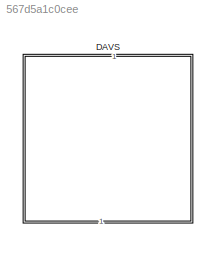
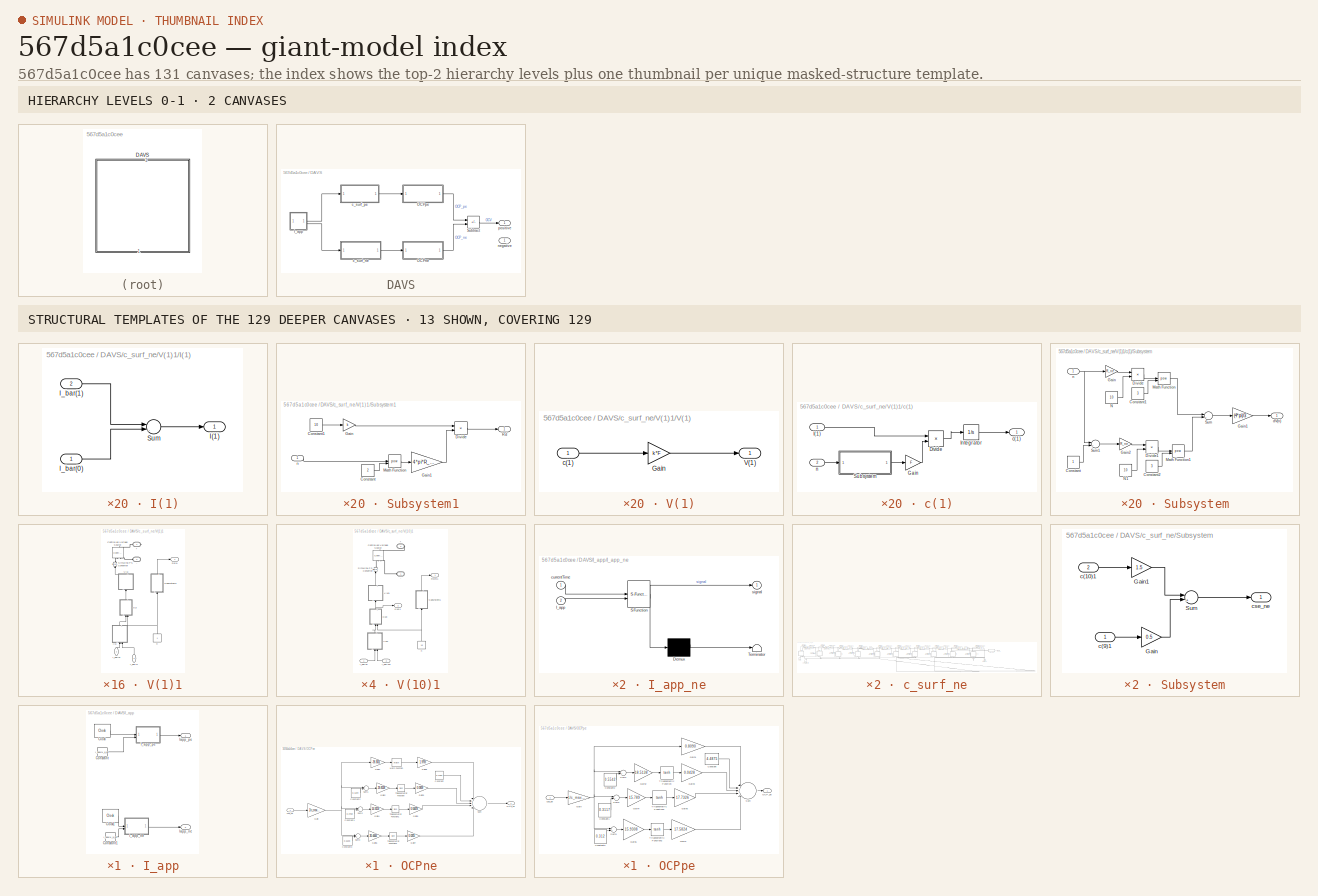
[diagram: thumbnail index - top-2 hierarchy levels (2 canvases) + 13 structural-template representatives of the remaining 129 canvases]
MODEL slx_567d5a1c0cee
KIND library
CONFIG AbsTol = auto
CONFIG EnableMultiTasking = off
CONFIG FixedStep = auto
CONFIG MaxStep = auto
CONFIG MinStep = auto
CONFIG RelTol = 1e-3
CONFIG SampleTimeConstraint = Unconstrained
CONFIG SolverName = VariableStepAuto
CONFIG StartTime = 0.0
CONFIG StopTime = 10.0
BLOCK [SubSystem] DAVS
  NameLocation = right
BLOCK [SubSystem] DAVS/I_app
BLOCK [Clock] DAVS/I_app/Clock
  Decimation = 2
  DisplayTime = on
BLOCK [Clock] DAVS/I_app/Clock1
  Decimation = 2
  DisplayTime = on
BLOCK [Constant] DAVS/I_app/Constant
  Value = I_app/N_a_pe
BLOCK [Constant] DAVS/I_app/Constant1
  Value = I_app/N_a_ne
BLOCK [SubSystem] DAVS/I_app/I_app_ne
  ErrorFcn = Stateflow.Translate.translate
  LibrarySourceBlock = simulink/User-Defined\nFunctions/MATLAB Function
  PermitHierarchicalResolution = ExplicitOnly
  SFBlockType = MATLAB Function
  TreatAsAtomicUnit = on
BLOCK [Demux] DAVS/I_app/I_app_ne/ Demux 
  Outputs = 1
BLOCK [S-Function] DAVS/I_app/I_app_ne/ SFunction 
  EnableBusSupport = on
  FunctionName = sf_sfun
  PortCounts = [2 2]
  SFcnIsStateOwnerBlock = off
  SFunctionDeploymentMode = off
  Tag = Stateflow S-Function 1
BLOCK [Terminator] DAVS/I_app/I_app_ne/ Terminator 
BLOCK [Inport] DAVS/I_app/I_app_ne/I_app
  Port = 2
BLOCK [Inport] DAVS/I_app/I_app_ne/currentTime
BLOCK [Outport] DAVS/I_app/I_app_ne/signal
BLOCK [SubSystem] DAVS/I_app/I_app_pe
  ErrorFcn = Stateflow.Translate.translate
  LibrarySourceBlock = simulink/User-Defined\nFunctions/MATLAB Function
  PermitHierarchicalResolution = ExplicitOnly
  SFBlockType = MATLAB Function
  TreatAsAtomicUnit = on
BLOCK [Demux] DAVS/I_app/I_app_pe/ Demux 
  Outputs = 1
BLOCK [S-Function] DAVS/I_app/I_app_pe/ SFunction 
  EnableBusSupport = on
  FunctionName = sf_sfun
  PortCounts = [2 2]
  SFcnIsStateOwnerBlock = off
  SFunctionDeploymentMode = off
  Tag = Stateflow S-Function 2
BLOCK [Terminator] DAVS/I_app/I_app_pe/ Terminator 
BLOCK [Inport] DAVS/I_app/I_app_pe/I_app
  Port = 2
BLOCK [Inport] DAVS/I_app/I_app_pe/currentTime
BLOCK [Outport] DAVS/I_app/I_app_pe/signal
BLOCK [Outport] DAVS/I_app/Iapp_ne
  Port = 2
BLOCK [Outport] DAVS/I_app/Iapp_pe
BLOCK [SubSystem] DAVS/OCPne
BLOCK [Constant] DAVS/OCPne/Constant
  Value = 0.2482
BLOCK [Constant] DAVS/OCPne/Constant1
  Value = 0.2769
BLOCK [Constant] DAVS/OCPne/Constant2
  Value = 0.1234
BLOCK [Constant] DAVS/OCPne/Constant3
  Value = 0.6103
BLOCK [Gain] DAVS/OCPne/Gain
  Gain = 1/c_max_ne
BLOCK [Gain] DAVS/OCPne/Gain1
  Gain = -39.3631
BLOCK [Gain] DAVS/OCPne/Gain2
  Gain = 29.8538
BLOCK [Gain] DAVS/OCPne/Gain3
  Gain = 0.0909
BLOCK [Gain] DAVS/OCPne/Gain4
  Gain = 14.9159
BLOCK [Gain] DAVS/OCPne/Gain5
  Gain = 0.04478
BLOCK [Gain] DAVS/OCPne/Gain6
  Gain = 30.4444
BLOCK [Gain] DAVS/OCPne/Gain7
  Gain = 0.0205
BLOCK [Gain] DAVS/OCPne/Gain8
  Gain = 1.9793
BLOCK [Math] DAVS/OCPne/Math Function
BLOCK [Outport] DAVS/OCPne/OCP_ne
BLOCK [Sum] DAVS/OCPne/Sum
  Inputs = |++---|
BLOCK [Sum] DAVS/OCPne/Sum1
  Inputs = |+-|
BLOCK [Sum] DAVS/OCPne/Sum2
  Inputs = |+-|
BLOCK [Sum] DAVS/OCPne/Sum3
  Inputs = |+-|
BLOCK [Trigonometry] DAVS/OCPne/Trigonometric Function
  Operator = tanh
BLOCK [Trigonometry] DAVS/OCPne/Trigonometric Function1
  Operator = tanh
BLOCK [Trigonometry] DAVS/OCPne/Trigonometric Function2
  Operator = tanh
BLOCK [Inport] DAVS/OCPne/cse_ne
BLOCK [SubSystem] DAVS/OCPpe
BLOCK [Constant] DAVS/OCPpe/Constant
  Value = 4.4875
BLOCK [Constant] DAVS/OCPpe/Constant1
  Value = 0.3117
BLOCK [Constant] DAVS/OCPpe/Constant2
  Value = 0.5542
BLOCK [Constant] DAVS/OCPpe/Constant3
  Value = 0.312
BLOCK [Gain] DAVS/OCPpe/Gain
  Gain = 1/c_max_pe
BLOCK [Gain] DAVS/OCPpe/Gain1
  Gain = 0.8090
BLOCK [Gain] DAVS/OCPpe/Gain2
  Gain = 18.5138
BLOCK [Gain] DAVS/OCPpe/Gain3
  Gain = 0.0428
BLOCK [Gain] DAVS/OCPpe/Gain4
  Gain = 15.789
BLOCK [Gain] DAVS/OCPpe/Gain5
  Gain = 17.7326
BLOCK [Gain] DAVS/OCPpe/Gain6
  Gain = 15.9308
BLOCK [Gain] DAVS/OCPpe/Gain7
  Gain = 17.5824
BLOCK [Outport] DAVS/OCPpe/OCP_pe
BLOCK [Sum] DAVS/OCPpe/Sum
  Inputs = |-+--+|
BLOCK [Sum] DAVS/OCPpe/Sum1
  Inputs = |+-|
BLOCK [Sum] DAVS/OCPpe/Sum2
  Inputs = |+-|
BLOCK [Sum] DAVS/OCPpe/Sum3
  Inputs = |+-|
BLOCK [Trigonometry] DAVS/OCPpe/Trigonometric Function
  Operator = tanh
BLOCK [Trigonometry] DAVS/OCPpe/Trigonometric Function1
  Operator = tanh
BLOCK [Trigonometry] DAVS/OCPpe/Trigonometric Function2
  Operator = tanh
BLOCK [Inport] DAVS/OCPpe/cse_pe
BLOCK [Sum] DAVS/Subtract
  IconShape = rectangular
  Inputs = +-
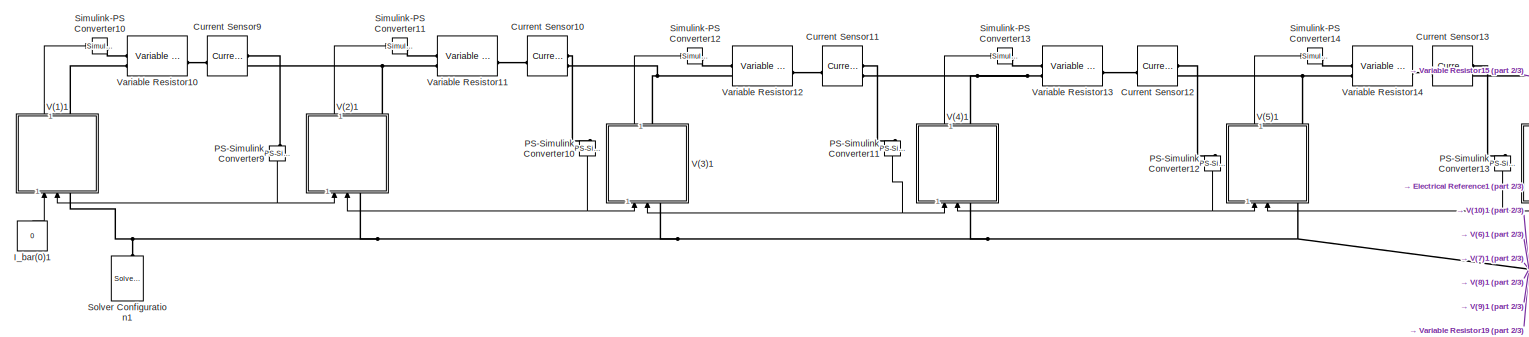
[diagram: DAVS/c_surf_ne - part 1/3, middle left region]
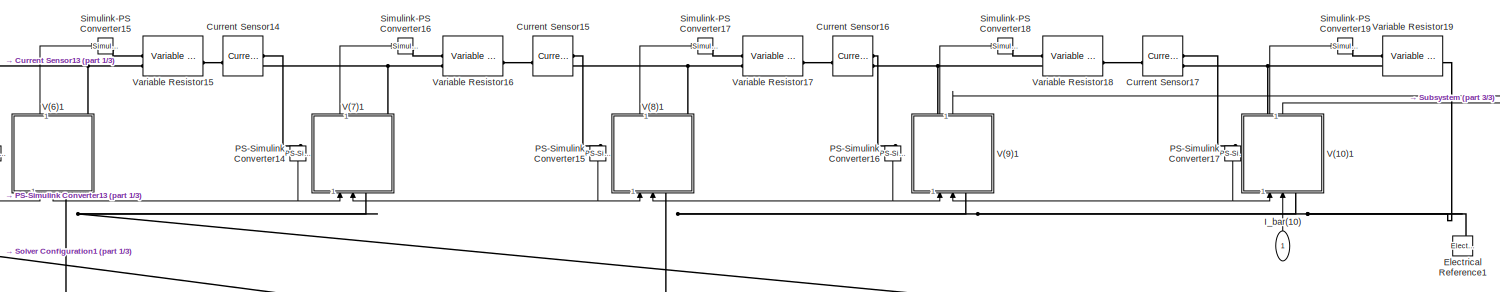
[diagram: DAVS/c_surf_ne - part 2/3, central region]
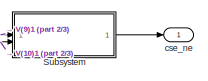
[diagram: DAVS/c_surf_ne - part 3/3, top right region]
BLOCK [SubSystem] DAVS/c_surf_ne
BLOCK [Reference] DAVS/c_surf_ne/Current Sensor10  REF=fl_lib/Electrical/Electrical Sensors/Current Sensor
  SourceBlock = fl_lib/Electrical/Electrical Sensors/Current Sensor
  SourceType = Current Sensor
BLOCK [Reference] DAVS/c_surf_ne/Current Sensor11  REF=fl_lib/Electrical/Electrical Sensors/Current Sensor
  SourceBlock = fl_lib/Electrical/Electrical Sensors/Current Sensor
  SourceType = Current Sensor
BLOCK [Reference] DAVS/c_surf_ne/Current Sensor12  REF=fl_lib/Electrical/Electrical Sensors/Current Sensor
  SourceBlock = fl_lib/Electrical/Electrical Sensors/Current Sensor
  SourceType = Current Sensor
BLOCK [Reference] DAVS/c_surf_ne/Current Sensor13  REF=fl_lib/Electrical/Electrical Sensors/Current Sensor
  SourceBlock = fl_lib/Electrical/Electrical Sensors/Current Sensor
  SourceType = Current Sensor
BLOCK [Reference] DAVS/c_surf_ne/Current Sensor14  REF=fl_lib/Electrical/Electrical Sensors/Current Sensor
  SourceBlock = fl_lib/Electrical/Electrical Sensors/Current Sensor
  SourceType = Current Sensor
BLOCK [Reference] DAVS/c_surf_ne/Current Sensor15  REF=fl_lib/Electrical/Electrical Sensors/Current Sensor
  SourceBlock = fl_lib/Electrical/Electrical Sensors/Current Sensor
  SourceType = Current Sensor
BLOCK [Reference] DAVS/c_surf_ne/Current Sensor16  REF=fl_lib/Electrical/Electrical Sensors/Current Sensor
  SourceBlock = fl_lib/Electrical/Electrical Sensors/Current Sensor
  SourceType = Current Sensor
BLOCK [Reference] DAVS/c_surf_ne/Current Sensor17  REF=fl_lib/Electrical/Electrical Sensors/Current Sensor
  SourceBlock = fl_lib/Electrical/Electrical Sensors/Current Sensor
  SourceType = Current Sensor
BLOCK [Reference] DAVS/c_surf_ne/Current Sensor9  REF=fl_lib/Electrical/Electrical Sensors/Current Sensor
  SourceBlock = fl_lib/Electrical/Electrical Sensors/Current Sensor
  SourceType = Current Sensor
BLOCK [Reference] DAVS/c_surf_ne/Electrical Reference1  REF=fl_lib/Electrical/Electrical Elements/Electrical Reference
  NameLocation = right
  SourceBlock = fl_lib/Electrical/Electrical Elements/Electrical Reference
  SourceType = Electrical Reference
BLOCK [Constant] DAVS/c_surf_ne/I_bar(0)1
  NameLocation = right
  Value = 0
BLOCK [Inport] DAVS/c_surf_ne/I_bar(10)
  NameLocation = right
BLOCK [Reference] DAVS/c_surf_ne/PS-Simulink Converter10  REF=nesl_utility/PS-Simulink
Converter
  NameLocation = left
  SourceBlock = nesl_utility/PS-Simulink\nConverter
  SourceType = PS-Simulink\nConverter
BLOCK [Reference] DAVS/c_surf_ne/PS-Simulink Converter11  REF=nesl_utility/PS-Simulink
Converter
  NameLocation = left
  SourceBlock = nesl_utility/PS-Simulink\nConverter
  SourceType = PS-Simulink\nConverter
BLOCK [Reference] DAVS/c_surf_ne/PS-Simulink Converter12  REF=nesl_utility/PS-Simulink
Converter
  NameLocation = left
  SourceBlock = nesl_utility/PS-Simulink\nConverter
  SourceType = PS-Simulink\nConverter
BLOCK [Reference] DAVS/c_surf_ne/PS-Simulink Converter13  REF=nesl_utility/PS-Simulink
Converter
  NameLocation = left
  SourceBlock = nesl_utility/PS-Simulink\nConverter
  SourceType = PS-Simulink\nConverter
BLOCK [Reference] DAVS/c_surf_ne/PS-Simulink Converter14  REF=nesl_utility/PS-Simulink
Converter
  NameLocation = left
  SourceBlock = nesl_utility/PS-Simulink\nConverter
  SourceType = PS-Simulink\nConverter
BLOCK [Reference] DAVS/c_surf_ne/PS-Simulink Converter15  REF=nesl_utility/PS-Simulink
Converter
  NameLocation = left
  SourceBlock = nesl_utility/PS-Simulink\nConverter
  SourceType = PS-Simulink\nConverter
BLOCK [Reference] DAVS/c_surf_ne/PS-Simulink Converter16  REF=nesl_utility/PS-Simulink
Converter
  NameLocation = left
  SourceBlock = nesl_utility/PS-Simulink\nConverter
  SourceType = PS-Simulink\nConverter
BLOCK [Reference] DAVS/c_surf_ne/PS-Simulink Converter17  REF=nesl_utility/PS-Simulink
Converter
  NameLocation = left
  SourceBlock = nesl_utility/PS-Simulink\nConverter
  SourceType = PS-Simulink\nConverter
BLOCK [Reference] DAVS/c_surf_ne/PS-Simulink Converter9  REF=nesl_utility/PS-Simulink
Converter
  NameLocation = left
  SourceBlock = nesl_utility/PS-Simulink\nConverter
  SourceType = PS-Simulink\nConverter
BLOCK [Reference] DAVS/c_surf_ne/Simulink-PS Converter10  REF=nesl_utility/Simulink-PS
Converter
  SourceBlock = nesl_utility/Simulink-PS\nConverter
  SourceType = Simulink-PS\nConverter
BLOCK [Reference] DAVS/c_surf_ne/Simulink-PS Converter11  REF=nesl_utility/Simulink-PS
Converter
  SourceBlock = nesl_utility/Simulink-PS\nConverter
  SourceType = Simulink-PS\nConverter
BLOCK [Reference] DAVS/c_surf_ne/Simulink-PS Converter12  REF=nesl_utility/Simulink-PS
Converter
  SourceBlock = nesl_utility/Simulink-PS\nConverter
  SourceType = Simulink-PS\nConverter
BLOCK [Reference] DAVS/c_surf_ne/Simulink-PS Converter13  REF=nesl_utility/Simulink-PS
Converter
  SourceBlock = nesl_utility/Simulink-PS\nConverter
  SourceType = Simulink-PS\nConverter
BLOCK [Reference] DAVS/c_surf_ne/Simulink-PS Converter14  REF=nesl_utility/Simulink-PS
Converter
  SourceBlock = nesl_utility/Simulink-PS\nConverter
  SourceType = Simulink-PS\nConverter
BLOCK [Reference] DAVS/c_surf_ne/Simulink-PS Converter15  REF=nesl_utility/Simulink-PS
Converter
  SourceBlock = nesl_utility/Simulink-PS\nConverter
  SourceType = Simulink-PS\nConverter
BLOCK [Reference] DAVS/c_surf_ne/Simulink-PS Converter16  REF=nesl_utility/Simulink-PS
Converter
  SourceBlock = nesl_utility/Simulink-PS\nConverter
  SourceType = Simulink-PS\nConverter
BLOCK [Reference] DAVS/c_surf_ne/Simulink-PS Converter17  REF=nesl_utility/Simulink-PS
Converter
  SourceBlock = nesl_utility/Simulink-PS\nConverter
  SourceType = Simulink-PS\nConverter
BLOCK [Reference] DAVS/c_surf_ne/Simulink-PS Converter18  REF=nesl_utility/Simulink-PS
Converter
  SourceBlock = nesl_utility/Simulink-PS\nConverter
  SourceType = Simulink-PS\nConverter
BLOCK [Reference] DAVS/c_surf_ne/Simulink-PS Converter19  REF=nesl_utility/Simulink-PS
Converter
  SourceBlock = nesl_utility/Simulink-PS\nConverter
  SourceType = Simulink-PS\nConverter
BLOCK [Reference] DAVS/c_surf_ne/Solver Configuration1  REF=nesl_utility/Solver
Configuration
  NameLocation = right
  SourceBlock = nesl_utility/Solver\nConfiguration
  SourceType = Solver\nConfiguration
BLOCK [SubSystem] DAVS/c_surf_ne/Subsystem
BLOCK [Gain] DAVS/c_surf_ne/Subsystem/Gain
  Gain = 0.5
BLOCK [Gain] DAVS/c_surf_ne/Subsystem/Gain1
  Gain = 1.5
BLOCK [Sum] DAVS/c_surf_ne/Subsystem/Sum
  Inputs = |+-|
BLOCK [Inport] DAVS/c_surf_ne/Subsystem/c(10)1
  Port = 2
BLOCK [Inport] DAVS/c_surf_ne/Subsystem/c(9)1
BLOCK [Outport] DAVS/c_surf_ne/Subsystem/cse_ne
BLOCK [SubSystem] DAVS/c_surf_ne/V(1)1
  NameLocation = right
BLOCK [PMIOPort] DAVS/c_surf_ne/V(1)1/+
  Side = Right
  Tag = PMCPort
BLOCK [PMIOPort] DAVS/c_surf_ne/V(1)1/-
  Port = 2
  Side = Left
  Tag = PMCPort
BLOCK [Reference] DAVS/c_surf_ne/V(1)1/Controlled Voltage Source  REF=fl_lib/Electrical/Electrical Sources/Controlled Voltage
Source
  NameLocation = right
  SourceBlock = fl_lib/Electrical/Electrical Sources/Controlled Voltage\nSource
  SourceType = Controlled Voltage\nSource
BLOCK [SubSystem] DAVS/c_surf_ne/V(1)1/I(1)
  NameLocation = right
BLOCK [Outport] DAVS/c_surf_ne/V(1)1/I(1)/I(1)
BLOCK [Inport] DAVS/c_surf_ne/V(1)1/I(1)/I_bar(0)
BLOCK [Inport] DAVS/c_surf_ne/V(1)1/I(1)/I_bar(1)
  Port = 2
BLOCK [Sum] DAVS/c_surf_ne/V(1)1/I(1)/Sum
  Inputs = |-+|
BLOCK [Inport] DAVS/c_surf_ne/V(1)1/I_bar(0)
  NameLocation = right
BLOCK [Inport] DAVS/c_surf_ne/V(1)1/I_bar(1)
  NameLocation = right
  Port = 2
BLOCK [Outport] DAVS/c_surf_ne/V(1)1/Rd(1)
BLOCK [Reference] DAVS/c_surf_ne/V(1)1/Simulink-PS Converter  REF=nesl_utility/Simulink-PS
Converter
  NameLocation = right
  SourceBlock = nesl_utility/Simulink-PS\nConverter
  SourceType = Simulink-PS\nConverter
BLOCK [SubSystem] DAVS/c_surf_ne/V(1)1/Subsystem1
  NameLocation = right
BLOCK [Constant] DAVS/c_surf_ne/V(1)1/Subsystem1/Constant
  Value = 2
BLOCK [Constant] DAVS/c_surf_ne/V(1)1/Subsystem1/Constant1
  Value = 10
BLOCK [Product] DAVS/c_surf_ne/V(1)1/Subsystem1/Divide
  Inputs = */
BLOCK [Gain] DAVS/c_surf_ne/V(1)1/Subsystem1/Gain
  Gain = k
BLOCK [Gain] DAVS/c_surf_ne/V(1)1/Subsystem1/Gain1
  Gain = 4*pi*R_ne*D_ne
BLOCK [Math] DAVS/c_surf_ne/V(1)1/Subsystem1/Math Function
  Operator = pow
BLOCK [Outport] DAVS/c_surf_ne/V(1)1/Subsystem1/Rd
BLOCK [Inport] DAVS/c_surf_ne/V(1)1/Subsystem1/n
BLOCK [SubSystem] DAVS/c_surf_ne/V(1)1/V(1)
  NameLocation = right
BLOCK [Gain] DAVS/c_surf_ne/V(1)1/V(1)/Gain
  Gain = k*F
BLOCK [Outport] DAVS/c_surf_ne/V(1)1/V(1)/V(1)
BLOCK [Inport] DAVS/c_surf_ne/V(1)1/V(1)/c(1)
BLOCK [SubSystem] DAVS/c_surf_ne/V(1)1/c(1)
  NameLocation = right
BLOCK [Product] DAVS/c_surf_ne/V(1)1/c(1)/Divide
  Inputs = */
BLOCK [Gain] DAVS/c_surf_ne/V(1)1/c(1)/Gain
  Gain = F
BLOCK [Inport] DAVS/c_surf_ne/V(1)1/c(1)/I(1)
BLOCK [Integrator] DAVS/c_surf_ne/V(1)1/c(1)/Integrator
  InitialCondition = c0_ne
BLOCK [SubSystem] DAVS/c_surf_ne/V(1)1/c(1)/Subsystem
BLOCK [Constant] DAVS/c_surf_ne/V(1)1/c(1)/Subsystem/Constant
BLOCK [Constant] DAVS/c_surf_ne/V(1)1/c(1)/Subsystem/Constant1
  Value = 3
BLOCK [Constant] DAVS/c_surf_ne/V(1)1/c(1)/Subsystem/Constant2
  Value = 3
BLOCK [Product] DAVS/c_surf_ne/V(1)1/c(1)/Subsystem/Divide
  Inputs = */
BLOCK [Product] DAVS/c_surf_ne/V(1)1/c(1)/Subsystem/Divide1
  Inputs = */
BLOCK [Gain] DAVS/c_surf_ne/V(1)1/c(1)/Subsystem/Gain
  Gain = R_ne
BLOCK [Gain] DAVS/c_surf_ne/V(1)1/c(1)/Subsystem/Gain1
  Gain = (4*pi)/3
BLOCK [Gain] DAVS/c_surf_ne/V(1)1/c(1)/Subsystem/Gain2
  Gain = R_ne
BLOCK [Math] DAVS/c_surf_ne/V(1)1/c(1)/Subsystem/Math Function
  Operator = pow
BLOCK [Math] DAVS/c_surf_ne/V(1)1/c(1)/Subsystem/Math Function1
  Operator = pow
BLOCK [Constant] DAVS/c_surf_ne/V(1)1/c(1)/Subsystem/N
  Value = 10
BLOCK [Constant] DAVS/c_surf_ne/V(1)1/c(1)/Subsystem/N1
  Value = 10
BLOCK [Sum] DAVS/c_surf_ne/V(1)1/c(1)/Subsystem/Sum
  Inputs = |+-|
BLOCK [Sum] DAVS/c_surf_ne/V(1)1/c(1)/Subsystem/Sum1
  Inputs = |+-|
BLOCK [Outport] DAVS/c_surf_ne/V(1)1/c(1)/Subsystem/dV(n)
BLOCK [Inport] DAVS/c_surf_ne/V(1)1/c(1)/Subsystem/n
BLOCK [Outport] DAVS/c_surf_ne/V(1)1/c(1)/c(1)
BLOCK [Inport] DAVS/c_surf_ne/V(1)1/c(1)/n
  Port = 2
BLOCK [Constant] DAVS/c_surf_ne/V(1)1/n
  NameLocation = right
BLOCK [SubSystem] DAVS/c_surf_ne/V(10)1
  NameLocation = right
  PortSchema = {"entries":[{"content":{"sides":[{"content":{"connectorIds":["In1","In2","LConn1"]},"type":"ConnectorPlacement.EquallySpacedRectSide","uuid":"326f821b-4aa4-48b5-a56d-533981abc63c"},{"content":{"connectorIds":["Out1","RConn1","Out2"],"side":"RIGHT"},"type":"ConnectorPlacement.EquallySpacedRectSide","uuid":"b0236978-0a5d-48ca-88e9-ee638761e80f"},{"content":{"connectorIds":[],"side":"TOP"},"type":"Co...<+271ch>  <repeated x4 — deduplicated; at blocks: V(10)1, V(9)1, V(10), V(9)>
BLOCK [PMIOPort] DAVS/c_surf_ne/V(10)1/+
  Port = 2
  Side = Right
  Tag = PMCPort
BLOCK [PMIOPort] DAVS/c_surf_ne/V(10)1/-
  Side = Left
  Tag = PMCPort
BLOCK [Reference] DAVS/c_surf_ne/V(10)1/Controlled Voltage Source  REF=fl_lib/Electrical/Electrical Sources/Controlled Voltage
Source
  NameLocation = right
  SourceBlock = fl_lib/Electrical/Electrical Sources/Controlled Voltage\nSource
  SourceType = Controlled Voltage\nSource
BLOCK [SubSystem] DAVS/c_surf_ne/V(10)1/I(10)
  NameLocation = right
BLOCK [Outport] DAVS/c_surf_ne/V(10)1/I(10)/I(10)
BLOCK [Inport] DAVS/c_surf_ne/V(10)1/I(10)/I_bar(10)
  Port = 2
BLOCK [Inport] DAVS/c_surf_ne/V(10)1/I(10)/I_bar(9)
BLOCK [Sum] DAVS/c_surf_ne/V(10)1/I(10)/Sum
  Inputs = |-+|
BLOCK [Inport] DAVS/c_surf_ne/V(10)1/I_bar(10)
  NameLocation = top
  Port = 2
BLOCK [Inport] DAVS/c_surf_ne/V(10)1/I_bar(9)
BLOCK [Outport] DAVS/c_surf_ne/V(10)1/Rd(9)1
BLOCK [Reference] DAVS/c_surf_ne/V(10)1/Simulink-PS Converter  REF=nesl_utility/Simulink-PS
Converter
  NameLocation = right
  SourceBlock = nesl_utility/Simulink-PS\nConverter
  SourceType = Simulink-PS\nConverter
BLOCK [SubSystem] DAVS/c_surf_ne/V(10)1/Subsystem1
  NameLocation = right
BLOCK [Constant] DAVS/c_surf_ne/V(10)1/Subsystem1/Constant
  Value = 2
BLOCK [Constant] DAVS/c_surf_ne/V(10)1/Subsystem1/Constant1
  Value = 10
BLOCK [Product] DAVS/c_surf_ne/V(10)1/Subsystem1/Divide
  Inputs = */
BLOCK [Gain] DAVS/c_surf_ne/V(10)1/Subsystem1/Gain
  Gain = k
BLOCK [Gain] DAVS/c_surf_ne/V(10)1/Subsystem1/Gain1
  Gain = 4*pi*R_ne*D_ne
BLOCK [Math] DAVS/c_surf_ne/V(10)1/Subsystem1/Math Function
  Operator = pow
BLOCK [Outport] DAVS/c_surf_ne/V(10)1/Subsystem1/Rd
BLOCK [Inport] DAVS/c_surf_ne/V(10)1/Subsystem1/n
BLOCK [SubSystem] DAVS/c_surf_ne/V(10)1/V(10)
  NameLocation = right
BLOCK [Gain] DAVS/c_surf_ne/V(10)1/V(10)/Gain
  Gain = k*F
BLOCK [Outport] DAVS/c_surf_ne/V(10)1/V(10)/V(10)
BLOCK [Inport] DAVS/c_surf_ne/V(10)1/V(10)/c(10)
BLOCK [SubSystem] DAVS/c_surf_ne/V(10)1/c(10)
  NameLocation = right
BLOCK [Product] DAVS/c_surf_ne/V(10)1/c(10)/Divide
  Inputs = */
BLOCK [Gain] DAVS/c_surf_ne/V(10)1/c(10)/Gain
  Gain = F
BLOCK [Inport] DAVS/c_surf_ne/V(10)1/c(10)/I(10)
BLOCK [Integrator] DAVS/c_surf_ne/V(10)1/c(10)/Integrator
  InitialCondition = c0_ne
BLOCK [SubSystem] DAVS/c_surf_ne/V(10)1/c(10)/Subsystem
BLOCK [Constant] DAVS/c_surf_ne/V(10)1/c(10)/Subsystem/Constant
BLOCK [Constant] DAVS/c_surf_ne/V(10)1/c(10)/Subsystem/Constant2
  Value = 3
BLOCK [Constant] DAVS/c_surf_ne/V(10)1/c(10)/Subsystem/Constant3
  Value = 3
BLOCK [Product] DAVS/c_surf_ne/V(10)1/c(10)/Subsystem/Divide1
  Inputs = */
BLOCK [Product] DAVS/c_surf_ne/V(10)1/c(10)/Subsystem/Divide2
  Inputs = */
BLOCK [Gain] DAVS/c_surf_ne/V(10)1/c(10)/Subsystem/Gain2
  Gain = R_ne
BLOCK [Gain] DAVS/c_surf_ne/V(10)1/c(10)/Subsystem/Gain3
  Gain = (4*pi)/3
BLOCK [Gain] DAVS/c_surf_ne/V(10)1/c(10)/Subsystem/Gain4
  Gain = R_ne
BLOCK [Math] DAVS/c_surf_ne/V(10)1/c(10)/Subsystem/Math Function1
  Operator = pow
BLOCK [Math] DAVS/c_surf_ne/V(10)1/c(10)/Subsystem/Math Function2
  Operator = pow
BLOCK [Constant] DAVS/c_surf_ne/V(10)1/c(10)/Subsystem/N1
  Value = 10
BLOCK [Constant] DAVS/c_surf_ne/V(10)1/c(10)/Subsystem/N2
  Value = 10
BLOCK [Sum] DAVS/c_surf_ne/V(10)1/c(10)/Subsystem/Sum
  Inputs = |+-|
BLOCK [Sum] DAVS/c_surf_ne/V(10)1/c(10)/Subsystem/Sum1
  Inputs = |+-|
BLOCK [Outport] DAVS/c_surf_ne/V(10)1/c(10)/Subsystem/dV(n)1
BLOCK [Inport] DAVS/c_surf_ne/V(10)1/c(10)/Subsystem/n1
BLOCK [Outport] DAVS/c_surf_ne/V(10)1/c(10)/c(10)
BLOCK [Inport] DAVS/c_surf_ne/V(10)1/c(10)/n
  Port = 2
BLOCK [Outport] DAVS/c_surf_ne/V(10)1/c(10)1
  Port = 2
BLOCK [Constant] DAVS/c_surf_ne/V(10)1/n
  NameLocation = right
  Value = 10
BLOCK [SubSystem] DAVS/c_surf_ne/V(2)1
  NameLocation = right
BLOCK [PMIOPort] DAVS/c_surf_ne/V(2)1/+
  Side = Right
  Tag = PMCPort
BLOCK [PMIOPort] DAVS/c_surf_ne/V(2)1/-
  Port = 2
  Side = Left
  Tag = PMCPort
BLOCK [Reference] DAVS/c_surf_ne/V(2)1/Controlled Voltage Source  REF=fl_lib/Electrical/Electrical Sources/Controlled Voltage
Source
  NameLocation = right
  SourceBlock = fl_lib/Electrical/Electrical Sources/Controlled Voltage\nSource
  SourceType = Controlled Voltage\nSource
BLOCK [SubSystem] DAVS/c_surf_ne/V(2)1/I(2)
  NameLocation = right
BLOCK [Outport] DAVS/c_surf_ne/V(2)1/I(2)/I(2)
BLOCK [Inport] DAVS/c_surf_ne/V(2)1/I(2)/I_bar(1)
BLOCK [Inport] DAVS/c_surf_ne/V(2)1/I(2)/I_bar(2)
  Port = 2
BLOCK [Sum] DAVS/c_surf_ne/V(2)1/I(2)/Sum
  Inputs = |-+|
BLOCK [Inport] DAVS/c_surf_ne/V(2)1/I_bar(1)
BLOCK [Inport] DAVS/c_surf_ne/V(2)1/I_bar(2)
  NameLocation = right
  Port = 2
BLOCK [Outport] DAVS/c_surf_ne/V(2)1/Rd(2)
BLOCK [Reference] DAVS/c_surf_ne/V(2)1/Simulink-PS Converter  REF=nesl_utility/Simulink-PS
Converter
  NameLocation = right
  SourceBlock = nesl_utility/Simulink-PS\nConverter
  SourceType = Simulink-PS\nConverter
BLOCK [SubSystem] DAVS/c_surf_ne/V(2)1/Subsystem1
  NameLocation = right
BLOCK [Constant] DAVS/c_surf_ne/V(2)1/Subsystem1/Constant
  Value = 2
BLOCK [Constant] DAVS/c_surf_ne/V(2)1/Subsystem1/Constant1
  Value = 10
BLOCK [Product] DAVS/c_surf_ne/V(2)1/Subsystem1/Divide
  Inputs = */
BLOCK [Gain] DAVS/c_surf_ne/V(2)1/Subsystem1/Gain
  Gain = k
BLOCK [Gain] DAVS/c_surf_ne/V(2)1/Subsystem1/Gain1
  Gain = 4*pi*R_ne*D_ne
BLOCK [Math] DAVS/c_surf_ne/V(2)1/Subsystem1/Math Function
  Operator = pow
BLOCK [Outport] DAVS/c_surf_ne/V(2)1/Subsystem1/Rd
BLOCK [Inport] DAVS/c_surf_ne/V(2)1/Subsystem1/n
BLOCK [SubSystem] DAVS/c_surf_ne/V(2)1/V(2)
  NameLocation = right
BLOCK [Gain] DAVS/c_surf_ne/V(2)1/V(2)/Gain
  Gain = k*F
BLOCK [Outport] DAVS/c_surf_ne/V(2)1/V(2)/V(2)
BLOCK [Inport] DAVS/c_surf_ne/V(2)1/V(2)/c(2)
BLOCK [SubSystem] DAVS/c_surf_ne/V(2)1/c(2)
  NameLocation = right
BLOCK [Product] DAVS/c_surf_ne/V(2)1/c(2)/Divide
  Inputs = */
BLOCK [Gain] DAVS/c_surf_ne/V(2)1/c(2)/Gain
  Gain = F
BLOCK [Inport] DAVS/c_surf_ne/V(2)1/c(2)/I(2)
BLOCK [Integrator] DAVS/c_surf_ne/V(2)1/c(2)/Integrator
  InitialCondition = c0_ne
BLOCK [SubSystem] DAVS/c_surf_ne/V(2)1/c(2)/Subsystem
BLOCK [Constant] DAVS/c_surf_ne/V(2)1/c(2)/Subsystem/Constant
BLOCK [Constant] DAVS/c_surf_ne/V(2)1/c(2)/Subsystem/Constant2
  Value = 3
BLOCK [Constant] DAVS/c_surf_ne/V(2)1/c(2)/Subsystem/Constant3
  Value = 3
BLOCK [Product] DAVS/c_surf_ne/V(2)1/c(2)/Subsystem/Divide1
  Inputs = */
BLOCK [Product] DAVS/c_surf_ne/V(2)1/c(2)/Subsystem/Divide2
  Inputs = */
BLOCK [Gain] DAVS/c_surf_ne/V(2)1/c(2)/Subsystem/Gain2
  Gain = R_ne
BLOCK [Gain] DAVS/c_surf_ne/V(2)1/c(2)/Subsystem/Gain3
  Gain = (4*pi)/3
BLOCK [Gain] DAVS/c_surf_ne/V(2)1/c(2)/Subsystem/Gain4
  Gain = R_ne
BLOCK [Math] DAVS/c_surf_ne/V(2)1/c(2)/Subsystem/Math Function1
  Operator = pow
BLOCK [Math] DAVS/c_surf_ne/V(2)1/c(2)/Subsystem/Math Function2
  Operator = pow
BLOCK [Constant] DAVS/c_surf_ne/V(2)1/c(2)/Subsystem/N1
  Value = 10
BLOCK [Constant] DAVS/c_surf_ne/V(2)1/c(2)/Subsystem/N2
  Value = 10
BLOCK [Sum] DAVS/c_surf_ne/V(2)1/c(2)/Subsystem/Sum
  Inputs = |+-|
BLOCK [Sum] DAVS/c_surf_ne/V(2)1/c(2)/Subsystem/Sum1
  Inputs = |+-|
BLOCK [Outport] DAVS/c_surf_ne/V(2)1/c(2)/Subsystem/dV(n)1
BLOCK [Inport] DAVS/c_surf_ne/V(2)1/c(2)/Subsystem/n1
BLOCK [Outport] DAVS/c_surf_ne/V(2)1/c(2)/c(2)
BLOCK [Inport] DAVS/c_surf_ne/V(2)1/c(2)/n
  Port = 2
BLOCK [Constant] DAVS/c_surf_ne/V(2)1/n
  NameLocation = right
  Value = 2
BLOCK [SubSystem] DAVS/c_surf_ne/V(3)1
  NameLocation = right
BLOCK [PMIOPort] DAVS/c_surf_ne/V(3)1/+
  Side = Right
  Tag = PMCPort
BLOCK [PMIOPort] DAVS/c_surf_ne/V(3)1/-
  Port = 2
  Side = Left
  Tag = PMCPort
BLOCK [Reference] DAVS/c_surf_ne/V(3)1/Controlled Voltage Source  REF=fl_lib/Electrical/Electrical Sources/Controlled Voltage
Source
  NameLocation = right
  SourceBlock = fl_lib/Electrical/Electrical Sources/Controlled Voltage\nSource
  SourceType = Controlled Voltage\nSource
BLOCK [SubSystem] DAVS/c_surf_ne/V(3)1/I(3)
  NameLocation = right
BLOCK [Outport] DAVS/c_surf_ne/V(3)1/I(3)/I(3)
BLOCK [Inport] DAVS/c_surf_ne/V(3)1/I(3)/I_bar(2)
BLOCK [Inport] DAVS/c_surf_ne/V(3)1/I(3)/I_bar(3)
  Port = 2
BLOCK [Sum] DAVS/c_surf_ne/V(3)1/I(3)/Sum
  Inputs = |-+|
BLOCK [Inport] DAVS/c_surf_ne/V(3)1/I_bar(2)
BLOCK [Inport] DAVS/c_surf_ne/V(3)1/I_bar(3)
  NameLocation = right
  Port = 2
BLOCK [Outport] DAVS/c_surf_ne/V(3)1/Rd(3)1
BLOCK [Reference] DAVS/c_surf_ne/V(3)1/Simulink-PS Converter  REF=nesl_utility/Simulink-PS
Converter
  NameLocation = right
  SourceBlock = nesl_utility/Simulink-PS\nConverter
  SourceType = Simulink-PS\nConverter
BLOCK [SubSystem] DAVS/c_surf_ne/V(3)1/Subsystem1
  NameLocation = right
BLOCK [Constant] DAVS/c_surf_ne/V(3)1/Subsystem1/Constant
  Value = 2
BLOCK [Constant] DAVS/c_surf_ne/V(3)1/Subsystem1/Constant1
  Value = 10
BLOCK [Product] DAVS/c_surf_ne/V(3)1/Subsystem1/Divide
  Inputs = */
BLOCK [Gain] DAVS/c_surf_ne/V(3)1/Subsystem1/Gain
  Gain = k
BLOCK [Gain] DAVS/c_surf_ne/V(3)1/Subsystem1/Gain1
  Gain = 4*pi*R_ne*D_ne
BLOCK [Math] DAVS/c_surf_ne/V(3)1/Subsystem1/Math Function
  Operator = pow
BLOCK [Outport] DAVS/c_surf_ne/V(3)1/Subsystem1/Rd
BLOCK [Inport] DAVS/c_surf_ne/V(3)1/Subsystem1/n
BLOCK [SubSystem] DAVS/c_surf_ne/V(3)1/V(3)
  NameLocation = right
BLOCK [Gain] DAVS/c_surf_ne/V(3)1/V(3)/Gain
  Gain = k*F
BLOCK [Outport] DAVS/c_surf_ne/V(3)1/V(3)/V(3)
BLOCK [Inport] DAVS/c_surf_ne/V(3)1/V(3)/c(3)
BLOCK [SubSystem] DAVS/c_surf_ne/V(3)1/c(3)
  NameLocation = right
BLOCK [Product] DAVS/c_surf_ne/V(3)1/c(3)/Divide
  Inputs = */
BLOCK [Gain] DAVS/c_surf_ne/V(3)1/c(3)/Gain
  Gain = F
BLOCK [Inport] DAVS/c_surf_ne/V(3)1/c(3)/I(3)
BLOCK [Integrator] DAVS/c_surf_ne/V(3)1/c(3)/Integrator
  InitialCondition = c0_ne
BLOCK [SubSystem] DAVS/c_surf_ne/V(3)1/c(3)/Subsystem1
BLOCK [Constant] DAVS/c_surf_ne/V(3)1/c(3)/Subsystem1/Constant
BLOCK [Constant] DAVS/c_surf_ne/V(3)1/c(3)/Subsystem1/Constant2
  Value = 3
BLOCK [Constant] DAVS/c_surf_ne/V(3)1/c(3)/Subsystem1/Constant3
  Value = 3
BLOCK [Product] DAVS/c_surf_ne/V(3)1/c(3)/Subsystem1/Divide1
  Inputs = */
BLOCK [Product] DAVS/c_surf_ne/V(3)1/c(3)/Subsystem1/Divide2
  Inputs = */
BLOCK [Gain] DAVS/c_surf_ne/V(3)1/c(3)/Subsystem1/Gain2
  Gain = R_ne
BLOCK [Gain] DAVS/c_surf_ne/V(3)1/c(3)/Subsystem1/Gain3
  Gain = (4*pi)/3
BLOCK [Gain] DAVS/c_surf_ne/V(3)1/c(3)/Subsystem1/Gain4
  Gain = R_ne
BLOCK [Math] DAVS/c_surf_ne/V(3)1/c(3)/Subsystem1/Math Function1
  Operator = pow
BLOCK [Math] DAVS/c_surf_ne/V(3)1/c(3)/Subsystem1/Math Function2
  Operator = pow
BLOCK [Constant] DAVS/c_surf_ne/V(3)1/c(3)/Subsystem1/N1
  Value = 10
BLOCK [Constant] DAVS/c_surf_ne/V(3)1/c(3)/Subsystem1/N2
  Value = 10
BLOCK [Sum] DAVS/c_surf_ne/V(3)1/c(3)/Subsystem1/Sum
  Inputs = |+-|
BLOCK [Sum] DAVS/c_surf_ne/V(3)1/c(3)/Subsystem1/Sum1
  Inputs = |+-|
BLOCK [Outport] DAVS/c_surf_ne/V(3)1/c(3)/Subsystem1/dV(n)1
BLOCK [Inport] DAVS/c_surf_ne/V(3)1/c(3)/Subsystem1/n1
BLOCK [Outport] DAVS/c_surf_ne/V(3)1/c(3)/c(3)
BLOCK [Inport] DAVS/c_surf_ne/V(3)1/c(3)/n
  Port = 2
BLOCK [Constant] DAVS/c_surf_ne/V(3)1/n
  NameLocation = right
  Value = 3
BLOCK [SubSystem] DAVS/c_surf_ne/V(4)1
  NameLocation = right
BLOCK [PMIOPort] DAVS/c_surf_ne/V(4)1/+
  Side = Right
  Tag = PMCPort
BLOCK [PMIOPort] DAVS/c_surf_ne/V(4)1/-
  Port = 2
  Side = Left
  Tag = PMCPort
BLOCK [Reference] DAVS/c_surf_ne/V(4)1/Controlled Voltage Source  REF=fl_lib/Electrical/Electrical Sources/Controlled Voltage
Source
  NameLocation = right
  SourceBlock = fl_lib/Electrical/Electrical Sources/Controlled Voltage\nSource
  SourceType = Controlled Voltage\nSource
BLOCK [SubSystem] DAVS/c_surf_ne/V(4)1/I(4)
  NameLocation = right
BLOCK [Outport] DAVS/c_surf_ne/V(4)1/I(4)/I(4)
BLOCK [Inport] DAVS/c_surf_ne/V(4)1/I(4)/I_bar(3)
BLOCK [Inport] DAVS/c_surf_ne/V(4)1/I(4)/I_bar(4)
  Port = 2
BLOCK [Sum] DAVS/c_surf_ne/V(4)1/I(4)/Sum
  Inputs = |-+|
BLOCK [Inport] DAVS/c_surf_ne/V(4)1/I_bar(3)
BLOCK [Inport] DAVS/c_surf_ne/V(4)1/I_bar(4)
  NameLocation = right
  Port = 2
BLOCK [Outport] DAVS/c_surf_ne/V(4)1/Rd(4)1
BLOCK [Reference] DAVS/c_surf_ne/V(4)1/Simulink-PS Converter  REF=nesl_utility/Simulink-PS
Converter
  NameLocation = right
  SourceBlock = nesl_utility/Simulink-PS\nConverter
  SourceType = Simulink-PS\nConverter
BLOCK [SubSystem] DAVS/c_surf_ne/V(4)1/Subsystem1
  NameLocation = right
BLOCK [Constant] DAVS/c_surf_ne/V(4)1/Subsystem1/Constant
  Value = 2
BLOCK [Constant] DAVS/c_surf_ne/V(4)1/Subsystem1/Constant1
  Value = 10
BLOCK [Product] DAVS/c_surf_ne/V(4)1/Subsystem1/Divide
  Inputs = */
BLOCK [Gain] DAVS/c_surf_ne/V(4)1/Subsystem1/Gain
  Gain = k
BLOCK [Gain] DAVS/c_surf_ne/V(4)1/Subsystem1/Gain1
  Gain = 4*pi*R_ne*D_ne
BLOCK [Math] DAVS/c_surf_ne/V(4)1/Subsystem1/Math Function
  Operator = pow
BLOCK [Outport] DAVS/c_surf_ne/V(4)1/Subsystem1/Rd
BLOCK [Inport] DAVS/c_surf_ne/V(4)1/Subsystem1/n
BLOCK [SubSystem] DAVS/c_surf_ne/V(4)1/V(4)
  NameLocation = right
BLOCK [Gain] DAVS/c_surf_ne/V(4)1/V(4)/Gain
  Gain = k*F
BLOCK [Outport] DAVS/c_surf_ne/V(4)1/V(4)/V(4)
BLOCK [Inport] DAVS/c_surf_ne/V(4)1/V(4)/c(4)
BLOCK [SubSystem] DAVS/c_surf_ne/V(4)1/c(4)
  NameLocation = right
BLOCK [Product] DAVS/c_surf_ne/V(4)1/c(4)/Divide
  Inputs = */
BLOCK [Gain] DAVS/c_surf_ne/V(4)1/c(4)/Gain
  Gain = F
BLOCK [Inport] DAVS/c_surf_ne/V(4)1/c(4)/I(4)
BLOCK [Integrator] DAVS/c_surf_ne/V(4)1/c(4)/Integrator
  InitialCondition = c0_ne
BLOCK [SubSystem] DAVS/c_surf_ne/V(4)1/c(4)/Subsystem1
BLOCK [Constant] DAVS/c_surf_ne/V(4)1/c(4)/Subsystem1/Constant
BLOCK [Constant] DAVS/c_surf_ne/V(4)1/c(4)/Subsystem1/Constant2
  Value = 3
BLOCK [Constant] DAVS/c_surf_ne/V(4)1/c(4)/Subsystem1/Constant3
  Value = 3
BLOCK [Product] DAVS/c_surf_ne/V(4)1/c(4)/Subsystem1/Divide1
  Inputs = */
BLOCK [Product] DAVS/c_surf_ne/V(4)1/c(4)/Subsystem1/Divide2
  Inputs = */
BLOCK [Gain] DAVS/c_surf_ne/V(4)1/c(4)/Subsystem1/Gain2
  Gain = R_ne
BLOCK [Gain] DAVS/c_surf_ne/V(4)1/c(4)/Subsystem1/Gain3
  Gain = (4*pi)/3
BLOCK [Gain] DAVS/c_surf_ne/V(4)1/c(4)/Subsystem1/Gain4
  Gain = R_ne
BLOCK [Math] DAVS/c_surf_ne/V(4)1/c(4)/Subsystem1/Math Function1
  Operator = pow
BLOCK [Math] DAVS/c_surf_ne/V(4)1/c(4)/Subsystem1/Math Function2
  Operator = pow
BLOCK [Constant] DAVS/c_surf_ne/V(4)1/c(4)/Subsystem1/N1
  Value = 10
BLOCK [Constant] DAVS/c_surf_ne/V(4)1/c(4)/Subsystem1/N2
  Value = 10
BLOCK [Sum] DAVS/c_surf_ne/V(4)1/c(4)/Subsystem1/Sum
  Inputs = |+-|
BLOCK [Sum] DAVS/c_surf_ne/V(4)1/c(4)/Subsystem1/Sum1
  Inputs = |+-|
BLOCK [Outport] DAVS/c_surf_ne/V(4)1/c(4)/Subsystem1/dV(n)1
BLOCK [Inport] DAVS/c_surf_ne/V(4)1/c(4)/Subsystem1/n1
BLOCK [Outport] DAVS/c_surf_ne/V(4)1/c(4)/c(4)
BLOCK [Inport] DAVS/c_surf_ne/V(4)1/c(4)/n
  Port = 2
BLOCK [Constant] DAVS/c_surf_ne/V(4)1/n
  NameLocation = right
  Value = 4
BLOCK [SubSystem] DAVS/c_surf_ne/V(5)1
  NameLocation = right
BLOCK [PMIOPort] DAVS/c_surf_ne/V(5)1/+
  Side = Right
  Tag = PMCPort
BLOCK [PMIOPort] DAVS/c_surf_ne/V(5)1/-
  Port = 2
  Side = Left
  Tag = PMCPort
BLOCK [Reference] DAVS/c_surf_ne/V(5)1/Controlled Voltage Source  REF=fl_lib/Electrical/Electrical Sources/Controlled Voltage
Source
  NameLocation = right
  SourceBlock = fl_lib/Electrical/Electrical Sources/Controlled Voltage\nSource
  SourceType = Controlled Voltage\nSource
BLOCK [SubSystem] DAVS/c_surf_ne/V(5)1/I(n)
  NameLocation = right
BLOCK [Outport] DAVS/c_surf_ne/V(5)1/I(n)/I(5)
BLOCK [Inport] DAVS/c_surf_ne/V(5)1/I(n)/I_bar(4)
BLOCK [Inport] DAVS/c_surf_ne/V(5)1/I(n)/I_bar(5)
  Port = 2
BLOCK [Sum] DAVS/c_surf_ne/V(5)1/I(n)/Sum
  Inputs = |-+|
BLOCK [Inport] DAVS/c_surf_ne/V(5)1/I_bar(4)
BLOCK [Inport] DAVS/c_surf_ne/V(5)1/I_bar(5)
  NameLocation = right
  Port = 2
BLOCK [Outport] DAVS/c_surf_ne/V(5)1/Rd(5)1
BLOCK [Reference] DAVS/c_surf_ne/V(5)1/Simulink-PS Converter  REF=nesl_utility/Simulink-PS
Converter
  NameLocation = right
  SourceBlock = nesl_utility/Simulink-PS\nConverter
  SourceType = Simulink-PS\nConverter
BLOCK [SubSystem] DAVS/c_surf_ne/V(5)1/Subsystem1
  NameLocation = right
BLOCK [Constant] DAVS/c_surf_ne/V(5)1/Subsystem1/Constant
  Value = 2
BLOCK [Constant] DAVS/c_surf_ne/V(5)1/Subsystem1/Constant1
  Value = 10
BLOCK [Product] DAVS/c_surf_ne/V(5)1/Subsystem1/Divide
  Inputs = */
BLOCK [Gain] DAVS/c_surf_ne/V(5)1/Subsystem1/Gain
  Gain = k
BLOCK [Gain] DAVS/c_surf_ne/V(5)1/Subsystem1/Gain1
  Gain = 4*pi*R_ne*D_ne
BLOCK [Math] DAVS/c_surf_ne/V(5)1/Subsystem1/Math Function
  Operator = pow
BLOCK [Outport] DAVS/c_surf_ne/V(5)1/Subsystem1/Rd
BLOCK [Inport] DAVS/c_surf_ne/V(5)1/Subsystem1/n
BLOCK [SubSystem] DAVS/c_surf_ne/V(5)1/V(5)
  NameLocation = right
BLOCK [Gain] DAVS/c_surf_ne/V(5)1/V(5)/Gain
  Gain = k*F
BLOCK [Outport] DAVS/c_surf_ne/V(5)1/V(5)/V(5)
BLOCK [Inport] DAVS/c_surf_ne/V(5)1/V(5)/c(5)
BLOCK [SubSystem] DAVS/c_surf_ne/V(5)1/c(5)
  NameLocation = right
BLOCK [Product] DAVS/c_surf_ne/V(5)1/c(5)/Divide
  Inputs = */
BLOCK [Gain] DAVS/c_surf_ne/V(5)1/c(5)/Gain
  Gain = F
BLOCK [Inport] DAVS/c_surf_ne/V(5)1/c(5)/I(5)
BLOCK [Integrator] DAVS/c_surf_ne/V(5)1/c(5)/Integrator
  InitialCondition = c0_ne
BLOCK [SubSystem] DAVS/c_surf_ne/V(5)1/c(5)/Subsystem1
BLOCK [Constant] DAVS/c_surf_ne/V(5)1/c(5)/Subsystem1/Constant
BLOCK [Constant] DAVS/c_surf_ne/V(5)1/c(5)/Subsystem1/Constant2
  Value = 3
BLOCK [Constant] DAVS/c_surf_ne/V(5)1/c(5)/Subsystem1/Constant3
  Value = 3
BLOCK [Product] DAVS/c_surf_ne/V(5)1/c(5)/Subsystem1/Divide1
  Inputs = */
BLOCK [Product] DAVS/c_surf_ne/V(5)1/c(5)/Subsystem1/Divide2
  Inputs = */
BLOCK [Gain] DAVS/c_surf_ne/V(5)1/c(5)/Subsystem1/Gain2
  Gain = R_ne
BLOCK [Gain] DAVS/c_surf_ne/V(5)1/c(5)/Subsystem1/Gain3
  Gain = (4*pi)/3
BLOCK [Gain] DAVS/c_surf_ne/V(5)1/c(5)/Subsystem1/Gain4
  Gain = R_ne
BLOCK [Math] DAVS/c_surf_ne/V(5)1/c(5)/Subsystem1/Math Function1
  Operator = pow
BLOCK [Math] DAVS/c_surf_ne/V(5)1/c(5)/Subsystem1/Math Function2
  Operator = pow
BLOCK [Constant] DAVS/c_surf_ne/V(5)1/c(5)/Subsystem1/N1
  Value = 10
BLOCK [Constant] DAVS/c_surf_ne/V(5)1/c(5)/Subsystem1/N2
  Value = 10
BLOCK [Sum] DAVS/c_surf_ne/V(5)1/c(5)/Subsystem1/Sum
  Inputs = |+-|
BLOCK [Sum] DAVS/c_surf_ne/V(5)1/c(5)/Subsystem1/Sum1
  Inputs = |+-|
BLOCK [Outport] DAVS/c_surf_ne/V(5)1/c(5)/Subsystem1/dV(n)1
BLOCK [Inport] DAVS/c_surf_ne/V(5)1/c(5)/Subsystem1/n1
BLOCK [Outport] DAVS/c_surf_ne/V(5)1/c(5)/c(5)
BLOCK [Inport] DAVS/c_surf_ne/V(5)1/c(5)/n
  Port = 2
BLOCK [Constant] DAVS/c_surf_ne/V(5)1/n
  NameLocation = right
  Value = 5
BLOCK [SubSystem] DAVS/c_surf_ne/V(6)1
  NameLocation = right
BLOCK [PMIOPort] DAVS/c_surf_ne/V(6)1/+
  Side = Right
  Tag = PMCPort
BLOCK [PMIOPort] DAVS/c_surf_ne/V(6)1/-
  Port = 2
  Side = Left
  Tag = PMCPort
BLOCK [Reference] DAVS/c_surf_ne/V(6)1/Controlled Voltage Source  REF=fl_lib/Electrical/Electrical Sources/Controlled Voltage
Source
  NameLocation = right
  SourceBlock = fl_lib/Electrical/Electrical Sources/Controlled Voltage\nSource
  SourceType = Controlled Voltage\nSource
BLOCK [SubSystem] DAVS/c_surf_ne/V(6)1/I(6)
  NameLocation = right
BLOCK [Outport] DAVS/c_surf_ne/V(6)1/I(6)/I(6)
BLOCK [Inport] DAVS/c_surf_ne/V(6)1/I(6)/I_bar(5)
  Port = 2
BLOCK [Inport] DAVS/c_surf_ne/V(6)1/I(6)/I_bar(6)
BLOCK [Sum] DAVS/c_surf_ne/V(6)1/I(6)/Sum
  Inputs = |-+|
BLOCK [Inport] DAVS/c_surf_ne/V(6)1/I_bar(5)
BLOCK [Inport] DAVS/c_surf_ne/V(6)1/I_bar(6)
  NameLocation = right
  Port = 2
BLOCK [Outport] DAVS/c_surf_ne/V(6)1/Rd(6)1
BLOCK [Reference] DAVS/c_surf_ne/V(6)1/Simulink-PS Converter  REF=nesl_utility/Simulink-PS
Converter
  NameLocation = right
  SourceBlock = nesl_utility/Simulink-PS\nConverter
  SourceType = Simulink-PS\nConverter
BLOCK [SubSystem] DAVS/c_surf_ne/V(6)1/Subsystem1
  NameLocation = right
BLOCK [Constant] DAVS/c_surf_ne/V(6)1/Subsystem1/Constant
  Value = 2
BLOCK [Constant] DAVS/c_surf_ne/V(6)1/Subsystem1/Constant1
  Value = 10
BLOCK [Product] DAVS/c_surf_ne/V(6)1/Subsystem1/Divide
  Inputs = */
BLOCK [Gain] DAVS/c_surf_ne/V(6)1/Subsystem1/Gain
  Gain = k
BLOCK [Gain] DAVS/c_surf_ne/V(6)1/Subsystem1/Gain1
  Gain = 4*pi*R_ne*D_ne
BLOCK [Math] DAVS/c_surf_ne/V(6)1/Subsystem1/Math Function
  Operator = pow
BLOCK [Outport] DAVS/c_surf_ne/V(6)1/Subsystem1/Rd
BLOCK [Inport] DAVS/c_surf_ne/V(6)1/Subsystem1/n
BLOCK [SubSystem] DAVS/c_surf_ne/V(6)1/V(6)
  NameLocation = right
BLOCK [Gain] DAVS/c_surf_ne/V(6)1/V(6)/Gain
  Gain = k*F
BLOCK [Outport] DAVS/c_surf_ne/V(6)1/V(6)/V(6)
BLOCK [Inport] DAVS/c_surf_ne/V(6)1/V(6)/c(6)
BLOCK [SubSystem] DAVS/c_surf_ne/V(6)1/c(6)
  NameLocation = right
BLOCK [Product] DAVS/c_surf_ne/V(6)1/c(6)/Divide
  Inputs = */
BLOCK [Gain] DAVS/c_surf_ne/V(6)1/c(6)/Gain
  Gain = F
BLOCK [Inport] DAVS/c_surf_ne/V(6)1/c(6)/I(6)
BLOCK [Integrator] DAVS/c_surf_ne/V(6)1/c(6)/Integrator
  InitialCondition = c0_ne
BLOCK [SubSystem] DAVS/c_surf_ne/V(6)1/c(6)/Subsystem1
BLOCK [Constant] DAVS/c_surf_ne/V(6)1/c(6)/Subsystem1/Constant
BLOCK [Constant] DAVS/c_surf_ne/V(6)1/c(6)/Subsystem1/Constant2
  Value = 3
BLOCK [Constant] DAVS/c_surf_ne/V(6)1/c(6)/Subsystem1/Constant3
  Value = 3
BLOCK [Product] DAVS/c_surf_ne/V(6)1/c(6)/Subsystem1/Divide1
  Inputs = */
BLOCK [Product] DAVS/c_surf_ne/V(6)1/c(6)/Subsystem1/Divide2
  Inputs = */
BLOCK [Gain] DAVS/c_surf_ne/V(6)1/c(6)/Subsystem1/Gain2
  Gain = R_ne
BLOCK [Gain] DAVS/c_surf_ne/V(6)1/c(6)/Subsystem1/Gain3
  Gain = (4*pi)/3
BLOCK [Gain] DAVS/c_surf_ne/V(6)1/c(6)/Subsystem1/Gain4
  Gain = R_ne
BLOCK [Math] DAVS/c_surf_ne/V(6)1/c(6)/Subsystem1/Math Function1
  Operator = pow
BLOCK [Math] DAVS/c_surf_ne/V(6)1/c(6)/Subsystem1/Math Function2
  Operator = pow
BLOCK [Constant] DAVS/c_surf_ne/V(6)1/c(6)/Subsystem1/N1
  Value = 10
BLOCK [Constant] DAVS/c_surf_ne/V(6)1/c(6)/Subsystem1/N2
  Value = 10
BLOCK [Sum] DAVS/c_surf_ne/V(6)1/c(6)/Subsystem1/Sum
  Inputs = |+-|
BLOCK [Sum] DAVS/c_surf_ne/V(6)1/c(6)/Subsystem1/Sum1
  Inputs = |+-|
BLOCK [Outport] DAVS/c_surf_ne/V(6)1/c(6)/Subsystem1/dV(n)1
BLOCK [Inport] DAVS/c_surf_ne/V(6)1/c(6)/Subsystem1/n1
BLOCK [Outport] DAVS/c_surf_ne/V(6)1/c(6)/c(6)
BLOCK [Inport] DAVS/c_surf_ne/V(6)1/c(6)/n
  Port = 2
BLOCK [Constant] DAVS/c_surf_ne/V(6)1/n
  NameLocation = right
  Value = 6
BLOCK [SubSystem] DAVS/c_surf_ne/V(7)1
  NameLocation = right
BLOCK [PMIOPort] DAVS/c_surf_ne/V(7)1/+
  Side = Right
  Tag = PMCPort
BLOCK [PMIOPort] DAVS/c_surf_ne/V(7)1/-
  Port = 2
  Side = Left
  Tag = PMCPort
BLOCK [Reference] DAVS/c_surf_ne/V(7)1/Controlled Voltage Source  REF=fl_lib/Electrical/Electrical Sources/Controlled Voltage
Source
  NameLocation = right
  SourceBlock = fl_lib/Electrical/Electrical Sources/Controlled Voltage\nSource
  SourceType = Controlled Voltage\nSource
BLOCK [SubSystem] DAVS/c_surf_ne/V(7)1/I(7)
  NameLocation = right
BLOCK [Outport] DAVS/c_surf_ne/V(7)1/I(7)/I(7)
BLOCK [Inport] DAVS/c_surf_ne/V(7)1/I(7)/I_bar(6)
BLOCK [Inport] DAVS/c_surf_ne/V(7)1/I(7)/I_bar(7)
  Port = 2
BLOCK [Sum] DAVS/c_surf_ne/V(7)1/I(7)/Sum
  Inputs = |-+|
BLOCK [Inport] DAVS/c_surf_ne/V(7)1/I_bar(6)
BLOCK [Inport] DAVS/c_surf_ne/V(7)1/I_bar(7)
  NameLocation = right
  Port = 2
BLOCK [Outport] DAVS/c_surf_ne/V(7)1/Rd(7)1
BLOCK [Reference] DAVS/c_surf_ne/V(7)1/Simulink-PS Converter  REF=nesl_utility/Simulink-PS
Converter
  NameLocation = right
  SourceBlock = nesl_utility/Simulink-PS\nConverter
  SourceType = Simulink-PS\nConverter
BLOCK [SubSystem] DAVS/c_surf_ne/V(7)1/Subsystem1
  NameLocation = right
BLOCK [Constant] DAVS/c_surf_ne/V(7)1/Subsystem1/Constant
  Value = 2
BLOCK [Constant] DAVS/c_surf_ne/V(7)1/Subsystem1/Constant1
  Value = 10
BLOCK [Product] DAVS/c_surf_ne/V(7)1/Subsystem1/Divide
  Inputs = */
BLOCK [Gain] DAVS/c_surf_ne/V(7)1/Subsystem1/Gain
  Gain = k
BLOCK [Gain] DAVS/c_surf_ne/V(7)1/Subsystem1/Gain1
  Gain = 4*pi*R_ne*D_ne
BLOCK [Math] DAVS/c_surf_ne/V(7)1/Subsystem1/Math Function
  Operator = pow
BLOCK [Outport] DAVS/c_surf_ne/V(7)1/Subsystem1/Rd
BLOCK [Inport] DAVS/c_surf_ne/V(7)1/Subsystem1/n
BLOCK [SubSystem] DAVS/c_surf_ne/V(7)1/V(7)
  NameLocation = right
BLOCK [Gain] DAVS/c_surf_ne/V(7)1/V(7)/Gain
  Gain = k*F
BLOCK [Outport] DAVS/c_surf_ne/V(7)1/V(7)/V(7)
BLOCK [Inport] DAVS/c_surf_ne/V(7)1/V(7)/c(7)
BLOCK [SubSystem] DAVS/c_surf_ne/V(7)1/c(7)
  NameLocation = right
BLOCK [Product] DAVS/c_surf_ne/V(7)1/c(7)/Divide
  Inputs = */
BLOCK [Gain] DAVS/c_surf_ne/V(7)1/c(7)/Gain
  Gain = F
BLOCK [Inport] DAVS/c_surf_ne/V(7)1/c(7)/I(7)
BLOCK [Integrator] DAVS/c_surf_ne/V(7)1/c(7)/Integrator
  InitialCondition = c0_ne
BLOCK [SubSystem] DAVS/c_surf_ne/V(7)1/c(7)/Subsystem
BLOCK [Constant] DAVS/c_surf_ne/V(7)1/c(7)/Subsystem/Constant
BLOCK [Constant] DAVS/c_surf_ne/V(7)1/c(7)/Subsystem/Constant2
  Value = 3
BLOCK [Constant] DAVS/c_surf_ne/V(7)1/c(7)/Subsystem/Constant3
  Value = 3
BLOCK [Product] DAVS/c_surf_ne/V(7)1/c(7)/Subsystem/Divide1
  Inputs = */
BLOCK [Product] DAVS/c_surf_ne/V(7)1/c(7)/Subsystem/Divide2
  Inputs = */
BLOCK [Gain] DAVS/c_surf_ne/V(7)1/c(7)/Subsystem/Gain2
  Gain = R_ne
BLOCK [Gain] DAVS/c_surf_ne/V(7)1/c(7)/Subsystem/Gain3
  Gain = (4*pi)/3
BLOCK [Gain] DAVS/c_surf_ne/V(7)1/c(7)/Subsystem/Gain4
  Gain = R_ne
BLOCK [Math] DAVS/c_surf_ne/V(7)1/c(7)/Subsystem/Math Function1
  Operator = pow
BLOCK [Math] DAVS/c_surf_ne/V(7)1/c(7)/Subsystem/Math Function2
  Operator = pow
BLOCK [Constant] DAVS/c_surf_ne/V(7)1/c(7)/Subsystem/N1
  Value = 10
BLOCK [Constant] DAVS/c_surf_ne/V(7)1/c(7)/Subsystem/N2
  Value = 10
BLOCK [Sum] DAVS/c_surf_ne/V(7)1/c(7)/Subsystem/Sum
  Inputs = |+-|
BLOCK [Sum] DAVS/c_surf_ne/V(7)1/c(7)/Subsystem/Sum1
  Inputs = |+-|
BLOCK [Outport] DAVS/c_surf_ne/V(7)1/c(7)/Subsystem/dV(n)1
BLOCK [Inport] DAVS/c_surf_ne/V(7)1/c(7)/Subsystem/n1
BLOCK [Outport] DAVS/c_surf_ne/V(7)1/c(7)/c(7)
BLOCK [Inport] DAVS/c_surf_ne/V(7)1/c(7)/n
  Port = 2
BLOCK [Constant] DAVS/c_surf_ne/V(7)1/n
  NameLocation = right
  Value = 7
BLOCK [SubSystem] DAVS/c_surf_ne/V(8)1
  NameLocation = right
BLOCK [PMIOPort] DAVS/c_surf_ne/V(8)1/+
  Side = Right
  Tag = PMCPort
BLOCK [PMIOPort] DAVS/c_surf_ne/V(8)1/-
  Port = 2
  Side = Left
  Tag = PMCPort
BLOCK [Reference] DAVS/c_surf_ne/V(8)1/Controlled Voltage Source  REF=fl_lib/Electrical/Electrical Sources/Controlled Voltage
Source
  NameLocation = right
  SourceBlock = fl_lib/Electrical/Electrical Sources/Controlled Voltage\nSource
  SourceType = Controlled Voltage\nSource
BLOCK [SubSystem] DAVS/c_surf_ne/V(8)1/I(8)
  NameLocation = right
BLOCK [Outport] DAVS/c_surf_ne/V(8)1/I(8)/I(8)
BLOCK [Inport] DAVS/c_surf_ne/V(8)1/I(8)/I_bar(7)
BLOCK [Inport] DAVS/c_surf_ne/V(8)1/I(8)/I_bar(8)
  Port = 2
BLOCK [Sum] DAVS/c_surf_ne/V(8)1/I(8)/Sum
  Inputs = |-+|
BLOCK [Inport] DAVS/c_surf_ne/V(8)1/I_bar(7)
BLOCK [Inport] DAVS/c_surf_ne/V(8)1/I_bar(8)
  NameLocation = right
  Port = 2
BLOCK [Outport] DAVS/c_surf_ne/V(8)1/Rd(8)1
BLOCK [Reference] DAVS/c_surf_ne/V(8)1/Simulink-PS Converter  REF=nesl_utility/Simulink-PS
Converter
  NameLocation = right
  SourceBlock = nesl_utility/Simulink-PS\nConverter
  SourceType = Simulink-PS\nConverter
BLOCK [SubSystem] DAVS/c_surf_ne/V(8)1/Subsystem1
  NameLocation = right
BLOCK [Constant] DAVS/c_surf_ne/V(8)1/Subsystem1/Constant
  Value = 2
BLOCK [Constant] DAVS/c_surf_ne/V(8)1/Subsystem1/Constant1
  Value = 10
BLOCK [Product] DAVS/c_surf_ne/V(8)1/Subsystem1/Divide
  Inputs = */
BLOCK [Gain] DAVS/c_surf_ne/V(8)1/Subsystem1/Gain
  Gain = k
BLOCK [Gain] DAVS/c_surf_ne/V(8)1/Subsystem1/Gain1
  Gain = 4*pi*R_ne*D_ne
BLOCK [Math] DAVS/c_surf_ne/V(8)1/Subsystem1/Math Function
  Operator = pow
BLOCK [Outport] DAVS/c_surf_ne/V(8)1/Subsystem1/Rd
BLOCK [Inport] DAVS/c_surf_ne/V(8)1/Subsystem1/n
BLOCK [SubSystem] DAVS/c_surf_ne/V(8)1/V(8)
  NameLocation = right
BLOCK [Gain] DAVS/c_surf_ne/V(8)1/V(8)/Gain
  Gain = k*F
BLOCK [Outport] DAVS/c_surf_ne/V(8)1/V(8)/V(8)
BLOCK [Inport] DAVS/c_surf_ne/V(8)1/V(8)/c(8)
BLOCK [SubSystem] DAVS/c_surf_ne/V(8)1/c(1)
  NameLocation = right
BLOCK [Product] DAVS/c_surf_ne/V(8)1/c(1)/Divide
  Inputs = */
BLOCK [Gain] DAVS/c_surf_ne/V(8)1/c(1)/Gain
  Gain = F
BLOCK [Inport] DAVS/c_surf_ne/V(8)1/c(1)/I(8)
BLOCK [Integrator] DAVS/c_surf_ne/V(8)1/c(1)/Integrator
  InitialCondition = c0_ne
BLOCK [SubSystem] DAVS/c_surf_ne/V(8)1/c(1)/Subsystem
BLOCK [Constant] DAVS/c_surf_ne/V(8)1/c(1)/Subsystem/Constant
BLOCK [Constant] DAVS/c_surf_ne/V(8)1/c(1)/Subsystem/Constant2
  Value = 3
BLOCK [Constant] DAVS/c_surf_ne/V(8)1/c(1)/Subsystem/Constant3
  Value = 3
BLOCK [Product] DAVS/c_surf_ne/V(8)1/c(1)/Subsystem/Divide1
  Inputs = */
BLOCK [Product] DAVS/c_surf_ne/V(8)1/c(1)/Subsystem/Divide2
  Inputs = */
BLOCK [Gain] DAVS/c_surf_ne/V(8)1/c(1)/Subsystem/Gain2
  Gain = R_ne
BLOCK [Gain] DAVS/c_surf_ne/V(8)1/c(1)/Subsystem/Gain3
  Gain = (4*pi)/3
BLOCK [Gain] DAVS/c_surf_ne/V(8)1/c(1)/Subsystem/Gain4
  Gain = R_ne
BLOCK [Math] DAVS/c_surf_ne/V(8)1/c(1)/Subsystem/Math Function1
  Operator = pow
BLOCK [Math] DAVS/c_surf_ne/V(8)1/c(1)/Subsystem/Math Function2
  Operator = pow
BLOCK [Constant] DAVS/c_surf_ne/V(8)1/c(1)/Subsystem/N1
  Value = 10
BLOCK [Constant] DAVS/c_surf_ne/V(8)1/c(1)/Subsystem/N2
  Value = 10
BLOCK [Sum] DAVS/c_surf_ne/V(8)1/c(1)/Subsystem/Sum
  Inputs = |+-|
BLOCK [Sum] DAVS/c_surf_ne/V(8)1/c(1)/Subsystem/Sum1
  Inputs = |+-|
BLOCK [Outport] DAVS/c_surf_ne/V(8)1/c(1)/Subsystem/dV(n)1
BLOCK [Inport] DAVS/c_surf_ne/V(8)1/c(1)/Subsystem/n1
BLOCK [Outport] DAVS/c_surf_ne/V(8)1/c(1)/c(8)
BLOCK [Inport] DAVS/c_surf_ne/V(8)1/c(1)/n
  Port = 2
BLOCK [Constant] DAVS/c_surf_ne/V(8)1/n
  NameLocation = right
  Value = 8
BLOCK [SubSystem] DAVS/c_surf_ne/V(9)1
  NameLocation = right
BLOCK [PMIOPort] DAVS/c_surf_ne/V(9)1/+
  Port = 2
  Side = Right
  Tag = PMCPort
BLOCK [PMIOPort] DAVS/c_surf_ne/V(9)1/-
  Side = Left
  Tag = PMCPort
BLOCK [Reference] DAVS/c_surf_ne/V(9)1/Controlled Voltage Source  REF=fl_lib/Electrical/Electrical Sources/Controlled Voltage
Source
  NameLocation = right
  SourceBlock = fl_lib/Electrical/Electrical Sources/Controlled Voltage\nSource
  SourceType = Controlled Voltage\nSource
BLOCK [SubSystem] DAVS/c_surf_ne/V(9)1/I(9)
  NameLocation = right
BLOCK [Outport] DAVS/c_surf_ne/V(9)1/I(9)/I(9)
BLOCK [Inport] DAVS/c_surf_ne/V(9)1/I(9)/I_bar(8)
BLOCK [Inport] DAVS/c_surf_ne/V(9)1/I(9)/I_bar(9)
  Port = 2
BLOCK [Sum] DAVS/c_surf_ne/V(9)1/I(9)/Sum
  Inputs = |-+|
BLOCK [Inport] DAVS/c_surf_ne/V(9)1/I_bar(8)
BLOCK [Inport] DAVS/c_surf_ne/V(9)1/I_bar(9)
  NameLocation = right
  Port = 2
BLOCK [Outport] DAVS/c_surf_ne/V(9)1/Rd(9)1
BLOCK [Reference] DAVS/c_surf_ne/V(9)1/Simulink-PS Converter  REF=nesl_utility/Simulink-PS
Converter
  NameLocation = right
  SourceBlock = nesl_utility/Simulink-PS\nConverter
  SourceType = Simulink-PS\nConverter
BLOCK [SubSystem] DAVS/c_surf_ne/V(9)1/Subsystem1
  NameLocation = right
BLOCK [Constant] DAVS/c_surf_ne/V(9)1/Subsystem1/Constant
  Value = 2
BLOCK [Constant] DAVS/c_surf_ne/V(9)1/Subsystem1/Constant1
  Value = 10
BLOCK [Product] DAVS/c_surf_ne/V(9)1/Subsystem1/Divide
  Inputs = */
BLOCK [Gain] DAVS/c_surf_ne/V(9)1/Subsystem1/Gain
  Gain = k
BLOCK [Gain] DAVS/c_surf_ne/V(9)1/Subsystem1/Gain1
  Gain = 4*pi*R_ne*D_ne
BLOCK [Math] DAVS/c_surf_ne/V(9)1/Subsystem1/Math Function
  Operator = pow
BLOCK [Outport] DAVS/c_surf_ne/V(9)1/Subsystem1/Rd
BLOCK [Inport] DAVS/c_surf_ne/V(9)1/Subsystem1/n
BLOCK [SubSystem] DAVS/c_surf_ne/V(9)1/V(9)
  NameLocation = right
BLOCK [Gain] DAVS/c_surf_ne/V(9)1/V(9)/Gain
  Gain = k*F
BLOCK [Outport] DAVS/c_surf_ne/V(9)1/V(9)/V(9)
BLOCK [Inport] DAVS/c_surf_ne/V(9)1/V(9)/c(9)
BLOCK [SubSystem] DAVS/c_surf_ne/V(9)1/c(9)
  NameLocation = right
BLOCK [Product] DAVS/c_surf_ne/V(9)1/c(9)/Divide
  Inputs = */
BLOCK [Gain] DAVS/c_surf_ne/V(9)1/c(9)/Gain
  Gain = F
BLOCK [Inport] DAVS/c_surf_ne/V(9)1/c(9)/I(9)
BLOCK [Integrator] DAVS/c_surf_ne/V(9)1/c(9)/Integrator
  InitialCondition = c0_ne
BLOCK [SubSystem] DAVS/c_surf_ne/V(9)1/c(9)/Subsystem
BLOCK [Constant] DAVS/c_surf_ne/V(9)1/c(9)/Subsystem/Constant
BLOCK [Constant] DAVS/c_surf_ne/V(9)1/c(9)/Subsystem/Constant2
  Value = 3
BLOCK [Constant] DAVS/c_surf_ne/V(9)1/c(9)/Subsystem/Constant3
  Value = 3
BLOCK [Product] DAVS/c_surf_ne/V(9)1/c(9)/Subsystem/Divide1
  Inputs = */
BLOCK [Product] DAVS/c_surf_ne/V(9)1/c(9)/Subsystem/Divide2
  Inputs = */
BLOCK [Gain] DAVS/c_surf_ne/V(9)1/c(9)/Subsystem/Gain2
  Gain = R_ne
BLOCK [Gain] DAVS/c_surf_ne/V(9)1/c(9)/Subsystem/Gain3
  Gain = (4*pi)/3
BLOCK [Gain] DAVS/c_surf_ne/V(9)1/c(9)/Subsystem/Gain4
  Gain = R_ne
BLOCK [Math] DAVS/c_surf_ne/V(9)1/c(9)/Subsystem/Math Function1
  Operator = pow
BLOCK [Math] DAVS/c_surf_ne/V(9)1/c(9)/Subsystem/Math Function2
  Operator = pow
BLOCK [Constant] DAVS/c_surf_ne/V(9)1/c(9)/Subsystem/N1
  Value = 10
BLOCK [Constant] DAVS/c_surf_ne/V(9)1/c(9)/Subsystem/N2
  Value = 10
BLOCK [Sum] DAVS/c_surf_ne/V(9)1/c(9)/Subsystem/Sum
  Inputs = |+-|
BLOCK [Sum] DAVS/c_surf_ne/V(9)1/c(9)/Subsystem/Sum1
  Inputs = |+-|
BLOCK [Outport] DAVS/c_surf_ne/V(9)1/c(9)/Subsystem/dV(n)1
BLOCK [Inport] DAVS/c_surf_ne/V(9)1/c(9)/Subsystem/n1
BLOCK [Outport] DAVS/c_surf_ne/V(9)1/c(9)/c(9)
BLOCK [Inport] DAVS/c_surf_ne/V(9)1/c(9)/n
  Port = 2
BLOCK [Outport] DAVS/c_surf_ne/V(9)1/c(9)1
  Port = 2
BLOCK [Constant] DAVS/c_surf_ne/V(9)1/n
  NameLocation = right
  Value = 9
BLOCK [Reference] DAVS/c_surf_ne/Variable Resistor10  REF=fl_lib/Electrical/Electrical Elements/Variable Resistor
  SourceBlock = fl_lib/Electrical/Electrical Elements/Variable Resistor
  SourceType = Variable Resistor
BLOCK [Reference] DAVS/c_surf_ne/Variable Resistor11  REF=fl_lib/Electrical/Electrical Elements/Variable Resistor
  SourceBlock = fl_lib/Electrical/Electrical Elements/Variable Resistor
  SourceType = Variable Resistor
BLOCK [Reference] DAVS/c_surf_ne/Variable Resistor12  REF=fl_lib/Electrical/Electrical Elements/Variable Resistor
  SourceBlock = fl_lib/Electrical/Electrical Elements/Variable Resistor
  SourceType = Variable Resistor
BLOCK [Reference] DAVS/c_surf_ne/Variable Resistor13  REF=fl_lib/Electrical/Electrical Elements/Variable Resistor
  SourceBlock = fl_lib/Electrical/Electrical Elements/Variable Resistor
  SourceType = Variable Resistor
BLOCK [Reference] DAVS/c_surf_ne/Variable Resistor14  REF=fl_lib/Electrical/Electrical Elements/Variable Resistor
  SourceBlock = fl_lib/Electrical/Electrical Elements/Variable Resistor
  SourceType = Variable Resistor
BLOCK [Reference] DAVS/c_surf_ne/Variable Resistor15  REF=fl_lib/Electrical/Electrical Elements/Variable Resistor
  SourceBlock = fl_lib/Electrical/Electrical Elements/Variable Resistor
  SourceType = Variable Resistor
BLOCK [Reference] DAVS/c_surf_ne/Variable Resistor16  REF=fl_lib/Electrical/Electrical Elements/Variable Resistor
  SourceBlock = fl_lib/Electrical/Electrical Elements/Variable Resistor
  SourceType = Variable Resistor
BLOCK [Reference] DAVS/c_surf_ne/Variable Resistor17  REF=fl_lib/Electrical/Electrical Elements/Variable Resistor
  SourceBlock = fl_lib/Electrical/Electrical Elements/Variable Resistor
  SourceType = Variable Resistor
BLOCK [Reference] DAVS/c_surf_ne/Variable Resistor18  REF=fl_lib/Electrical/Electrical Elements/Variable Resistor
  SourceBlock = fl_lib/Electrical/Electrical Elements/Variable Resistor
  SourceType = Variable Resistor
BLOCK [Reference] DAVS/c_surf_ne/Variable Resistor19  REF=fl_lib/Electrical/Electrical Elements/Variable Resistor
  SourceBlock = fl_lib/Electrical/Electrical Elements/Variable Resistor
  SourceType = Variable Resistor
BLOCK [Outport] DAVS/c_surf_ne/cse_ne
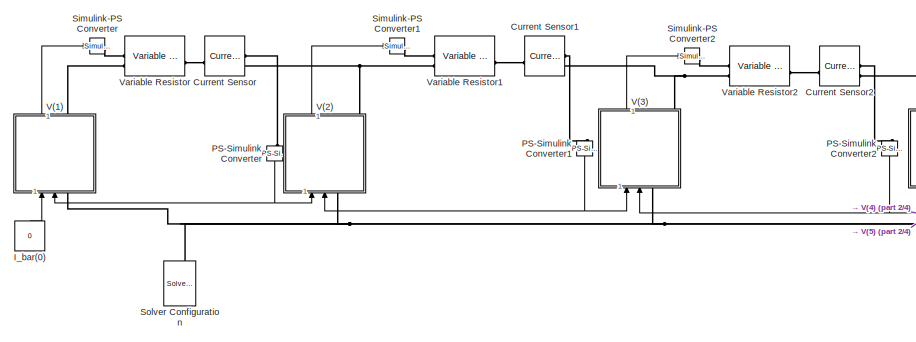
[diagram: DAVS/c_surf_pe - part 1/4, middle left region]
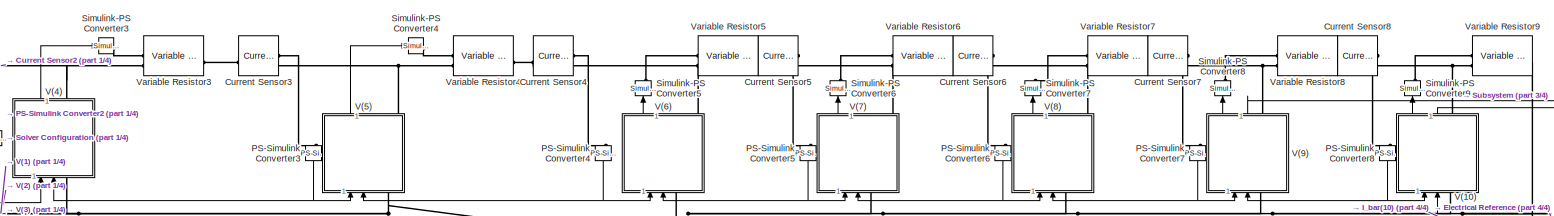
[diagram: DAVS/c_surf_pe - part 2/4, top center region]
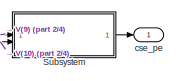
[diagram: DAVS/c_surf_pe - part 3/4, top right region]
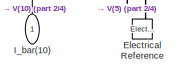
[diagram: DAVS/c_surf_pe - part 4/4, middle right region]
BLOCK [SubSystem] DAVS/c_surf_pe
BLOCK [Reference] DAVS/c_surf_pe/Current Sensor  REF=fl_lib/Electrical/Electrical Sensors/Current Sensor
  SourceBlock = fl_lib/Electrical/Electrical Sensors/Current Sensor
  SourceType = Current Sensor
BLOCK [Reference] DAVS/c_surf_pe/Current Sensor1  REF=fl_lib/Electrical/Electrical Sensors/Current Sensor
  SourceBlock = fl_lib/Electrical/Electrical Sensors/Current Sensor
  SourceType = Current Sensor
BLOCK [Reference] DAVS/c_surf_pe/Current Sensor2  REF=fl_lib/Electrical/Electrical Sensors/Current Sensor
  SourceBlock = fl_lib/Electrical/Electrical Sensors/Current Sensor
  SourceType = Current Sensor
BLOCK [Reference] DAVS/c_surf_pe/Current Sensor3  REF=fl_lib/Electrical/Electrical Sensors/Current Sensor
  SourceBlock = fl_lib/Electrical/Electrical Sensors/Current Sensor
  SourceType = Current Sensor
BLOCK [Reference] DAVS/c_surf_pe/Current Sensor4  REF=fl_lib/Electrical/Electrical Sensors/Current Sensor
  SourceBlock = fl_lib/Electrical/Electrical Sensors/Current Sensor
  SourceType = Current Sensor
BLOCK [Reference] DAVS/c_surf_pe/Current Sensor5  REF=fl_lib/Electrical/Electrical Sensors/Current Sensor
  SourceBlock = fl_lib/Electrical/Electrical Sensors/Current Sensor
  SourceType = Current Sensor
BLOCK [Reference] DAVS/c_surf_pe/Current Sensor6  REF=fl_lib/Electrical/Electrical Sensors/Current Sensor
  SourceBlock = fl_lib/Electrical/Electrical Sensors/Current Sensor
  SourceType = Current Sensor
BLOCK [Reference] DAVS/c_surf_pe/Current Sensor7  REF=fl_lib/Electrical/Electrical Sensors/Current Sensor
  SourceBlock = fl_lib/Electrical/Electrical Sensors/Current Sensor
  SourceType = Current Sensor
BLOCK [Reference] DAVS/c_surf_pe/Current Sensor8  REF=fl_lib/Electrical/Electrical Sensors/Current Sensor
  SourceBlock = fl_lib/Electrical/Electrical Sensors/Current Sensor
  SourceType = Current Sensor
BLOCK [Reference] DAVS/c_surf_pe/Electrical Reference  REF=fl_lib/Electrical/Electrical Elements/Electrical Reference
  NameLocation = right
  SourceBlock = fl_lib/Electrical/Electrical Elements/Electrical Reference
  SourceType = Electrical Reference
BLOCK [Constant] DAVS/c_surf_pe/I_bar(0)
  NameLocation = right
  Value = 0
BLOCK [Inport] DAVS/c_surf_pe/I_bar(10)
  NameLocation = right
BLOCK [Reference] DAVS/c_surf_pe/PS-Simulink Converter  REF=nesl_utility/PS-Simulink
Converter
  NameLocation = left
  SourceBlock = nesl_utility/PS-Simulink\nConverter
  SourceType = PS-Simulink\nConverter
BLOCK [Reference] DAVS/c_surf_pe/PS-Simulink Converter1  REF=nesl_utility/PS-Simulink
Converter
  NameLocation = left
  SourceBlock = nesl_utility/PS-Simulink\nConverter
  SourceType = PS-Simulink\nConverter
BLOCK [Reference] DAVS/c_surf_pe/PS-Simulink Converter2  REF=nesl_utility/PS-Simulink
Converter
  NameLocation = left
  SourceBlock = nesl_utility/PS-Simulink\nConverter
  SourceType = PS-Simulink\nConverter
BLOCK [Reference] DAVS/c_surf_pe/PS-Simulink Converter3  REF=nesl_utility/PS-Simulink
Converter
  NameLocation = left
  SourceBlock = nesl_utility/PS-Simulink\nConverter
  SourceType = PS-Simulink\nConverter
BLOCK [Reference] DAVS/c_surf_pe/PS-Simulink Converter4  REF=nesl_utility/PS-Simulink
Converter
  NameLocation = left
  SourceBlock = nesl_utility/PS-Simulink\nConverter
  SourceType = PS-Simulink\nConverter
BLOCK [Reference] DAVS/c_surf_pe/PS-Simulink Converter5  REF=nesl_utility/PS-Simulink
Converter
  NameLocation = left
  SourceBlock = nesl_utility/PS-Simulink\nConverter
  SourceType = PS-Simulink\nConverter
BLOCK [Reference] DAVS/c_surf_pe/PS-Simulink Converter6  REF=nesl_utility/PS-Simulink
Converter
  NameLocation = left
  SourceBlock = nesl_utility/PS-Simulink\nConverter
  SourceType = PS-Simulink\nConverter
BLOCK [Reference] DAVS/c_surf_pe/PS-Simulink Converter7  REF=nesl_utility/PS-Simulink
Converter
  NameLocation = left
  SourceBlock = nesl_utility/PS-Simulink\nConverter
  SourceType = PS-Simulink\nConverter
BLOCK [Reference] DAVS/c_surf_pe/PS-Simulink Converter8  REF=nesl_utility/PS-Simulink
Converter
  NameLocation = left
  SourceBlock = nesl_utility/PS-Simulink\nConverter
  SourceType = PS-Simulink\nConverter
BLOCK [Reference] DAVS/c_surf_pe/Simulink-PS Converter  REF=nesl_utility/Simulink-PS
Converter
  SourceBlock = nesl_utility/Simulink-PS\nConverter
  SourceType = Simulink-PS\nConverter
BLOCK [Reference] DAVS/c_surf_pe/Simulink-PS Converter1  REF=nesl_utility/Simulink-PS
Converter
  SourceBlock = nesl_utility/Simulink-PS\nConverter
  SourceType = Simulink-PS\nConverter
BLOCK [Reference] DAVS/c_surf_pe/Simulink-PS Converter2  REF=nesl_utility/Simulink-PS
Converter
  SourceBlock = nesl_utility/Simulink-PS\nConverter
  SourceType = Simulink-PS\nConverter
BLOCK [Reference] DAVS/c_surf_pe/Simulink-PS Converter3  REF=nesl_utility/Simulink-PS
Converter
  SourceBlock = nesl_utility/Simulink-PS\nConverter
  SourceType = Simulink-PS\nConverter
BLOCK [Reference] DAVS/c_surf_pe/Simulink-PS Converter4  REF=nesl_utility/Simulink-PS
Converter
  SourceBlock = nesl_utility/Simulink-PS\nConverter
  SourceType = Simulink-PS\nConverter
BLOCK [Reference] DAVS/c_surf_pe/Simulink-PS Converter5  REF=nesl_utility/Simulink-PS
Converter
  NameLocation = right
  SourceBlock = nesl_utility/Simulink-PS\nConverter
  SourceType = Simulink-PS\nConverter
BLOCK [Reference] DAVS/c_surf_pe/Simulink-PS Converter6  REF=nesl_utility/Simulink-PS
Converter
  NameLocation = right
  SourceBlock = nesl_utility/Simulink-PS\nConverter
  SourceType = Simulink-PS\nConverter
BLOCK [Reference] DAVS/c_surf_pe/Simulink-PS Converter7  REF=nesl_utility/Simulink-PS
Converter
  NameLocation = right
  SourceBlock = nesl_utility/Simulink-PS\nConverter
  SourceType = Simulink-PS\nConverter
BLOCK [Reference] DAVS/c_surf_pe/Simulink-PS Converter8  REF=nesl_utility/Simulink-PS
Converter
  NameLocation = right
  SourceBlock = nesl_utility/Simulink-PS\nConverter
  SourceType = Simulink-PS\nConverter
BLOCK [Reference] DAVS/c_surf_pe/Simulink-PS Converter9  REF=nesl_utility/Simulink-PS
Converter
  NameLocation = right
  SourceBlock = nesl_utility/Simulink-PS\nConverter
  SourceType = Simulink-PS\nConverter
BLOCK [Reference] DAVS/c_surf_pe/Solver Configuration  REF=nesl_utility/Solver
Configuration
  NameLocation = right
  SourceBlock = nesl_utility/Solver\nConfiguration
  SourceType = Solver\nConfiguration
BLOCK [SubSystem] DAVS/c_surf_pe/Subsystem
BLOCK [Gain] DAVS/c_surf_pe/Subsystem/Gain
  Gain = 0.5
BLOCK [Gain] DAVS/c_surf_pe/Subsystem/Gain1
  Gain = 1.5
BLOCK [Sum] DAVS/c_surf_pe/Subsystem/Sum
  Inputs = |+-|
BLOCK [Inport] DAVS/c_surf_pe/Subsystem/c(10)1
  Port = 2
BLOCK [Inport] DAVS/c_surf_pe/Subsystem/c(9)1
BLOCK [Outport] DAVS/c_surf_pe/Subsystem/cse_pe
BLOCK [SubSystem] DAVS/c_surf_pe/V(1)
  NameLocation = right
BLOCK [PMIOPort] DAVS/c_surf_pe/V(1)/+
  Side = Right
  Tag = PMCPort
BLOCK [PMIOPort] DAVS/c_surf_pe/V(1)/-
  Port = 2
  Side = Left
  Tag = PMCPort
BLOCK [Reference] DAVS/c_surf_pe/V(1)/Controlled Voltage Source  REF=fl_lib/Electrical/Electrical Sources/Controlled Voltage
Source
  NameLocation = right
  SourceBlock = fl_lib/Electrical/Electrical Sources/Controlled Voltage\nSource
  SourceType = Controlled Voltage\nSource
BLOCK [SubSystem] DAVS/c_surf_pe/V(1)/I(1)
  NameLocation = right
BLOCK [Outport] DAVS/c_surf_pe/V(1)/I(1)/I(1)
BLOCK [Inport] DAVS/c_surf_pe/V(1)/I(1)/I_bar(0)
BLOCK [Inport] DAVS/c_surf_pe/V(1)/I(1)/I_bar(1)
  Port = 2
BLOCK [Sum] DAVS/c_surf_pe/V(1)/I(1)/Sum
  Inputs = |-+|
BLOCK [Inport] DAVS/c_surf_pe/V(1)/I_bar(0)
  NameLocation = right
BLOCK [Inport] DAVS/c_surf_pe/V(1)/I_bar(1)
  NameLocation = right
  Port = 2
BLOCK [Outport] DAVS/c_surf_pe/V(1)/Rd(1)
BLOCK [Reference] DAVS/c_surf_pe/V(1)/Simulink-PS Converter  REF=nesl_utility/Simulink-PS
Converter
  NameLocation = right
  SourceBlock = nesl_utility/Simulink-PS\nConverter
  SourceType = Simulink-PS\nConverter
BLOCK [SubSystem] DAVS/c_surf_pe/V(1)/Subsystem1
  NameLocation = right
BLOCK [Constant] DAVS/c_surf_pe/V(1)/Subsystem1/Constant
  Value = 2
BLOCK [Constant] DAVS/c_surf_pe/V(1)/Subsystem1/Constant1
  Value = 10
BLOCK [Product] DAVS/c_surf_pe/V(1)/Subsystem1/Divide
  Inputs = */
BLOCK [Gain] DAVS/c_surf_pe/V(1)/Subsystem1/Gain
  Gain = k
BLOCK [Gain] DAVS/c_surf_pe/V(1)/Subsystem1/Gain1
  Gain = 4*pi*R_pe*D_pe
BLOCK [Math] DAVS/c_surf_pe/V(1)/Subsystem1/Math Function
  Operator = pow
BLOCK [Outport] DAVS/c_surf_pe/V(1)/Subsystem1/Rd
BLOCK [Inport] DAVS/c_surf_pe/V(1)/Subsystem1/n
BLOCK [SubSystem] DAVS/c_surf_pe/V(1)/V(1)
  NameLocation = right
BLOCK [Gain] DAVS/c_surf_pe/V(1)/V(1)/Gain
  Gain = k*F
BLOCK [Outport] DAVS/c_surf_pe/V(1)/V(1)/V(1)
BLOCK [Inport] DAVS/c_surf_pe/V(1)/V(1)/c(1)
BLOCK [SubSystem] DAVS/c_surf_pe/V(1)/c(1)
  NameLocation = right
BLOCK [Product] DAVS/c_surf_pe/V(1)/c(1)/Divide
  Inputs = */
BLOCK [Gain] DAVS/c_surf_pe/V(1)/c(1)/Gain
  Gain = F
BLOCK [Inport] DAVS/c_surf_pe/V(1)/c(1)/I(1)
BLOCK [Integrator] DAVS/c_surf_pe/V(1)/c(1)/Integrator
  InitialCondition = c0_pe
BLOCK [Outport] DAVS/c_surf_pe/V(1)/c(1)/c(1)
BLOCK [SubSystem] DAVS/c_surf_pe/V(1)/c(1)/dV
BLOCK [Constant] DAVS/c_surf_pe/V(1)/c(1)/dV/Constant
BLOCK [Constant] DAVS/c_surf_pe/V(1)/c(1)/dV/Constant1
  Value = 3
BLOCK [Constant] DAVS/c_surf_pe/V(1)/c(1)/dV/Constant2
  Value = 3
BLOCK [Product] DAVS/c_surf_pe/V(1)/c(1)/dV/Divide
  Inputs = */
BLOCK [Product] DAVS/c_surf_pe/V(1)/c(1)/dV/Divide1
  Inputs = */
BLOCK [Gain] DAVS/c_surf_pe/V(1)/c(1)/dV/Gain
  Gain = R_pe
BLOCK [Gain] DAVS/c_surf_pe/V(1)/c(1)/dV/Gain1
  Gain = (4*pi)/3
BLOCK [Gain] DAVS/c_surf_pe/V(1)/c(1)/dV/Gain2
  Gain = R_pe
BLOCK [Math] DAVS/c_surf_pe/V(1)/c(1)/dV/Math Function
  Operator = pow
BLOCK [Math] DAVS/c_surf_pe/V(1)/c(1)/dV/Math Function1
  Operator = pow
BLOCK [Constant] DAVS/c_surf_pe/V(1)/c(1)/dV/N
  Value = 10
BLOCK [Constant] DAVS/c_surf_pe/V(1)/c(1)/dV/N1
  Value = 10
BLOCK [Sum] DAVS/c_surf_pe/V(1)/c(1)/dV/Sum
  Inputs = |+-|
BLOCK [Sum] DAVS/c_surf_pe/V(1)/c(1)/dV/Sum1
  Inputs = |+-|
BLOCK [Outport] DAVS/c_surf_pe/V(1)/c(1)/dV/dV(n)
BLOCK [Inport] DAVS/c_surf_pe/V(1)/c(1)/dV/n
BLOCK [Inport] DAVS/c_surf_pe/V(1)/c(1)/n
  Port = 2
BLOCK [Constant] DAVS/c_surf_pe/V(1)/n
  NameLocation = right
BLOCK [SubSystem] DAVS/c_surf_pe/V(10)
  NameLocation = right
BLOCK [PMIOPort] DAVS/c_surf_pe/V(10)/+
  Port = 2
  Side = Right
  Tag = PMCPort
BLOCK [PMIOPort] DAVS/c_surf_pe/V(10)/-
  Side = Left
  Tag = PMCPort
BLOCK [Reference] DAVS/c_surf_pe/V(10)/Controlled Voltage Source  REF=fl_lib/Electrical/Electrical Sources/Controlled Voltage
Source
  NameLocation = right
  SourceBlock = fl_lib/Electrical/Electrical Sources/Controlled Voltage\nSource
  SourceType = Controlled Voltage\nSource
BLOCK [SubSystem] DAVS/c_surf_pe/V(10)/I(10)
  NameLocation = right
BLOCK [Outport] DAVS/c_surf_pe/V(10)/I(10)/I(10)
BLOCK [Inport] DAVS/c_surf_pe/V(10)/I(10)/I_bar(10)
  Port = 2
BLOCK [Inport] DAVS/c_surf_pe/V(10)/I(10)/I_bar(9)
BLOCK [Sum] DAVS/c_surf_pe/V(10)/I(10)/Sum
  Inputs = |-+|
BLOCK [Inport] DAVS/c_surf_pe/V(10)/I_bar(10)
  NameLocation = top
  Port = 2
BLOCK [Inport] DAVS/c_surf_pe/V(10)/I_bar(9)
BLOCK [Outport] DAVS/c_surf_pe/V(10)/Rd(9)1
BLOCK [Reference] DAVS/c_surf_pe/V(10)/Simulink-PS Converter  REF=nesl_utility/Simulink-PS
Converter
  NameLocation = right
  SourceBlock = nesl_utility/Simulink-PS\nConverter
  SourceType = Simulink-PS\nConverter
BLOCK [SubSystem] DAVS/c_surf_pe/V(10)/Subsystem1
  NameLocation = right
BLOCK [Constant] DAVS/c_surf_pe/V(10)/Subsystem1/Constant
  Value = 2
BLOCK [Constant] DAVS/c_surf_pe/V(10)/Subsystem1/Constant1
  Value = 10
BLOCK [Product] DAVS/c_surf_pe/V(10)/Subsystem1/Divide
  Inputs = */
BLOCK [Gain] DAVS/c_surf_pe/V(10)/Subsystem1/Gain
  Gain = k
BLOCK [Gain] DAVS/c_surf_pe/V(10)/Subsystem1/Gain1
  Gain = 4*pi*R_pe*D_pe
BLOCK [Math] DAVS/c_surf_pe/V(10)/Subsystem1/Math Function
  Operator = pow
BLOCK [Outport] DAVS/c_surf_pe/V(10)/Subsystem1/Rd
BLOCK [Inport] DAVS/c_surf_pe/V(10)/Subsystem1/n
BLOCK [SubSystem] DAVS/c_surf_pe/V(10)/V(10)
  NameLocation = right
BLOCK [Gain] DAVS/c_surf_pe/V(10)/V(10)/Gain
  Gain = k*F
BLOCK [Outport] DAVS/c_surf_pe/V(10)/V(10)/V(10)
BLOCK [Inport] DAVS/c_surf_pe/V(10)/V(10)/c(10)
BLOCK [SubSystem] DAVS/c_surf_pe/V(10)/c(10)
  NameLocation = right
BLOCK [Product] DAVS/c_surf_pe/V(10)/c(10)/Divide
  Inputs = */
BLOCK [Gain] DAVS/c_surf_pe/V(10)/c(10)/Gain
  Gain = F
BLOCK [Inport] DAVS/c_surf_pe/V(10)/c(10)/I(10)
BLOCK [Integrator] DAVS/c_surf_pe/V(10)/c(10)/Integrator
  InitialCondition = c0_pe
BLOCK [SubSystem] DAVS/c_surf_pe/V(10)/c(10)/Subsystem
BLOCK [Constant] DAVS/c_surf_pe/V(10)/c(10)/Subsystem/Constant
BLOCK [Constant] DAVS/c_surf_pe/V(10)/c(10)/Subsystem/Constant2
  Value = 3
BLOCK [Constant] DAVS/c_surf_pe/V(10)/c(10)/Subsystem/Constant3
  Value = 3
BLOCK [Product] DAVS/c_surf_pe/V(10)/c(10)/Subsystem/Divide1
  Inputs = */
BLOCK [Product] DAVS/c_surf_pe/V(10)/c(10)/Subsystem/Divide2
  Inputs = */
BLOCK [Gain] DAVS/c_surf_pe/V(10)/c(10)/Subsystem/Gain2
  Gain = R_pe
BLOCK [Gain] DAVS/c_surf_pe/V(10)/c(10)/Subsystem/Gain3
  Gain = (4*pi)/3
BLOCK [Gain] DAVS/c_surf_pe/V(10)/c(10)/Subsystem/Gain4
  Gain = R_pe
BLOCK [Math] DAVS/c_surf_pe/V(10)/c(10)/Subsystem/Math Function1
  Operator = pow
BLOCK [Math] DAVS/c_surf_pe/V(10)/c(10)/Subsystem/Math Function2
  Operator = pow
BLOCK [Constant] DAVS/c_surf_pe/V(10)/c(10)/Subsystem/N1
  Value = 10
BLOCK [Constant] DAVS/c_surf_pe/V(10)/c(10)/Subsystem/N2
  Value = 10
BLOCK [Sum] DAVS/c_surf_pe/V(10)/c(10)/Subsystem/Sum
  Inputs = |+-|
BLOCK [Sum] DAVS/c_surf_pe/V(10)/c(10)/Subsystem/Sum1
  Inputs = |+-|
BLOCK [Outport] DAVS/c_surf_pe/V(10)/c(10)/Subsystem/dV(n)1
BLOCK [Inport] DAVS/c_surf_pe/V(10)/c(10)/Subsystem/n1
BLOCK [Outport] DAVS/c_surf_pe/V(10)/c(10)/c(10)
BLOCK [Inport] DAVS/c_surf_pe/V(10)/c(10)/n
  Port = 2
BLOCK [Outport] DAVS/c_surf_pe/V(10)/c(10)1
  Port = 2
BLOCK [Constant] DAVS/c_surf_pe/V(10)/n
  NameLocation = right
  Value = 10
BLOCK [SubSystem] DAVS/c_surf_pe/V(2)
  NameLocation = right
BLOCK [PMIOPort] DAVS/c_surf_pe/V(2)/+
  Side = Right
  Tag = PMCPort
BLOCK [PMIOPort] DAVS/c_surf_pe/V(2)/-
  Port = 2
  Side = Left
  Tag = PMCPort
BLOCK [Reference] DAVS/c_surf_pe/V(2)/Controlled Voltage Source  REF=fl_lib/Electrical/Electrical Sources/Controlled Voltage
Source
  NameLocation = right
  SourceBlock = fl_lib/Electrical/Electrical Sources/Controlled Voltage\nSource
  SourceType = Controlled Voltage\nSource
BLOCK [SubSystem] DAVS/c_surf_pe/V(2)/I(2)
  NameLocation = right
BLOCK [Outport] DAVS/c_surf_pe/V(2)/I(2)/I(2)
BLOCK [Inport] DAVS/c_surf_pe/V(2)/I(2)/I_bar(1)
BLOCK [Inport] DAVS/c_surf_pe/V(2)/I(2)/I_bar(2)
  Port = 2
BLOCK [Sum] DAVS/c_surf_pe/V(2)/I(2)/Sum
  Inputs = |-+|
BLOCK [Inport] DAVS/c_surf_pe/V(2)/I_bar(1)
BLOCK [Inport] DAVS/c_surf_pe/V(2)/I_bar(2)
  NameLocation = top
  Port = 2
BLOCK [Outport] DAVS/c_surf_pe/V(2)/Rd(2)
BLOCK [Reference] DAVS/c_surf_pe/V(2)/Simulink-PS Converter  REF=nesl_utility/Simulink-PS
Converter
  NameLocation = right
  SourceBlock = nesl_utility/Simulink-PS\nConverter
  SourceType = Simulink-PS\nConverter
BLOCK [SubSystem] DAVS/c_surf_pe/V(2)/Subsystem1
  NameLocation = right
BLOCK [Constant] DAVS/c_surf_pe/V(2)/Subsystem1/Constant
  Value = 2
BLOCK [Constant] DAVS/c_surf_pe/V(2)/Subsystem1/Constant1
  Value = 10
BLOCK [Product] DAVS/c_surf_pe/V(2)/Subsystem1/Divide
  Inputs = */
BLOCK [Gain] DAVS/c_surf_pe/V(2)/Subsystem1/Gain
  Gain = k
BLOCK [Gain] DAVS/c_surf_pe/V(2)/Subsystem1/Gain1
  Gain = 4*pi*R_pe*D_pe
BLOCK [Math] DAVS/c_surf_pe/V(2)/Subsystem1/Math Function
  Operator = pow
BLOCK [Outport] DAVS/c_surf_pe/V(2)/Subsystem1/Rd
BLOCK [Inport] DAVS/c_surf_pe/V(2)/Subsystem1/n
BLOCK [SubSystem] DAVS/c_surf_pe/V(2)/V(2)
  NameLocation = right
BLOCK [Gain] DAVS/c_surf_pe/V(2)/V(2)/Gain
  Gain = k*F
BLOCK [Outport] DAVS/c_surf_pe/V(2)/V(2)/V(2)
BLOCK [Inport] DAVS/c_surf_pe/V(2)/V(2)/c(2)
BLOCK [SubSystem] DAVS/c_surf_pe/V(2)/c(2)
  NameLocation = right
BLOCK [Product] DAVS/c_surf_pe/V(2)/c(2)/Divide
  Inputs = */
BLOCK [Gain] DAVS/c_surf_pe/V(2)/c(2)/Gain
  Gain = F
BLOCK [Inport] DAVS/c_surf_pe/V(2)/c(2)/I(2)
BLOCK [Integrator] DAVS/c_surf_pe/V(2)/c(2)/Integrator
  InitialCondition = c0_pe
BLOCK [SubSystem] DAVS/c_surf_pe/V(2)/c(2)/Subsystem
BLOCK [Constant] DAVS/c_surf_pe/V(2)/c(2)/Subsystem/Constant
BLOCK [Constant] DAVS/c_surf_pe/V(2)/c(2)/Subsystem/Constant2
  Value = 3
BLOCK [Constant] DAVS/c_surf_pe/V(2)/c(2)/Subsystem/Constant3
  Value = 3
BLOCK [Product] DAVS/c_surf_pe/V(2)/c(2)/Subsystem/Divide1
  Inputs = */
BLOCK [Product] DAVS/c_surf_pe/V(2)/c(2)/Subsystem/Divide2
  Inputs = */
BLOCK [Gain] DAVS/c_surf_pe/V(2)/c(2)/Subsystem/Gain2
  Gain = R_pe
BLOCK [Gain] DAVS/c_surf_pe/V(2)/c(2)/Subsystem/Gain3
  Gain = (4*pi)/3
BLOCK [Gain] DAVS/c_surf_pe/V(2)/c(2)/Subsystem/Gain4
  Gain = R_pe
BLOCK [Math] DAVS/c_surf_pe/V(2)/c(2)/Subsystem/Math Function1
  Operator = pow
BLOCK [Math] DAVS/c_surf_pe/V(2)/c(2)/Subsystem/Math Function2
  Operator = pow
BLOCK [Constant] DAVS/c_surf_pe/V(2)/c(2)/Subsystem/N1
  Value = 10
BLOCK [Constant] DAVS/c_surf_pe/V(2)/c(2)/Subsystem/N2
  Value = 10
BLOCK [Sum] DAVS/c_surf_pe/V(2)/c(2)/Subsystem/Sum
  Inputs = |+-|
BLOCK [Sum] DAVS/c_surf_pe/V(2)/c(2)/Subsystem/Sum1
  Inputs = |+-|
BLOCK [Outport] DAVS/c_surf_pe/V(2)/c(2)/Subsystem/dV(n)1
BLOCK [Inport] DAVS/c_surf_pe/V(2)/c(2)/Subsystem/n1
BLOCK [Outport] DAVS/c_surf_pe/V(2)/c(2)/c(2)
BLOCK [Inport] DAVS/c_surf_pe/V(2)/c(2)/n
  Port = 2
BLOCK [Constant] DAVS/c_surf_pe/V(2)/n
  NameLocation = right
  Value = 2
BLOCK [SubSystem] DAVS/c_surf_pe/V(3)
  NameLocation = right
BLOCK [PMIOPort] DAVS/c_surf_pe/V(3)/+
  Side = Right
  Tag = PMCPort
BLOCK [PMIOPort] DAVS/c_surf_pe/V(3)/-
  Port = 2
  Side = Left
  Tag = PMCPort
BLOCK [Reference] DAVS/c_surf_pe/V(3)/Controlled Voltage Source  REF=fl_lib/Electrical/Electrical Sources/Controlled Voltage
Source
  NameLocation = right
  SourceBlock = fl_lib/Electrical/Electrical Sources/Controlled Voltage\nSource
  SourceType = Controlled Voltage\nSource
BLOCK [SubSystem] DAVS/c_surf_pe/V(3)/I(3)
  NameLocation = right
BLOCK [Outport] DAVS/c_surf_pe/V(3)/I(3)/I(3)
BLOCK [Inport] DAVS/c_surf_pe/V(3)/I(3)/I_bar(2)
BLOCK [Inport] DAVS/c_surf_pe/V(3)/I(3)/I_bar(3)
  Port = 2
BLOCK [Sum] DAVS/c_surf_pe/V(3)/I(3)/Sum
  Inputs = |-+|
BLOCK [Inport] DAVS/c_surf_pe/V(3)/I_bar(2)
BLOCK [Inport] DAVS/c_surf_pe/V(3)/I_bar(3)
  NameLocation = right
  Port = 2
BLOCK [Outport] DAVS/c_surf_pe/V(3)/Rd(3)1
BLOCK [Reference] DAVS/c_surf_pe/V(3)/Simulink-PS Converter  REF=nesl_utility/Simulink-PS
Converter
  NameLocation = right
  SourceBlock = nesl_utility/Simulink-PS\nConverter
  SourceType = Simulink-PS\nConverter
BLOCK [SubSystem] DAVS/c_surf_pe/V(3)/Subsystem1
  NameLocation = right
BLOCK [Constant] DAVS/c_surf_pe/V(3)/Subsystem1/Constant
  Value = 2
BLOCK [Constant] DAVS/c_surf_pe/V(3)/Subsystem1/Constant1
  Value = 10
BLOCK [Product] DAVS/c_surf_pe/V(3)/Subsystem1/Divide
  Inputs = */
BLOCK [Gain] DAVS/c_surf_pe/V(3)/Subsystem1/Gain
  Gain = k
BLOCK [Gain] DAVS/c_surf_pe/V(3)/Subsystem1/Gain1
  Gain = 4*pi*R_pe*D_pe
BLOCK [Math] DAVS/c_surf_pe/V(3)/Subsystem1/Math Function
  Operator = pow
BLOCK [Outport] DAVS/c_surf_pe/V(3)/Subsystem1/Rd
BLOCK [Inport] DAVS/c_surf_pe/V(3)/Subsystem1/n
BLOCK [SubSystem] DAVS/c_surf_pe/V(3)/V(3)
  NameLocation = right
BLOCK [Gain] DAVS/c_surf_pe/V(3)/V(3)/Gain
  Gain = k*F
BLOCK [Outport] DAVS/c_surf_pe/V(3)/V(3)/V(3)
BLOCK [Inport] DAVS/c_surf_pe/V(3)/V(3)/c(3)
BLOCK [SubSystem] DAVS/c_surf_pe/V(3)/c(3)
  NameLocation = right
BLOCK [Product] DAVS/c_surf_pe/V(3)/c(3)/Divide
  Inputs = */
BLOCK [Gain] DAVS/c_surf_pe/V(3)/c(3)/Gain
  Gain = F
BLOCK [Inport] DAVS/c_surf_pe/V(3)/c(3)/I(3)
BLOCK [Integrator] DAVS/c_surf_pe/V(3)/c(3)/Integrator
  InitialCondition = c0_pe
BLOCK [SubSystem] DAVS/c_surf_pe/V(3)/c(3)/Subsystem1
BLOCK [Constant] DAVS/c_surf_pe/V(3)/c(3)/Subsystem1/Constant
BLOCK [Constant] DAVS/c_surf_pe/V(3)/c(3)/Subsystem1/Constant2
  Value = 3
BLOCK [Constant] DAVS/c_surf_pe/V(3)/c(3)/Subsystem1/Constant3
  Value = 3
BLOCK [Product] DAVS/c_surf_pe/V(3)/c(3)/Subsystem1/Divide1
  Inputs = */
BLOCK [Product] DAVS/c_surf_pe/V(3)/c(3)/Subsystem1/Divide2
  Inputs = */
BLOCK [Gain] DAVS/c_surf_pe/V(3)/c(3)/Subsystem1/Gain2
  Gain = R_pe
BLOCK [Gain] DAVS/c_surf_pe/V(3)/c(3)/Subsystem1/Gain3
  Gain = (4*pi)/3
BLOCK [Gain] DAVS/c_surf_pe/V(3)/c(3)/Subsystem1/Gain4
  Gain = R_pe
BLOCK [Math] DAVS/c_surf_pe/V(3)/c(3)/Subsystem1/Math Function1
  Operator = pow
BLOCK [Math] DAVS/c_surf_pe/V(3)/c(3)/Subsystem1/Math Function2
  Operator = pow
BLOCK [Constant] DAVS/c_surf_pe/V(3)/c(3)/Subsystem1/N1
  Value = 10
BLOCK [Constant] DAVS/c_surf_pe/V(3)/c(3)/Subsystem1/N2
  Value = 10
BLOCK [Sum] DAVS/c_surf_pe/V(3)/c(3)/Subsystem1/Sum
  Inputs = |+-|
BLOCK [Sum] DAVS/c_surf_pe/V(3)/c(3)/Subsystem1/Sum1
  Inputs = |+-|
BLOCK [Outport] DAVS/c_surf_pe/V(3)/c(3)/Subsystem1/dV(n)1
BLOCK [Inport] DAVS/c_surf_pe/V(3)/c(3)/Subsystem1/n1
BLOCK [Outport] DAVS/c_surf_pe/V(3)/c(3)/c(3)
BLOCK [Inport] DAVS/c_surf_pe/V(3)/c(3)/n
  Port = 2
BLOCK [Constant] DAVS/c_surf_pe/V(3)/n
  NameLocation = right
  Value = 3
BLOCK [SubSystem] DAVS/c_surf_pe/V(4)
  NameLocation = right
BLOCK [PMIOPort] DAVS/c_surf_pe/V(4)/+
  Side = Right
  Tag = PMCPort
BLOCK [PMIOPort] DAVS/c_surf_pe/V(4)/-
  Port = 2
  Side = Left
  Tag = PMCPort
BLOCK [Reference] DAVS/c_surf_pe/V(4)/Controlled Voltage Source  REF=fl_lib/Electrical/Electrical Sources/Controlled Voltage
Source
  NameLocation = right
  SourceBlock = fl_lib/Electrical/Electrical Sources/Controlled Voltage\nSource
  SourceType = Controlled Voltage\nSource
BLOCK [SubSystem] DAVS/c_surf_pe/V(4)/I(4)
  NameLocation = right
BLOCK [Outport] DAVS/c_surf_pe/V(4)/I(4)/I(4)
BLOCK [Inport] DAVS/c_surf_pe/V(4)/I(4)/I_bar(3)
BLOCK [Inport] DAVS/c_surf_pe/V(4)/I(4)/I_bar(4)
  Port = 2
BLOCK [Sum] DAVS/c_surf_pe/V(4)/I(4)/Sum
  Inputs = |-+|
BLOCK [Inport] DAVS/c_surf_pe/V(4)/I_bar(3)
BLOCK [Inport] DAVS/c_surf_pe/V(4)/I_bar(4)
  NameLocation = right
  Port = 2
BLOCK [Outport] DAVS/c_surf_pe/V(4)/Rd(4)1
BLOCK [Reference] DAVS/c_surf_pe/V(4)/Simulink-PS Converter  REF=nesl_utility/Simulink-PS
Converter
  NameLocation = right
  SourceBlock = nesl_utility/Simulink-PS\nConverter
  SourceType = Simulink-PS\nConverter
BLOCK [SubSystem] DAVS/c_surf_pe/V(4)/Subsystem1
  NameLocation = right
BLOCK [Constant] DAVS/c_surf_pe/V(4)/Subsystem1/Constant
  Value = 2
BLOCK [Constant] DAVS/c_surf_pe/V(4)/Subsystem1/Constant1
  Value = 10
BLOCK [Product] DAVS/c_surf_pe/V(4)/Subsystem1/Divide
  Inputs = */
BLOCK [Gain] DAVS/c_surf_pe/V(4)/Subsystem1/Gain
  Gain = k
BLOCK [Gain] DAVS/c_surf_pe/V(4)/Subsystem1/Gain1
  Gain = 4*pi*R_pe*D_pe
BLOCK [Math] DAVS/c_surf_pe/V(4)/Subsystem1/Math Function
  Operator = pow
BLOCK [Outport] DAVS/c_surf_pe/V(4)/Subsystem1/Rd
BLOCK [Inport] DAVS/c_surf_pe/V(4)/Subsystem1/n
BLOCK [SubSystem] DAVS/c_surf_pe/V(4)/V(4)
  NameLocation = right
BLOCK [Gain] DAVS/c_surf_pe/V(4)/V(4)/Gain
  Gain = k*F
BLOCK [Outport] DAVS/c_surf_pe/V(4)/V(4)/V(4)
BLOCK [Inport] DAVS/c_surf_pe/V(4)/V(4)/c(4)
BLOCK [SubSystem] DAVS/c_surf_pe/V(4)/c(4)
  NameLocation = right
BLOCK [Product] DAVS/c_surf_pe/V(4)/c(4)/Divide
  Inputs = */
BLOCK [Gain] DAVS/c_surf_pe/V(4)/c(4)/Gain
  Gain = F
BLOCK [Inport] DAVS/c_surf_pe/V(4)/c(4)/I(4)
BLOCK [Integrator] DAVS/c_surf_pe/V(4)/c(4)/Integrator
  InitialCondition = c0_pe
BLOCK [SubSystem] DAVS/c_surf_pe/V(4)/c(4)/Subsystem1
BLOCK [Constant] DAVS/c_surf_pe/V(4)/c(4)/Subsystem1/Constant
BLOCK [Constant] DAVS/c_surf_pe/V(4)/c(4)/Subsystem1/Constant2
  Value = 3
BLOCK [Constant] DAVS/c_surf_pe/V(4)/c(4)/Subsystem1/Constant3
  Value = 3
BLOCK [Product] DAVS/c_surf_pe/V(4)/c(4)/Subsystem1/Divide1
  Inputs = */
BLOCK [Product] DAVS/c_surf_pe/V(4)/c(4)/Subsystem1/Divide2
  Inputs = */
BLOCK [Gain] DAVS/c_surf_pe/V(4)/c(4)/Subsystem1/Gain2
  Gain = R_pe
BLOCK [Gain] DAVS/c_surf_pe/V(4)/c(4)/Subsystem1/Gain3
  Gain = (4*pi)/3
BLOCK [Gain] DAVS/c_surf_pe/V(4)/c(4)/Subsystem1/Gain4
  Gain = R_pe
BLOCK [Math] DAVS/c_surf_pe/V(4)/c(4)/Subsystem1/Math Function1
  Operator = pow
BLOCK [Math] DAVS/c_surf_pe/V(4)/c(4)/Subsystem1/Math Function2
  Operator = pow
BLOCK [Constant] DAVS/c_surf_pe/V(4)/c(4)/Subsystem1/N1
  Value = 10
BLOCK [Constant] DAVS/c_surf_pe/V(4)/c(4)/Subsystem1/N2
  Value = 10
BLOCK [Sum] DAVS/c_surf_pe/V(4)/c(4)/Subsystem1/Sum
  Inputs = |+-|
BLOCK [Sum] DAVS/c_surf_pe/V(4)/c(4)/Subsystem1/Sum1
  Inputs = |+-|
BLOCK [Outport] DAVS/c_surf_pe/V(4)/c(4)/Subsystem1/dV(n)1
BLOCK [Inport] DAVS/c_surf_pe/V(4)/c(4)/Subsystem1/n1
BLOCK [Outport] DAVS/c_surf_pe/V(4)/c(4)/c(4)
BLOCK [Inport] DAVS/c_surf_pe/V(4)/c(4)/n
  Port = 2
BLOCK [Constant] DAVS/c_surf_pe/V(4)/n
  NameLocation = right
  Value = 4
BLOCK [SubSystem] DAVS/c_surf_pe/V(5)
  NameLocation = right
BLOCK [PMIOPort] DAVS/c_surf_pe/V(5)/+
  Side = Right
  Tag = PMCPort
BLOCK [PMIOPort] DAVS/c_surf_pe/V(5)/-
  Port = 2
  Side = Left
  Tag = PMCPort
BLOCK [Reference] DAVS/c_surf_pe/V(5)/Controlled Voltage Source  REF=fl_lib/Electrical/Electrical Sources/Controlled Voltage
Source
  NameLocation = right
  SourceBlock = fl_lib/Electrical/Electrical Sources/Controlled Voltage\nSource
  SourceType = Controlled Voltage\nSource
BLOCK [SubSystem] DAVS/c_surf_pe/V(5)/I(n)
  NameLocation = right
BLOCK [Outport] DAVS/c_surf_pe/V(5)/I(n)/I(5)
BLOCK [Inport] DAVS/c_surf_pe/V(5)/I(n)/I_bar(4)
BLOCK [Inport] DAVS/c_surf_pe/V(5)/I(n)/I_bar(5)
  Port = 2
BLOCK [Sum] DAVS/c_surf_pe/V(5)/I(n)/Sum
  Inputs = |-+|
BLOCK [Inport] DAVS/c_surf_pe/V(5)/I_bar(4)
BLOCK [Inport] DAVS/c_surf_pe/V(5)/I_bar(5)
  NameLocation = right
  Port = 2
BLOCK [Outport] DAVS/c_surf_pe/V(5)/Rd(5)1
BLOCK [Reference] DAVS/c_surf_pe/V(5)/Simulink-PS Converter  REF=nesl_utility/Simulink-PS
Converter
  NameLocation = right
  SourceBlock = nesl_utility/Simulink-PS\nConverter
  SourceType = Simulink-PS\nConverter
BLOCK [SubSystem] DAVS/c_surf_pe/V(5)/Subsystem1
  NameLocation = right
BLOCK [Constant] DAVS/c_surf_pe/V(5)/Subsystem1/Constant
  Value = 2
BLOCK [Constant] DAVS/c_surf_pe/V(5)/Subsystem1/Constant1
  Value = 10
BLOCK [Product] DAVS/c_surf_pe/V(5)/Subsystem1/Divide
  Inputs = */
BLOCK [Gain] DAVS/c_surf_pe/V(5)/Subsystem1/Gain
  Gain = k
BLOCK [Gain] DAVS/c_surf_pe/V(5)/Subsystem1/Gain1
  Gain = 4*pi*R_pe*D_pe
BLOCK [Math] DAVS/c_surf_pe/V(5)/Subsystem1/Math Function
  Operator = pow
BLOCK [Outport] DAVS/c_surf_pe/V(5)/Subsystem1/Rd
BLOCK [Inport] DAVS/c_surf_pe/V(5)/Subsystem1/n
BLOCK [SubSystem] DAVS/c_surf_pe/V(5)/V(5)
  NameLocation = right
BLOCK [Gain] DAVS/c_surf_pe/V(5)/V(5)/Gain
  Gain = k*F
BLOCK [Outport] DAVS/c_surf_pe/V(5)/V(5)/V(5)
BLOCK [Inport] DAVS/c_surf_pe/V(5)/V(5)/c(5)
BLOCK [SubSystem] DAVS/c_surf_pe/V(5)/c(5)
  NameLocation = right
BLOCK [Product] DAVS/c_surf_pe/V(5)/c(5)/Divide
  Inputs = */
BLOCK [Gain] DAVS/c_surf_pe/V(5)/c(5)/Gain
  Gain = F
BLOCK [Inport] DAVS/c_surf_pe/V(5)/c(5)/I(5)
BLOCK [Integrator] DAVS/c_surf_pe/V(5)/c(5)/Integrator
  InitialCondition = c0_pe
BLOCK [SubSystem] DAVS/c_surf_pe/V(5)/c(5)/Subsystem1
BLOCK [Constant] DAVS/c_surf_pe/V(5)/c(5)/Subsystem1/Constant
BLOCK [Constant] DAVS/c_surf_pe/V(5)/c(5)/Subsystem1/Constant2
  Value = 3
BLOCK [Constant] DAVS/c_surf_pe/V(5)/c(5)/Subsystem1/Constant3
  Value = 3
BLOCK [Product] DAVS/c_surf_pe/V(5)/c(5)/Subsystem1/Divide1
  Inputs = */
BLOCK [Product] DAVS/c_surf_pe/V(5)/c(5)/Subsystem1/Divide2
  Inputs = */
BLOCK [Gain] DAVS/c_surf_pe/V(5)/c(5)/Subsystem1/Gain2
  Gain = R_pe
BLOCK [Gain] DAVS/c_surf_pe/V(5)/c(5)/Subsystem1/Gain3
  Gain = (4*pi)/3
BLOCK [Gain] DAVS/c_surf_pe/V(5)/c(5)/Subsystem1/Gain4
  Gain = R_pe
BLOCK [Math] DAVS/c_surf_pe/V(5)/c(5)/Subsystem1/Math Function1
  Operator = pow
BLOCK [Math] DAVS/c_surf_pe/V(5)/c(5)/Subsystem1/Math Function2
  Operator = pow
BLOCK [Constant] DAVS/c_surf_pe/V(5)/c(5)/Subsystem1/N1
  Value = 10
BLOCK [Constant] DAVS/c_surf_pe/V(5)/c(5)/Subsystem1/N2
  Value = 10
BLOCK [Sum] DAVS/c_surf_pe/V(5)/c(5)/Subsystem1/Sum
  Inputs = |+-|
BLOCK [Sum] DAVS/c_surf_pe/V(5)/c(5)/Subsystem1/Sum1
  Inputs = |+-|
BLOCK [Outport] DAVS/c_surf_pe/V(5)/c(5)/Subsystem1/dV(n)1
BLOCK [Inport] DAVS/c_surf_pe/V(5)/c(5)/Subsystem1/n1
BLOCK [Outport] DAVS/c_surf_pe/V(5)/c(5)/c(5)
BLOCK [Inport] DAVS/c_surf_pe/V(5)/c(5)/n
  Port = 2
BLOCK [Constant] DAVS/c_surf_pe/V(5)/n
  NameLocation = right
  Value = 5
BLOCK [SubSystem] DAVS/c_surf_pe/V(6)
  NameLocation = right
BLOCK [PMIOPort] DAVS/c_surf_pe/V(6)/+
  Side = Right
  Tag = PMCPort
BLOCK [PMIOPort] DAVS/c_surf_pe/V(6)/-
  Port = 2
  Side = Left
  Tag = PMCPort
BLOCK [Reference] DAVS/c_surf_pe/V(6)/Controlled Voltage Source  REF=fl_lib/Electrical/Electrical Sources/Controlled Voltage
Source
  NameLocation = right
  SourceBlock = fl_lib/Electrical/Electrical Sources/Controlled Voltage\nSource
  SourceType = Controlled Voltage\nSource
BLOCK [SubSystem] DAVS/c_surf_pe/V(6)/I(6)
  NameLocation = right
BLOCK [Outport] DAVS/c_surf_pe/V(6)/I(6)/I(6)
BLOCK [Inport] DAVS/c_surf_pe/V(6)/I(6)/I_bar(5)
  Port = 2
BLOCK [Inport] DAVS/c_surf_pe/V(6)/I(6)/I_bar(6)
BLOCK [Sum] DAVS/c_surf_pe/V(6)/I(6)/Sum
  Inputs = |-+|
BLOCK [Inport] DAVS/c_surf_pe/V(6)/I_bar(5)
BLOCK [Inport] DAVS/c_surf_pe/V(6)/I_bar(6)
  NameLocation = right
  Port = 2
BLOCK [Outport] DAVS/c_surf_pe/V(6)/Rd(6)1
BLOCK [Reference] DAVS/c_surf_pe/V(6)/Simulink-PS Converter  REF=nesl_utility/Simulink-PS
Converter
  NameLocation = right
  SourceBlock = nesl_utility/Simulink-PS\nConverter
  SourceType = Simulink-PS\nConverter
BLOCK [SubSystem] DAVS/c_surf_pe/V(6)/Subsystem1
  NameLocation = right
BLOCK [Constant] DAVS/c_surf_pe/V(6)/Subsystem1/Constant
  Value = 2
BLOCK [Constant] DAVS/c_surf_pe/V(6)/Subsystem1/Constant1
  Value = 10
BLOCK [Product] DAVS/c_surf_pe/V(6)/Subsystem1/Divide
  Inputs = */
BLOCK [Gain] DAVS/c_surf_pe/V(6)/Subsystem1/Gain
  Gain = k
BLOCK [Gain] DAVS/c_surf_pe/V(6)/Subsystem1/Gain1
  Gain = 4*pi*R_pe*D_pe
BLOCK [Math] DAVS/c_surf_pe/V(6)/Subsystem1/Math Function
  Operator = pow
BLOCK [Outport] DAVS/c_surf_pe/V(6)/Subsystem1/Rd
BLOCK [Inport] DAVS/c_surf_pe/V(6)/Subsystem1/n
BLOCK [SubSystem] DAVS/c_surf_pe/V(6)/V(6)
  NameLocation = right
BLOCK [Gain] DAVS/c_surf_pe/V(6)/V(6)/Gain
  Gain = k*F
BLOCK [Outport] DAVS/c_surf_pe/V(6)/V(6)/V(6)
BLOCK [Inport] DAVS/c_surf_pe/V(6)/V(6)/c(6)
BLOCK [SubSystem] DAVS/c_surf_pe/V(6)/c(6)
  NameLocation = right
BLOCK [Product] DAVS/c_surf_pe/V(6)/c(6)/Divide
  Inputs = */
BLOCK [Gain] DAVS/c_surf_pe/V(6)/c(6)/Gain
  Gain = F
BLOCK [Inport] DAVS/c_surf_pe/V(6)/c(6)/I(6)
BLOCK [Integrator] DAVS/c_surf_pe/V(6)/c(6)/Integrator
  InitialCondition = c0_pe
BLOCK [SubSystem] DAVS/c_surf_pe/V(6)/c(6)/Subsystem1
BLOCK [Constant] DAVS/c_surf_pe/V(6)/c(6)/Subsystem1/Constant
BLOCK [Constant] DAVS/c_surf_pe/V(6)/c(6)/Subsystem1/Constant2
  Value = 3
BLOCK [Constant] DAVS/c_surf_pe/V(6)/c(6)/Subsystem1/Constant3
  Value = 3
BLOCK [Product] DAVS/c_surf_pe/V(6)/c(6)/Subsystem1/Divide1
  Inputs = */
BLOCK [Product] DAVS/c_surf_pe/V(6)/c(6)/Subsystem1/Divide2
  Inputs = */
BLOCK [Gain] DAVS/c_surf_pe/V(6)/c(6)/Subsystem1/Gain2
  Gain = R_pe
BLOCK [Gain] DAVS/c_surf_pe/V(6)/c(6)/Subsystem1/Gain3
  Gain = (4*pi)/3
BLOCK [Gain] DAVS/c_surf_pe/V(6)/c(6)/Subsystem1/Gain4
  Gain = R_pe
BLOCK [Math] DAVS/c_surf_pe/V(6)/c(6)/Subsystem1/Math Function1
  Operator = pow
BLOCK [Math] DAVS/c_surf_pe/V(6)/c(6)/Subsystem1/Math Function2
  Operator = pow
BLOCK [Constant] DAVS/c_surf_pe/V(6)/c(6)/Subsystem1/N1
  Value = 10
BLOCK [Constant] DAVS/c_surf_pe/V(6)/c(6)/Subsystem1/N2
  Value = 10
BLOCK [Sum] DAVS/c_surf_pe/V(6)/c(6)/Subsystem1/Sum
  Inputs = |+-|
BLOCK [Sum] DAVS/c_surf_pe/V(6)/c(6)/Subsystem1/Sum1
  Inputs = |+-|
BLOCK [Outport] DAVS/c_surf_pe/V(6)/c(6)/Subsystem1/dV(n)1
BLOCK [Inport] DAVS/c_surf_pe/V(6)/c(6)/Subsystem1/n1
BLOCK [Outport] DAVS/c_surf_pe/V(6)/c(6)/c(6)
BLOCK [Inport] DAVS/c_surf_pe/V(6)/c(6)/n
  Port = 2
BLOCK [Constant] DAVS/c_surf_pe/V(6)/n
  NameLocation = right
  Value = 6
BLOCK [SubSystem] DAVS/c_surf_pe/V(7)
  NameLocation = right
BLOCK [PMIOPort] DAVS/c_surf_pe/V(7)/+
  Side = Right
  Tag = PMCPort
BLOCK [PMIOPort] DAVS/c_surf_pe/V(7)/-
  Port = 2
  Side = Left
  Tag = PMCPort
BLOCK [Reference] DAVS/c_surf_pe/V(7)/Controlled Voltage Source  REF=fl_lib/Electrical/Electrical Sources/Controlled Voltage
Source
  NameLocation = right
  SourceBlock = fl_lib/Electrical/Electrical Sources/Controlled Voltage\nSource
  SourceType = Controlled Voltage\nSource
BLOCK [SubSystem] DAVS/c_surf_pe/V(7)/I(7)
  NameLocation = right
BLOCK [Outport] DAVS/c_surf_pe/V(7)/I(7)/I(7)
BLOCK [Inport] DAVS/c_surf_pe/V(7)/I(7)/I_bar(6)
BLOCK [Inport] DAVS/c_surf_pe/V(7)/I(7)/I_bar(7)
  Port = 2
BLOCK [Sum] DAVS/c_surf_pe/V(7)/I(7)/Sum
  Inputs = |-+|
BLOCK [Inport] DAVS/c_surf_pe/V(7)/I_bar(6)
BLOCK [Inport] DAVS/c_surf_pe/V(7)/I_bar(7)
  NameLocation = right
  Port = 2
BLOCK [Outport] DAVS/c_surf_pe/V(7)/Rd(7)1
BLOCK [Reference] DAVS/c_surf_pe/V(7)/Simulink-PS Converter  REF=nesl_utility/Simulink-PS
Converter
  NameLocation = right
  SourceBlock = nesl_utility/Simulink-PS\nConverter
  SourceType = Simulink-PS\nConverter
BLOCK [SubSystem] DAVS/c_surf_pe/V(7)/Subsystem1
  NameLocation = right
BLOCK [Constant] DAVS/c_surf_pe/V(7)/Subsystem1/Constant
  Value = 2
BLOCK [Constant] DAVS/c_surf_pe/V(7)/Subsystem1/Constant1
  Value = 10
BLOCK [Product] DAVS/c_surf_pe/V(7)/Subsystem1/Divide
  Inputs = */
BLOCK [Gain] DAVS/c_surf_pe/V(7)/Subsystem1/Gain
  Gain = k
BLOCK [Gain] DAVS/c_surf_pe/V(7)/Subsystem1/Gain1
  Gain = 4*pi*R_pe*D_pe
BLOCK [Math] DAVS/c_surf_pe/V(7)/Subsystem1/Math Function
  Operator = pow
BLOCK [Outport] DAVS/c_surf_pe/V(7)/Subsystem1/Rd
BLOCK [Inport] DAVS/c_surf_pe/V(7)/Subsystem1/n
BLOCK [SubSystem] DAVS/c_surf_pe/V(7)/V(7)
  NameLocation = right
BLOCK [Gain] DAVS/c_surf_pe/V(7)/V(7)/Gain
  Gain = k*F
BLOCK [Outport] DAVS/c_surf_pe/V(7)/V(7)/V(7)
BLOCK [Inport] DAVS/c_surf_pe/V(7)/V(7)/c(7)
BLOCK [SubSystem] DAVS/c_surf_pe/V(7)/c(7)
  NameLocation = right
BLOCK [Product] DAVS/c_surf_pe/V(7)/c(7)/Divide
  Inputs = */
BLOCK [Gain] DAVS/c_surf_pe/V(7)/c(7)/Gain
  Gain = F
BLOCK [Inport] DAVS/c_surf_pe/V(7)/c(7)/I(7)
BLOCK [Integrator] DAVS/c_surf_pe/V(7)/c(7)/Integrator
  InitialCondition = c0_pe
BLOCK [SubSystem] DAVS/c_surf_pe/V(7)/c(7)/Subsystem
BLOCK [Constant] DAVS/c_surf_pe/V(7)/c(7)/Subsystem/Constant
BLOCK [Constant] DAVS/c_surf_pe/V(7)/c(7)/Subsystem/Constant2
  Value = 3
BLOCK [Constant] DAVS/c_surf_pe/V(7)/c(7)/Subsystem/Constant3
  Value = 3
BLOCK [Product] DAVS/c_surf_pe/V(7)/c(7)/Subsystem/Divide1
  Inputs = */
BLOCK [Product] DAVS/c_surf_pe/V(7)/c(7)/Subsystem/Divide2
  Inputs = */
BLOCK [Gain] DAVS/c_surf_pe/V(7)/c(7)/Subsystem/Gain2
  Gain = R_pe
BLOCK [Gain] DAVS/c_surf_pe/V(7)/c(7)/Subsystem/Gain3
  Gain = (4*pi)/3
BLOCK [Gain] DAVS/c_surf_pe/V(7)/c(7)/Subsystem/Gain4
  Gain = R_pe
BLOCK [Math] DAVS/c_surf_pe/V(7)/c(7)/Subsystem/Math Function1
  Operator = pow
BLOCK [Math] DAVS/c_surf_pe/V(7)/c(7)/Subsystem/Math Function2
  Operator = pow
BLOCK [Constant] DAVS/c_surf_pe/V(7)/c(7)/Subsystem/N1
  Value = 10
BLOCK [Constant] DAVS/c_surf_pe/V(7)/c(7)/Subsystem/N2
  Value = 10
BLOCK [Sum] DAVS/c_surf_pe/V(7)/c(7)/Subsystem/Sum
  Inputs = |+-|
BLOCK [Sum] DAVS/c_surf_pe/V(7)/c(7)/Subsystem/Sum1
  Inputs = |+-|
BLOCK [Outport] DAVS/c_surf_pe/V(7)/c(7)/Subsystem/dV(n)1
BLOCK [Inport] DAVS/c_surf_pe/V(7)/c(7)/Subsystem/n1
BLOCK [Outport] DAVS/c_surf_pe/V(7)/c(7)/c(7)
BLOCK [Inport] DAVS/c_surf_pe/V(7)/c(7)/n
  Port = 2
BLOCK [Constant] DAVS/c_surf_pe/V(7)/n
  NameLocation = right
  Value = 7
BLOCK [SubSystem] DAVS/c_surf_pe/V(8)
  NameLocation = right
BLOCK [PMIOPort] DAVS/c_surf_pe/V(8)/+
  Side = Right
  Tag = PMCPort
BLOCK [PMIOPort] DAVS/c_surf_pe/V(8)/-
  Port = 2
  Side = Left
  Tag = PMCPort
BLOCK [Reference] DAVS/c_surf_pe/V(8)/Controlled Voltage Source  REF=fl_lib/Electrical/Electrical Sources/Controlled Voltage
Source
  NameLocation = right
  SourceBlock = fl_lib/Electrical/Electrical Sources/Controlled Voltage\nSource
  SourceType = Controlled Voltage\nSource
BLOCK [SubSystem] DAVS/c_surf_pe/V(8)/I(8)
  NameLocation = right
BLOCK [Outport] DAVS/c_surf_pe/V(8)/I(8)/I(8)
BLOCK [Inport] DAVS/c_surf_pe/V(8)/I(8)/I_bar(7)
BLOCK [Inport] DAVS/c_surf_pe/V(8)/I(8)/I_bar(8)
  Port = 2
BLOCK [Sum] DAVS/c_surf_pe/V(8)/I(8)/Sum
  Inputs = |-+|
BLOCK [Inport] DAVS/c_surf_pe/V(8)/I_bar(7)
BLOCK [Inport] DAVS/c_surf_pe/V(8)/I_bar(8)
  NameLocation = right
  Port = 2
BLOCK [Outport] DAVS/c_surf_pe/V(8)/Rd(8)1
BLOCK [Reference] DAVS/c_surf_pe/V(8)/Simulink-PS Converter  REF=nesl_utility/Simulink-PS
Converter
  NameLocation = right
  SourceBlock = nesl_utility/Simulink-PS\nConverter
  SourceType = Simulink-PS\nConverter
BLOCK [SubSystem] DAVS/c_surf_pe/V(8)/Subsystem1
  NameLocation = right
BLOCK [Constant] DAVS/c_surf_pe/V(8)/Subsystem1/Constant
  Value = 2
BLOCK [Constant] DAVS/c_surf_pe/V(8)/Subsystem1/Constant1
  Value = 10
BLOCK [Product] DAVS/c_surf_pe/V(8)/Subsystem1/Divide
  Inputs = */
BLOCK [Gain] DAVS/c_surf_pe/V(8)/Subsystem1/Gain
  Gain = k
BLOCK [Gain] DAVS/c_surf_pe/V(8)/Subsystem1/Gain1
  Gain = 4*pi*R_pe*D_pe
BLOCK [Math] DAVS/c_surf_pe/V(8)/Subsystem1/Math Function
  Operator = pow
BLOCK [Outport] DAVS/c_surf_pe/V(8)/Subsystem1/Rd
BLOCK [Inport] DAVS/c_surf_pe/V(8)/Subsystem1/n
BLOCK [SubSystem] DAVS/c_surf_pe/V(8)/V(8)
  NameLocation = right
BLOCK [Gain] DAVS/c_surf_pe/V(8)/V(8)/Gain
  Gain = k*F
BLOCK [Outport] DAVS/c_surf_pe/V(8)/V(8)/V(8)
BLOCK [Inport] DAVS/c_surf_pe/V(8)/V(8)/c(8)
BLOCK [SubSystem] DAVS/c_surf_pe/V(8)/c(1)
  NameLocation = right
BLOCK [Product] DAVS/c_surf_pe/V(8)/c(1)/Divide
  Inputs = */
BLOCK [Gain] DAVS/c_surf_pe/V(8)/c(1)/Gain
  Gain = F
BLOCK [Inport] DAVS/c_surf_pe/V(8)/c(1)/I(8)
BLOCK [Integrator] DAVS/c_surf_pe/V(8)/c(1)/Integrator
  InitialCondition = c0_pe
BLOCK [SubSystem] DAVS/c_surf_pe/V(8)/c(1)/Subsystem
BLOCK [Constant] DAVS/c_surf_pe/V(8)/c(1)/Subsystem/Constant
BLOCK [Constant] DAVS/c_surf_pe/V(8)/c(1)/Subsystem/Constant2
  Value = 3
BLOCK [Constant] DAVS/c_surf_pe/V(8)/c(1)/Subsystem/Constant3
  Value = 3
BLOCK [Product] DAVS/c_surf_pe/V(8)/c(1)/Subsystem/Divide1
  Inputs = */
BLOCK [Product] DAVS/c_surf_pe/V(8)/c(1)/Subsystem/Divide2
  Inputs = */
BLOCK [Gain] DAVS/c_surf_pe/V(8)/c(1)/Subsystem/Gain2
  Gain = R_pe
BLOCK [Gain] DAVS/c_surf_pe/V(8)/c(1)/Subsystem/Gain3
  Gain = (4*pi)/3
BLOCK [Gain] DAVS/c_surf_pe/V(8)/c(1)/Subsystem/Gain4
  Gain = R_pe
BLOCK [Math] DAVS/c_surf_pe/V(8)/c(1)/Subsystem/Math Function1
  Operator = pow
BLOCK [Math] DAVS/c_surf_pe/V(8)/c(1)/Subsystem/Math Function2
  Operator = pow
BLOCK [Constant] DAVS/c_surf_pe/V(8)/c(1)/Subsystem/N1
  Value = 10
BLOCK [Constant] DAVS/c_surf_pe/V(8)/c(1)/Subsystem/N2
  Value = 10
BLOCK [Sum] DAVS/c_surf_pe/V(8)/c(1)/Subsystem/Sum
  Inputs = |+-|
BLOCK [Sum] DAVS/c_surf_pe/V(8)/c(1)/Subsystem/Sum1
  Inputs = |+-|
BLOCK [Outport] DAVS/c_surf_pe/V(8)/c(1)/Subsystem/dV(n)1
BLOCK [Inport] DAVS/c_surf_pe/V(8)/c(1)/Subsystem/n1
BLOCK [Outport] DAVS/c_surf_pe/V(8)/c(1)/c(8)
BLOCK [Inport] DAVS/c_surf_pe/V(8)/c(1)/n
  Port = 2
BLOCK [Constant] DAVS/c_surf_pe/V(8)/n
  NameLocation = right
  Value = 8
BLOCK [SubSystem] DAVS/c_surf_pe/V(9)
  NameLocation = right
BLOCK [PMIOPort] DAVS/c_surf_pe/V(9)/+
  Port = 2
  Side = Right
  Tag = PMCPort
BLOCK [PMIOPort] DAVS/c_surf_pe/V(9)/-
  Side = Left
  Tag = PMCPort
BLOCK [Reference] DAVS/c_surf_pe/V(9)/Controlled Voltage Source  REF=fl_lib/Electrical/Electrical Sources/Controlled Voltage
Source
  NameLocation = right
  SourceBlock = fl_lib/Electrical/Electrical Sources/Controlled Voltage\nSource
  SourceType = Controlled Voltage\nSource
BLOCK [SubSystem] DAVS/c_surf_pe/V(9)/I(9)
  NameLocation = right
BLOCK [Outport] DAVS/c_surf_pe/V(9)/I(9)/I(9)
BLOCK [Inport] DAVS/c_surf_pe/V(9)/I(9)/I_bar(8)
BLOCK [Inport] DAVS/c_surf_pe/V(9)/I(9)/I_bar(9)
  Port = 2
BLOCK [Sum] DAVS/c_surf_pe/V(9)/I(9)/Sum
  Inputs = |-+|
BLOCK [Inport] DAVS/c_surf_pe/V(9)/I_bar(8)
BLOCK [Inport] DAVS/c_surf_pe/V(9)/I_bar(9)
  NameLocation = right
  Port = 2
BLOCK [Outport] DAVS/c_surf_pe/V(9)/Rd(9)1
BLOCK [Reference] DAVS/c_surf_pe/V(9)/Simulink-PS Converter  REF=nesl_utility/Simulink-PS
Converter
  NameLocation = right
  SourceBlock = nesl_utility/Simulink-PS\nConverter
  SourceType = Simulink-PS\nConverter
BLOCK [SubSystem] DAVS/c_surf_pe/V(9)/Subsystem1
  NameLocation = right
BLOCK [Constant] DAVS/c_surf_pe/V(9)/Subsystem1/Constant
  Value = 2
BLOCK [Constant] DAVS/c_surf_pe/V(9)/Subsystem1/Constant1
  Value = 10
BLOCK [Product] DAVS/c_surf_pe/V(9)/Subsystem1/Divide
  Inputs = */
BLOCK [Gain] DAVS/c_surf_pe/V(9)/Subsystem1/Gain
  Gain = k
BLOCK [Gain] DAVS/c_surf_pe/V(9)/Subsystem1/Gain1
  Gain = 4*pi*R_pe*D_pe
BLOCK [Math] DAVS/c_surf_pe/V(9)/Subsystem1/Math Function
  Operator = pow
BLOCK [Outport] DAVS/c_surf_pe/V(9)/Subsystem1/Rd
BLOCK [Inport] DAVS/c_surf_pe/V(9)/Subsystem1/n
BLOCK [SubSystem] DAVS/c_surf_pe/V(9)/V(9)
  NameLocation = right
BLOCK [Gain] DAVS/c_surf_pe/V(9)/V(9)/Gain
  Gain = k*F
BLOCK [Outport] DAVS/c_surf_pe/V(9)/V(9)/V(9)
BLOCK [Inport] DAVS/c_surf_pe/V(9)/V(9)/c(9)
BLOCK [SubSystem] DAVS/c_surf_pe/V(9)/c(9)
  NameLocation = right
BLOCK [Product] DAVS/c_surf_pe/V(9)/c(9)/Divide
  Inputs = */
BLOCK [Gain] DAVS/c_surf_pe/V(9)/c(9)/Gain
  Gain = F
BLOCK [Inport] DAVS/c_surf_pe/V(9)/c(9)/I(9)
BLOCK [Integrator] DAVS/c_surf_pe/V(9)/c(9)/Integrator
  InitialCondition = c0_pe
BLOCK [SubSystem] DAVS/c_surf_pe/V(9)/c(9)/Subsystem
BLOCK [Constant] DAVS/c_surf_pe/V(9)/c(9)/Subsystem/Constant
BLOCK [Constant] DAVS/c_surf_pe/V(9)/c(9)/Subsystem/Constant2
  Value = 3
BLOCK [Constant] DAVS/c_surf_pe/V(9)/c(9)/Subsystem/Constant3
  Value = 3
BLOCK [Product] DAVS/c_surf_pe/V(9)/c(9)/Subsystem/Divide1
  Inputs = */
BLOCK [Product] DAVS/c_surf_pe/V(9)/c(9)/Subsystem/Divide2
  Inputs = */
BLOCK [Gain] DAVS/c_surf_pe/V(9)/c(9)/Subsystem/Gain2
  Gain = R_pe
BLOCK [Gain] DAVS/c_surf_pe/V(9)/c(9)/Subsystem/Gain3
  Gain = (4*pi)/3
BLOCK [Gain] DAVS/c_surf_pe/V(9)/c(9)/Subsystem/Gain4
  Gain = R_pe
BLOCK [Math] DAVS/c_surf_pe/V(9)/c(9)/Subsystem/Math Function1
  Operator = pow
BLOCK [Math] DAVS/c_surf_pe/V(9)/c(9)/Subsystem/Math Function2
  Operator = pow
BLOCK [Constant] DAVS/c_surf_pe/V(9)/c(9)/Subsystem/N1
  Value = 10
BLOCK [Constant] DAVS/c_surf_pe/V(9)/c(9)/Subsystem/N2
  Value = 10
BLOCK [Sum] DAVS/c_surf_pe/V(9)/c(9)/Subsystem/Sum
  Inputs = |+-|
BLOCK [Sum] DAVS/c_surf_pe/V(9)/c(9)/Subsystem/Sum1
  Inputs = |+-|
BLOCK [Outport] DAVS/c_surf_pe/V(9)/c(9)/Subsystem/dV(n)1
BLOCK [Inport] DAVS/c_surf_pe/V(9)/c(9)/Subsystem/n1
BLOCK [Outport] DAVS/c_surf_pe/V(9)/c(9)/c(9)
BLOCK [Inport] DAVS/c_surf_pe/V(9)/c(9)/n
  Port = 2
BLOCK [Outport] DAVS/c_surf_pe/V(9)/c(9)1
  Port = 2
BLOCK [Constant] DAVS/c_surf_pe/V(9)/n
  NameLocation = right
  Value = 9
BLOCK [Reference] DAVS/c_surf_pe/Variable Resistor  REF=fl_lib/Electrical/Electrical Elements/Variable Resistor
  SourceBlock = fl_lib/Electrical/Electrical Elements/Variable Resistor
  SourceType = Variable Resistor
BLOCK [Reference] DAVS/c_surf_pe/Variable Resistor1  REF=fl_lib/Electrical/Electrical Elements/Variable Resistor
  SourceBlock = fl_lib/Electrical/Electrical Elements/Variable Resistor
  SourceType = Variable Resistor
BLOCK [Reference] DAVS/c_surf_pe/Variable Resistor2  REF=fl_lib/Electrical/Electrical Elements/Variable Resistor
  SourceBlock = fl_lib/Electrical/Electrical Elements/Variable Resistor
  SourceType = Variable Resistor
BLOCK [Reference] DAVS/c_surf_pe/Variable Resistor3  REF=fl_lib/Electrical/Electrical Elements/Variable Resistor
  SourceBlock = fl_lib/Electrical/Electrical Elements/Variable Resistor
  SourceType = Variable Resistor
BLOCK [Reference] DAVS/c_surf_pe/Variable Resistor4  REF=fl_lib/Electrical/Electrical Elements/Variable Resistor
  SourceBlock = fl_lib/Electrical/Electrical Elements/Variable Resistor
  SourceType = Variable Resistor
BLOCK [Reference] DAVS/c_surf_pe/Variable Resistor5  REF=fl_lib/Electrical/Electrical Elements/Variable Resistor
  SourceBlock = fl_lib/Electrical/Electrical Elements/Variable Resistor
  SourceType = Variable Resistor
BLOCK [Reference] DAVS/c_surf_pe/Variable Resistor6  REF=fl_lib/Electrical/Electrical Elements/Variable Resistor
  SourceBlock = fl_lib/Electrical/Electrical Elements/Variable Resistor
  SourceType = Variable Resistor
BLOCK [Reference] DAVS/c_surf_pe/Variable Resistor7  REF=fl_lib/Electrical/Electrical Elements/Variable Resistor
  SourceBlock = fl_lib/Electrical/Electrical Elements/Variable Resistor
  SourceType = Variable Resistor
BLOCK [Reference] DAVS/c_surf_pe/Variable Resistor8  REF=fl_lib/Electrical/Electrical Elements/Variable Resistor
  SourceBlock = fl_lib/Electrical/Electrical Elements/Variable Resistor
  SourceType = Variable Resistor
BLOCK [Reference] DAVS/c_surf_pe/Variable Resistor9  REF=fl_lib/Electrical/Electrical Elements/Variable Resistor
  SourceBlock = fl_lib/Electrical/Electrical Elements/Variable Resistor
  SourceType = Variable Resistor
BLOCK [Outport] DAVS/c_surf_pe/cse_pe
BLOCK [Inport] DAVS/negative
BLOCK [Outport] DAVS/positive
LINE DAVS/I_app/Clock1:1 -> DAVS/I_app/I_app_ne:1
LINE DAVS/I_app/Clock:1 -> DAVS/I_app/I_app_pe:1
LINE DAVS/I_app/Constant1:1 -> DAVS/I_app/I_app_ne:2
LINE DAVS/I_app/Constant:1 -> DAVS/I_app/I_app_pe:2
LINE DAVS/I_app/I_app_ne:1 -> DAVS/I_app/Iapp_ne:1
LINE DAVS/I_app/I_app_pe:1 -> DAVS/I_app/Iapp_pe:1
LINE DAVS/I_app:1 -> DAVS/c_surf_pe:1
LINE DAVS/I_app:2 -> DAVS/c_surf_ne:1
LINE DAVS/OCPne/Constant1:1 -> DAVS/OCPne/Sum2:2
LINE DAVS/OCPne/Constant2:1 -> DAVS/OCPne/Sum1:2
LINE DAVS/OCPne/Constant3:1 -> DAVS/OCPne/Sum3:2
LINE DAVS/OCPne/Constant:1 -> DAVS/OCPne/Sum:2
LINE DAVS/OCPne/Gain1:1 -> DAVS/OCPne/Math Function:1
LINE DAVS/OCPne/Gain2:1 -> DAVS/OCPne/Trigonometric Function:1
LINE DAVS/OCPne/Gain3:1 -> DAVS/OCPne/Sum:3
LINE DAVS/OCPne/Gain4:1 -> DAVS/OCPne/Trigonometric Function1:1
LINE DAVS/OCPne/Gain5:1 -> DAVS/OCPne/Sum:4
LINE DAVS/OCPne/Gain6:1 -> DAVS/OCPne/Trigonometric Function2:1
LINE DAVS/OCPne/Gain7:1 -> DAVS/OCPne/Sum:5
LINE DAVS/OCPne/Gain8:1 -> DAVS/OCPne/Sum:1
NET DAVS/OCPne/Gain:1 -> DAVS/OCPne/Gain1:1, DAVS/OCPne/Sum1:1, DAVS/OCPne/Sum2:1, DAVS/OCPne/Sum3:1
LINE DAVS/OCPne/Math Function:1 -> DAVS/OCPne/Gain8:1
LINE DAVS/OCPne/Sum1:1 -> DAVS/OCPne/Gain2:1
LINE DAVS/OCPne/Sum2:1 -> DAVS/OCPne/Gain4:1
LINE DAVS/OCPne/Sum3:1 -> DAVS/OCPne/Gain6:1
LINE DAVS/OCPne/Sum:1 -> DAVS/OCPne/OCP_ne:1
LINE DAVS/OCPne/Trigonometric Function1:1 -> DAVS/OCPne/Gain5:1
LINE DAVS/OCPne/Trigonometric Function2:1 -> DAVS/OCPne/Gain7:1
LINE DAVS/OCPne/Trigonometric Function:1 -> DAVS/OCPne/Gain3:1
LINE DAVS/OCPne/cse_ne:1 -> DAVS/OCPne/Gain:1
LINE DAVS/OCPne:1 -> DAVS/Subtract:2
LINE DAVS/OCPpe/Constant1:1 -> DAVS/OCPpe/Sum2:2
LINE DAVS/OCPpe/Constant2:1 -> DAVS/OCPpe/Sum1:2
LINE DAVS/OCPpe/Constant3:1 -> DAVS/OCPpe/Sum3:2
LINE DAVS/OCPpe/Constant:1 -> DAVS/OCPpe/Sum:2
LINE DAVS/OCPpe/Gain1:1 -> DAVS/OCPpe/Sum:1
LINE DAVS/OCPpe/Gain2:1 -> DAVS/OCPpe/Trigonometric Function:1
LINE DAVS/OCPpe/Gain3:1 -> DAVS/OCPpe/Sum:3
LINE DAVS/OCPpe/Gain4:1 -> DAVS/OCPpe/Trigonometric Function1:1
LINE DAVS/OCPpe/Gain5:1 -> DAVS/OCPpe/Sum:4
LINE DAVS/OCPpe/Gain6:1 -> DAVS/OCPpe/Trigonometric Function2:1
LINE DAVS/OCPpe/Gain7:1 -> DAVS/OCPpe/Sum:5
NET DAVS/OCPpe/Gain:1 -> DAVS/OCPpe/Gain1:1, DAVS/OCPpe/Sum1:1, DAVS/OCPpe/Sum2:1, DAVS/OCPpe/Sum3:1
LINE DAVS/OCPpe/Sum1:1 -> DAVS/OCPpe/Gain2:1
LINE DAVS/OCPpe/Sum2:1 -> DAVS/OCPpe/Gain4:1
LINE DAVS/OCPpe/Sum3:1 -> DAVS/OCPpe/Gain6:1
LINE DAVS/OCPpe/Sum:1 -> DAVS/OCPpe/OCP_pe:1
LINE DAVS/OCPpe/Trigonometric Function1:1 -> DAVS/OCPpe/Gain5:1
LINE DAVS/OCPpe/Trigonometric Function2:1 -> DAVS/OCPpe/Gain7:1
LINE DAVS/OCPpe/Trigonometric Function:1 -> DAVS/OCPpe/Gain3:1
LINE DAVS/OCPpe/cse_pe:1 -> DAVS/OCPpe/Gain:1
LINE DAVS/OCPpe:1 -> DAVS/Subtract:1
LINE DAVS/Subtract:1 -> DAVS/positive:1
LINE DAVS/c_surf_ne/I_bar(0)1:1 -> DAVS/c_surf_ne/V(1)1:1
LINE DAVS/c_surf_ne/I_bar(10):1 -> DAVS/c_surf_ne/V(10)1:2
NET DAVS/c_surf_ne/PS-Simulink Converter10:1 -> DAVS/c_surf_ne/V(2)1:2, DAVS/c_surf_ne/V(3)1:1
NET DAVS/c_surf_ne/PS-Simulink Converter11:1 -> DAVS/c_surf_ne/V(3)1:2, DAVS/c_surf_ne/V(4)1:1
NET DAVS/c_surf_ne/PS-Simulink Converter12:1 -> DAVS/c_surf_ne/V(4)1:2, DAVS/c_surf_ne/V(5)1:1
NET DAVS/c_surf_ne/PS-Simulink Converter13:1 -> DAVS/c_surf_ne/V(5)1:2, DAVS/c_surf_ne/V(6)1:1
NET DAVS/c_surf_ne/PS-Simulink Converter14:1 -> DAVS/c_surf_ne/V(6)1:2, DAVS/c_surf_ne/V(7)1:1
NET DAVS/c_surf_ne/PS-Simulink Converter15:1 -> DAVS/c_surf_ne/V(7)1:2, DAVS/c_surf_ne/V(8)1:1
NET DAVS/c_surf_ne/PS-Simulink Converter16:1 -> DAVS/c_surf_ne/V(8)1:2, DAVS/c_surf_ne/V(9)1:1
NET DAVS/c_surf_ne/PS-Simulink Converter17:1 -> DAVS/c_surf_ne/V(10)1:1, DAVS/c_surf_ne/V(9)1:2
NET DAVS/c_surf_ne/PS-Simulink Converter9:1 -> DAVS/c_surf_ne/V(1)1:2, DAVS/c_surf_ne/V(2)1:1
LINE DAVS/c_surf_ne/Subsystem/Gain1:1 -> DAVS/c_surf_ne/Subsystem/Sum:1
LINE DAVS/c_surf_ne/Subsystem/Gain:1 -> DAVS/c_surf_ne/Subsystem/Sum:2
LINE DAVS/c_surf_ne/Subsystem/Sum:1 -> DAVS/c_surf_ne/Subsystem/cse_ne:1
LINE DAVS/c_surf_ne/Subsystem/c(10)1:1 -> DAVS/c_surf_ne/Subsystem/Gain1:1
LINE DAVS/c_surf_ne/Subsystem/c(9)1:1 -> DAVS/c_surf_ne/Subsystem/Gain:1
LINE DAVS/c_surf_ne/Subsystem:1 -> DAVS/c_surf_ne/cse_ne:1
LINE DAVS/c_surf_ne/V(1)1/I(1)/I_bar(0):1 -> DAVS/c_surf_ne/V(1)1/I(1)/Sum:2
LINE DAVS/c_surf_ne/V(1)1/I(1)/I_bar(1):1 -> DAVS/c_surf_ne/V(1)1/I(1)/Sum:1
LINE DAVS/c_surf_ne/V(1)1/I(1)/Sum:1 -> DAVS/c_surf_ne/V(1)1/I(1)/I(1):1
LINE DAVS/c_surf_ne/V(1)1/I(1):1 -> DAVS/c_surf_ne/V(1)1/c(1):1
LINE DAVS/c_surf_ne/V(1)1/I_bar(0):1 -> DAVS/c_surf_ne/V(1)1/I(1):1
LINE DAVS/c_surf_ne/V(1)1/I_bar(1):1 -> DAVS/c_surf_ne/V(1)1/I(1):2
LINE DAVS/c_surf_ne/V(1)1/Subsystem1/Constant1:1 -> DAVS/c_surf_ne/V(1)1/Subsystem1/Gain:1
LINE DAVS/c_surf_ne/V(1)1/Subsystem1/Constant:1 -> DAVS/c_surf_ne/V(1)1/Subsystem1/Math Function:2
LINE DAVS/c_surf_ne/V(1)1/Subsystem1/Divide:1 -> DAVS/c_surf_ne/V(1)1/Subsystem1/Rd:1
LINE DAVS/c_surf_ne/V(1)1/Subsystem1/Gain1:1 -> DAVS/c_surf_ne/V(1)1/Subsystem1/Divide:2
LINE DAVS/c_surf_ne/V(1)1/Subsystem1/Gain:1 -> DAVS/c_surf_ne/V(1)1/Subsystem1/Divide:1
LINE DAVS/c_surf_ne/V(1)1/Subsystem1/Math Function:1 -> DAVS/c_surf_ne/V(1)1/Subsystem1/Gain1:1
LINE DAVS/c_surf_ne/V(1)1/Subsystem1/n:1 -> DAVS/c_surf_ne/V(1)1/Subsystem1/Math Function:1
LINE DAVS/c_surf_ne/V(1)1/Subsystem1:1 -> DAVS/c_surf_ne/V(1)1/Rd(1):1
LINE DAVS/c_surf_ne/V(1)1/V(1)/Gain:1 -> DAVS/c_surf_ne/V(1)1/V(1)/V(1):1
LINE DAVS/c_surf_ne/V(1)1/V(1)/c(1):1 -> DAVS/c_surf_ne/V(1)1/V(1)/Gain:1
LINE DAVS/c_surf_ne/V(1)1/V(1):1 -> DAVS/c_surf_ne/V(1)1/Simulink-PS Converter:1
LINE DAVS/c_surf_ne/V(1)1/c(1)/Divide:1 -> DAVS/c_surf_ne/V(1)1/c(1)/Integrator:1
LINE DAVS/c_surf_ne/V(1)1/c(1)/Gain:1 -> DAVS/c_surf_ne/V(1)1/c(1)/Divide:2
LINE DAVS/c_surf_ne/V(1)1/c(1)/I(1):1 -> DAVS/c_surf_ne/V(1)1/c(1)/Divide:1
LINE DAVS/c_surf_ne/V(1)1/c(1)/Integrator:1 -> DAVS/c_surf_ne/V(1)1/c(1)/c(1):1
LINE DAVS/c_surf_ne/V(1)1/c(1)/Subsystem/Constant1:1 -> DAVS/c_surf_ne/V(1)1/c(1)/Subsystem/Math Function:2
LINE DAVS/c_surf_ne/V(1)1/c(1)/Subsystem/Constant2:1 -> DAVS/c_surf_ne/V(1)1/c(1)/Subsystem/Math Function1:2
LINE DAVS/c_surf_ne/V(1)1/c(1)/Subsystem/Constant:1 -> DAVS/c_surf_ne/V(1)1/c(1)/Subsystem/Sum1:2
LINE DAVS/c_surf_ne/V(1)1/c(1)/Subsystem/Divide1:1 -> DAVS/c_surf_ne/V(1)1/c(1)/Subsystem/Math Function1:1
LINE DAVS/c_surf_ne/V(1)1/c(1)/Subsystem/Divide:1 -> DAVS/c_surf_ne/V(1)1/c(1)/Subsystem/Math Function:1
LINE DAVS/c_surf_ne/V(1)1/c(1)/Subsystem/Gain1:1 -> DAVS/c_surf_ne/V(1)1/c(1)/Subsystem/dV(n):1
LINE DAVS/c_surf_ne/V(1)1/c(1)/Subsystem/Gain2:1 -> DAVS/c_surf_ne/V(1)1/c(1)/Subsystem/Divide1:1
LINE DAVS/c_surf_ne/V(1)1/c(1)/Subsystem/Gain:1 -> DAVS/c_surf_ne/V(1)1/c(1)/Subsystem/Divide:1
LINE DAVS/c_surf_ne/V(1)1/c(1)/Subsystem/Math Function1:1 -> DAVS/c_surf_ne/V(1)1/c(1)/Subsystem/Sum:2
LINE DAVS/c_surf_ne/V(1)1/c(1)/Subsystem/Math Function:1 -> DAVS/c_surf_ne/V(1)1/c(1)/Subsystem/Sum:1
LINE DAVS/c_surf_ne/V(1)1/c(1)/Subsystem/N1:1 -> DAVS/c_surf_ne/V(1)1/c(1)/Subsystem/Divide1:2
LINE DAVS/c_surf_ne/V(1)1/c(1)/Subsystem/N:1 -> DAVS/c_surf_ne/V(1)1/c(1)/Subsystem/Divide:2
LINE DAVS/c_surf_ne/V(1)1/c(1)/Subsystem/Sum1:1 -> DAVS/c_surf_ne/V(1)1/c(1)/Subsystem/Gain2:1
LINE DAVS/c_surf_ne/V(1)1/c(1)/Subsystem/Sum:1 -> DAVS/c_surf_ne/V(1)1/c(1)/Subsystem/Gain1:1
NET DAVS/c_surf_ne/V(1)1/c(1)/Subsystem/n:1 -> DAVS/c_surf_ne/V(1)1/c(1)/Subsystem/Gain:1, DAVS/c_surf_ne/V(1)1/c(1)/Subsystem/Sum1:1
LINE DAVS/c_surf_ne/V(1)1/c(1)/Subsystem:1 -> DAVS/c_surf_ne/V(1)1/c(1)/Gain:1
LINE DAVS/c_surf_ne/V(1)1/c(1)/n:1 -> DAVS/c_surf_ne/V(1)1/c(1)/Subsystem:1
LINE DAVS/c_surf_ne/V(1)1/c(1):1 -> DAVS/c_surf_ne/V(1)1/V(1):1
NET DAVS/c_surf_ne/V(1)1/n:1 -> DAVS/c_surf_ne/V(1)1/Subsystem1:1, DAVS/c_surf_ne/V(1)1/c(1):2
LINE DAVS/c_surf_ne/V(1)1:1 -> DAVS/c_surf_ne/Simulink-PS Converter10:1
LINE DAVS/c_surf_ne/V(10)1/I(10)/I_bar(10):1 -> DAVS/c_surf_ne/V(10)1/I(10)/Sum:1
LINE DAVS/c_surf_ne/V(10)1/I(10)/I_bar(9):1 -> DAVS/c_surf_ne/V(10)1/I(10)/Sum:2
LINE DAVS/c_surf_ne/V(10)1/I(10)/Sum:1 -> DAVS/c_surf_ne/V(10)1/I(10)/I(10):1
LINE DAVS/c_surf_ne/V(10)1/I(10):1 -> DAVS/c_surf_ne/V(10)1/c(10):1
LINE DAVS/c_surf_ne/V(10)1/I_bar(10):1 -> DAVS/c_surf_ne/V(10)1/I(10):2
LINE DAVS/c_surf_ne/V(10)1/I_bar(9):1 -> DAVS/c_surf_ne/V(10)1/I(10):1
LINE DAVS/c_surf_ne/V(10)1/Subsystem1/Constant1:1 -> DAVS/c_surf_ne/V(10)1/Subsystem1/Gain:1
LINE DAVS/c_surf_ne/V(10)1/Subsystem1/Constant:1 -> DAVS/c_surf_ne/V(10)1/Subsystem1/Math Function:2
LINE DAVS/c_surf_ne/V(10)1/Subsystem1/Divide:1 -> DAVS/c_surf_ne/V(10)1/Subsystem1/Rd:1
LINE DAVS/c_surf_ne/V(10)1/Subsystem1/Gain1:1 -> DAVS/c_surf_ne/V(10)1/Subsystem1/Divide:2
LINE DAVS/c_surf_ne/V(10)1/Subsystem1/Gain:1 -> DAVS/c_surf_ne/V(10)1/Subsystem1/Divide:1
LINE DAVS/c_surf_ne/V(10)1/Subsystem1/Math Function:1 -> DAVS/c_surf_ne/V(10)1/Subsystem1/Gain1:1
LINE DAVS/c_surf_ne/V(10)1/Subsystem1/n:1 -> DAVS/c_surf_ne/V(10)1/Subsystem1/Math Function:1
LINE DAVS/c_surf_ne/V(10)1/Subsystem1:1 -> DAVS/c_surf_ne/V(10)1/Rd(9)1:1
LINE DAVS/c_surf_ne/V(10)1/V(10)/Gain:1 -> DAVS/c_surf_ne/V(10)1/V(10)/V(10):1
LINE DAVS/c_surf_ne/V(10)1/V(10)/c(10):1 -> DAVS/c_surf_ne/V(10)1/V(10)/Gain:1
LINE DAVS/c_surf_ne/V(10)1/V(10):1 -> DAVS/c_surf_ne/V(10)1/Simulink-PS Converter:1
LINE DAVS/c_surf_ne/V(10)1/c(10)/Divide:1 -> DAVS/c_surf_ne/V(10)1/c(10)/Integrator:1
LINE DAVS/c_surf_ne/V(10)1/c(10)/Gain:1 -> DAVS/c_surf_ne/V(10)1/c(10)/Divide:2
LINE DAVS/c_surf_ne/V(10)1/c(10)/I(10):1 -> DAVS/c_surf_ne/V(10)1/c(10)/Divide:1
LINE DAVS/c_surf_ne/V(10)1/c(10)/Integrator:1 -> DAVS/c_surf_ne/V(10)1/c(10)/c(10):1
LINE DAVS/c_surf_ne/V(10)1/c(10)/Subsystem/Constant2:1 -> DAVS/c_surf_ne/V(10)1/c(10)/Subsystem/Math Function1:2
LINE DAVS/c_surf_ne/V(10)1/c(10)/Subsystem/Constant3:1 -> DAVS/c_surf_ne/V(10)1/c(10)/Subsystem/Math Function2:2
LINE DAVS/c_surf_ne/V(10)1/c(10)/Subsystem/Constant:1 -> DAVS/c_surf_ne/V(10)1/c(10)/Subsystem/Sum1:2
LINE DAVS/c_surf_ne/V(10)1/c(10)/Subsystem/Divide1:1 -> DAVS/c_surf_ne/V(10)1/c(10)/Subsystem/Math Function1:1
LINE DAVS/c_surf_ne/V(10)1/c(10)/Subsystem/Divide2:1 -> DAVS/c_surf_ne/V(10)1/c(10)/Subsystem/Math Function2:1
LINE DAVS/c_surf_ne/V(10)1/c(10)/Subsystem/Gain2:1 -> DAVS/c_surf_ne/V(10)1/c(10)/Subsystem/Divide1:1
LINE DAVS/c_surf_ne/V(10)1/c(10)/Subsystem/Gain3:1 -> DAVS/c_surf_ne/V(10)1/c(10)/Subsystem/dV(n)1:1
LINE DAVS/c_surf_ne/V(10)1/c(10)/Subsystem/Gain4:1 -> DAVS/c_surf_ne/V(10)1/c(10)/Subsystem/Divide2:1
LINE DAVS/c_surf_ne/V(10)1/c(10)/Subsystem/Math Function1:1 -> DAVS/c_surf_ne/V(10)1/c(10)/Subsystem/Sum:1
LINE DAVS/c_surf_ne/V(10)1/c(10)/Subsystem/Math Function2:1 -> DAVS/c_surf_ne/V(10)1/c(10)/Subsystem/Sum:2
LINE DAVS/c_surf_ne/V(10)1/c(10)/Subsystem/N1:1 -> DAVS/c_surf_ne/V(10)1/c(10)/Subsystem/Divide1:2
LINE DAVS/c_surf_ne/V(10)1/c(10)/Subsystem/N2:1 -> DAVS/c_surf_ne/V(10)1/c(10)/Subsystem/Divide2:2
LINE DAVS/c_surf_ne/V(10)1/c(10)/Subsystem/Sum1:1 -> DAVS/c_surf_ne/V(10)1/c(10)/Subsystem/Gain4:1
LINE DAVS/c_surf_ne/V(10)1/c(10)/Subsystem/Sum:1 -> DAVS/c_surf_ne/V(10)1/c(10)/Subsystem/Gain3:1
NET DAVS/c_surf_ne/V(10)1/c(10)/Subsystem/n1:1 -> DAVS/c_surf_ne/V(10)1/c(10)/Subsystem/Gain2:1, DAVS/c_surf_ne/V(10)1/c(10)/Subsystem/Sum1:1
LINE DAVS/c_surf_ne/V(10)1/c(10)/Subsystem:1 -> DAVS/c_surf_ne/V(10)1/c(10)/Gain:1
LINE DAVS/c_surf_ne/V(10)1/c(10)/n:1 -> DAVS/c_surf_ne/V(10)1/c(10)/Subsystem:1
NET DAVS/c_surf_ne/V(10)1/c(10):1 -> DAVS/c_surf_ne/V(10)1/V(10):1, DAVS/c_surf_ne/V(10)1/c(10)1:1
NET DAVS/c_surf_ne/V(10)1/n:1 -> DAVS/c_surf_ne/V(10)1/Subsystem1:1, DAVS/c_surf_ne/V(10)1/c(10):2
LINE DAVS/c_surf_ne/V(10)1:1 -> DAVS/c_surf_ne/Simulink-PS Converter19:1
LINE DAVS/c_surf_ne/V(10)1:2 -> DAVS/c_surf_ne/Subsystem:2
LINE DAVS/c_surf_ne/V(2)1/I(2)/I_bar(1):1 -> DAVS/c_surf_ne/V(2)1/I(2)/Sum:2
LINE DAVS/c_surf_ne/V(2)1/I(2)/I_bar(2):1 -> DAVS/c_surf_ne/V(2)1/I(2)/Sum:1
LINE DAVS/c_surf_ne/V(2)1/I(2)/Sum:1 -> DAVS/c_surf_ne/V(2)1/I(2)/I(2):1
LINE DAVS/c_surf_ne/V(2)1/I(2):1 -> DAVS/c_surf_ne/V(2)1/c(2):1
LINE DAVS/c_surf_ne/V(2)1/I_bar(1):1 -> DAVS/c_surf_ne/V(2)1/I(2):1
LINE DAVS/c_surf_ne/V(2)1/I_bar(2):1 -> DAVS/c_surf_ne/V(2)1/I(2):2
LINE DAVS/c_surf_ne/V(2)1/Subsystem1/Constant1:1 -> DAVS/c_surf_ne/V(2)1/Subsystem1/Gain:1
LINE DAVS/c_surf_ne/V(2)1/Subsystem1/Constant:1 -> DAVS/c_surf_ne/V(2)1/Subsystem1/Math Function:2
LINE DAVS/c_surf_ne/V(2)1/Subsystem1/Divide:1 -> DAVS/c_surf_ne/V(2)1/Subsystem1/Rd:1
LINE DAVS/c_surf_ne/V(2)1/Subsystem1/Gain1:1 -> DAVS/c_surf_ne/V(2)1/Subsystem1/Divide:2
LINE DAVS/c_surf_ne/V(2)1/Subsystem1/Gain:1 -> DAVS/c_surf_ne/V(2)1/Subsystem1/Divide:1
LINE DAVS/c_surf_ne/V(2)1/Subsystem1/Math Function:1 -> DAVS/c_surf_ne/V(2)1/Subsystem1/Gain1:1
LINE DAVS/c_surf_ne/V(2)1/Subsystem1/n:1 -> DAVS/c_surf_ne/V(2)1/Subsystem1/Math Function:1
LINE DAVS/c_surf_ne/V(2)1/Subsystem1:1 -> DAVS/c_surf_ne/V(2)1/Rd(2):1
LINE DAVS/c_surf_ne/V(2)1/V(2)/Gain:1 -> DAVS/c_surf_ne/V(2)1/V(2)/V(2):1
LINE DAVS/c_surf_ne/V(2)1/V(2)/c(2):1 -> DAVS/c_surf_ne/V(2)1/V(2)/Gain:1
LINE DAVS/c_surf_ne/V(2)1/V(2):1 -> DAVS/c_surf_ne/V(2)1/Simulink-PS Converter:1
LINE DAVS/c_surf_ne/V(2)1/c(2)/Divide:1 -> DAVS/c_surf_ne/V(2)1/c(2)/Integrator:1
LINE DAVS/c_surf_ne/V(2)1/c(2)/Gain:1 -> DAVS/c_surf_ne/V(2)1/c(2)/Divide:2
LINE DAVS/c_surf_ne/V(2)1/c(2)/I(2):1 -> DAVS/c_surf_ne/V(2)1/c(2)/Divide:1
LINE DAVS/c_surf_ne/V(2)1/c(2)/Integrator:1 -> DAVS/c_surf_ne/V(2)1/c(2)/c(2):1
LINE DAVS/c_surf_ne/V(2)1/c(2)/Subsystem/Constant2:1 -> DAVS/c_surf_ne/V(2)1/c(2)/Subsystem/Math Function1:2
LINE DAVS/c_surf_ne/V(2)1/c(2)/Subsystem/Constant3:1 -> DAVS/c_surf_ne/V(2)1/c(2)/Subsystem/Math Function2:2
LINE DAVS/c_surf_ne/V(2)1/c(2)/Subsystem/Constant:1 -> DAVS/c_surf_ne/V(2)1/c(2)/Subsystem/Sum1:2
LINE DAVS/c_surf_ne/V(2)1/c(2)/Subsystem/Divide1:1 -> DAVS/c_surf_ne/V(2)1/c(2)/Subsystem/Math Function1:1
LINE DAVS/c_surf_ne/V(2)1/c(2)/Subsystem/Divide2:1 -> DAVS/c_surf_ne/V(2)1/c(2)/Subsystem/Math Function2:1
LINE DAVS/c_surf_ne/V(2)1/c(2)/Subsystem/Gain2:1 -> DAVS/c_surf_ne/V(2)1/c(2)/Subsystem/Divide1:1
LINE DAVS/c_surf_ne/V(2)1/c(2)/Subsystem/Gain3:1 -> DAVS/c_surf_ne/V(2)1/c(2)/Subsystem/dV(n)1:1
LINE DAVS/c_surf_ne/V(2)1/c(2)/Subsystem/Gain4:1 -> DAVS/c_surf_ne/V(2)1/c(2)/Subsystem/Divide2:1
LINE DAVS/c_surf_ne/V(2)1/c(2)/Subsystem/Math Function1:1 -> DAVS/c_surf_ne/V(2)1/c(2)/Subsystem/Sum:1
LINE DAVS/c_surf_ne/V(2)1/c(2)/Subsystem/Math Function2:1 -> DAVS/c_surf_ne/V(2)1/c(2)/Subsystem/Sum:2
LINE DAVS/c_surf_ne/V(2)1/c(2)/Subsystem/N1:1 -> DAVS/c_surf_ne/V(2)1/c(2)/Subsystem/Divide1:2
LINE DAVS/c_surf_ne/V(2)1/c(2)/Subsystem/N2:1 -> DAVS/c_surf_ne/V(2)1/c(2)/Subsystem/Divide2:2
LINE DAVS/c_surf_ne/V(2)1/c(2)/Subsystem/Sum1:1 -> DAVS/c_surf_ne/V(2)1/c(2)/Subsystem/Gain4:1
LINE DAVS/c_surf_ne/V(2)1/c(2)/Subsystem/Sum:1 -> DAVS/c_surf_ne/V(2)1/c(2)/Subsystem/Gain3:1
NET DAVS/c_surf_ne/V(2)1/c(2)/Subsystem/n1:1 -> DAVS/c_surf_ne/V(2)1/c(2)/Subsystem/Gain2:1, DAVS/c_surf_ne/V(2)1/c(2)/Subsystem/Sum1:1
LINE DAVS/c_surf_ne/V(2)1/c(2)/Subsystem:1 -> DAVS/c_surf_ne/V(2)1/c(2)/Gain:1
LINE DAVS/c_surf_ne/V(2)1/c(2)/n:1 -> DAVS/c_surf_ne/V(2)1/c(2)/Subsystem:1
LINE DAVS/c_surf_ne/V(2)1/c(2):1 -> DAVS/c_surf_ne/V(2)1/V(2):1
NET DAVS/c_surf_ne/V(2)1/n:1 -> DAVS/c_surf_ne/V(2)1/Subsystem1:1, DAVS/c_surf_ne/V(2)1/c(2):2
LINE DAVS/c_surf_ne/V(2)1:1 -> DAVS/c_surf_ne/Simulink-PS Converter11:1
LINE DAVS/c_surf_ne/V(3)1/I(3)/I_bar(2):1 -> DAVS/c_surf_ne/V(3)1/I(3)/Sum:2
LINE DAVS/c_surf_ne/V(3)1/I(3)/I_bar(3):1 -> DAVS/c_surf_ne/V(3)1/I(3)/Sum:1
LINE DAVS/c_surf_ne/V(3)1/I(3)/Sum:1 -> DAVS/c_surf_ne/V(3)1/I(3)/I(3):1
LINE DAVS/c_surf_ne/V(3)1/I(3):1 -> DAVS/c_surf_ne/V(3)1/c(3):1
LINE DAVS/c_surf_ne/V(3)1/I_bar(2):1 -> DAVS/c_surf_ne/V(3)1/I(3):1
LINE DAVS/c_surf_ne/V(3)1/I_bar(3):1 -> DAVS/c_surf_ne/V(3)1/I(3):2
LINE DAVS/c_surf_ne/V(3)1/Subsystem1/Constant1:1 -> DAVS/c_surf_ne/V(3)1/Subsystem1/Gain:1
LINE DAVS/c_surf_ne/V(3)1/Subsystem1/Constant:1 -> DAVS/c_surf_ne/V(3)1/Subsystem1/Math Function:2
LINE DAVS/c_surf_ne/V(3)1/Subsystem1/Divide:1 -> DAVS/c_surf_ne/V(3)1/Subsystem1/Rd:1
LINE DAVS/c_surf_ne/V(3)1/Subsystem1/Gain1:1 -> DAVS/c_surf_ne/V(3)1/Subsystem1/Divide:2
LINE DAVS/c_surf_ne/V(3)1/Subsystem1/Gain:1 -> DAVS/c_surf_ne/V(3)1/Subsystem1/Divide:1
LINE DAVS/c_surf_ne/V(3)1/Subsystem1/Math Function:1 -> DAVS/c_surf_ne/V(3)1/Subsystem1/Gain1:1
LINE DAVS/c_surf_ne/V(3)1/Subsystem1/n:1 -> DAVS/c_surf_ne/V(3)1/Subsystem1/Math Function:1
LINE DAVS/c_surf_ne/V(3)1/Subsystem1:1 -> DAVS/c_surf_ne/V(3)1/Rd(3)1:1
LINE DAVS/c_surf_ne/V(3)1/V(3)/Gain:1 -> DAVS/c_surf_ne/V(3)1/V(3)/V(3):1
LINE DAVS/c_surf_ne/V(3)1/V(3)/c(3):1 -> DAVS/c_surf_ne/V(3)1/V(3)/Gain:1
LINE DAVS/c_surf_ne/V(3)1/V(3):1 -> DAVS/c_surf_ne/V(3)1/Simulink-PS Converter:1
LINE DAVS/c_surf_ne/V(3)1/c(3)/Divide:1 -> DAVS/c_surf_ne/V(3)1/c(3)/Integrator:1
LINE DAVS/c_surf_ne/V(3)1/c(3)/Gain:1 -> DAVS/c_surf_ne/V(3)1/c(3)/Divide:2
LINE DAVS/c_surf_ne/V(3)1/c(3)/I(3):1 -> DAVS/c_surf_ne/V(3)1/c(3)/Divide:1
LINE DAVS/c_surf_ne/V(3)1/c(3)/Integrator:1 -> DAVS/c_surf_ne/V(3)1/c(3)/c(3):1
LINE DAVS/c_surf_ne/V(3)1/c(3)/Subsystem1/Constant2:1 -> DAVS/c_surf_ne/V(3)1/c(3)/Subsystem1/Math Function1:2
LINE DAVS/c_surf_ne/V(3)1/c(3)/Subsystem1/Constant3:1 -> DAVS/c_surf_ne/V(3)1/c(3)/Subsystem1/Math Function2:2
LINE DAVS/c_surf_ne/V(3)1/c(3)/Subsystem1/Constant:1 -> DAVS/c_surf_ne/V(3)1/c(3)/Subsystem1/Sum1:2
LINE DAVS/c_surf_ne/V(3)1/c(3)/Subsystem1/Divide1:1 -> DAVS/c_surf_ne/V(3)1/c(3)/Subsystem1/Math Function1:1
LINE DAVS/c_surf_ne/V(3)1/c(3)/Subsystem1/Divide2:1 -> DAVS/c_surf_ne/V(3)1/c(3)/Subsystem1/Math Function2:1
LINE DAVS/c_surf_ne/V(3)1/c(3)/Subsystem1/Gain2:1 -> DAVS/c_surf_ne/V(3)1/c(3)/Subsystem1/Divide1:1
LINE DAVS/c_surf_ne/V(3)1/c(3)/Subsystem1/Gain3:1 -> DAVS/c_surf_ne/V(3)1/c(3)/Subsystem1/dV(n)1:1
LINE DAVS/c_surf_ne/V(3)1/c(3)/Subsystem1/Gain4:1 -> DAVS/c_surf_ne/V(3)1/c(3)/Subsystem1/Divide2:1
LINE DAVS/c_surf_ne/V(3)1/c(3)/Subsystem1/Math Function1:1 -> DAVS/c_surf_ne/V(3)1/c(3)/Subsystem1/Sum:1
LINE DAVS/c_surf_ne/V(3)1/c(3)/Subsystem1/Math Function2:1 -> DAVS/c_surf_ne/V(3)1/c(3)/Subsystem1/Sum:2
LINE DAVS/c_surf_ne/V(3)1/c(3)/Subsystem1/N1:1 -> DAVS/c_surf_ne/V(3)1/c(3)/Subsystem1/Divide1:2
LINE DAVS/c_surf_ne/V(3)1/c(3)/Subsystem1/N2:1 -> DAVS/c_surf_ne/V(3)1/c(3)/Subsystem1/Divide2:2
LINE DAVS/c_surf_ne/V(3)1/c(3)/Subsystem1/Sum1:1 -> DAVS/c_surf_ne/V(3)1/c(3)/Subsystem1/Gain4:1
LINE DAVS/c_surf_ne/V(3)1/c(3)/Subsystem1/Sum:1 -> DAVS/c_surf_ne/V(3)1/c(3)/Subsystem1/Gain3:1
NET DAVS/c_surf_ne/V(3)1/c(3)/Subsystem1/n1:1 -> DAVS/c_surf_ne/V(3)1/c(3)/Subsystem1/Gain2:1, DAVS/c_surf_ne/V(3)1/c(3)/Subsystem1/Sum1:1
LINE DAVS/c_surf_ne/V(3)1/c(3)/Subsystem1:1 -> DAVS/c_surf_ne/V(3)1/c(3)/Gain:1
LINE DAVS/c_surf_ne/V(3)1/c(3)/n:1 -> DAVS/c_surf_ne/V(3)1/c(3)/Subsystem1:1
LINE DAVS/c_surf_ne/V(3)1/c(3):1 -> DAVS/c_surf_ne/V(3)1/V(3):1
NET DAVS/c_surf_ne/V(3)1/n:1 -> DAVS/c_surf_ne/V(3)1/Subsystem1:1, DAVS/c_surf_ne/V(3)1/c(3):2
LINE DAVS/c_surf_ne/V(3)1:1 -> DAVS/c_surf_ne/Simulink-PS Converter12:1
LINE DAVS/c_surf_ne/V(4)1/I(4)/I_bar(3):1 -> DAVS/c_surf_ne/V(4)1/I(4)/Sum:2
LINE DAVS/c_surf_ne/V(4)1/I(4)/I_bar(4):1 -> DAVS/c_surf_ne/V(4)1/I(4)/Sum:1
LINE DAVS/c_surf_ne/V(4)1/I(4)/Sum:1 -> DAVS/c_surf_ne/V(4)1/I(4)/I(4):1
LINE DAVS/c_surf_ne/V(4)1/I(4):1 -> DAVS/c_surf_ne/V(4)1/c(4):1
LINE DAVS/c_surf_ne/V(4)1/I_bar(3):1 -> DAVS/c_surf_ne/V(4)1/I(4):1
LINE DAVS/c_surf_ne/V(4)1/I_bar(4):1 -> DAVS/c_surf_ne/V(4)1/I(4):2
LINE DAVS/c_surf_ne/V(4)1/Subsystem1/Constant1:1 -> DAVS/c_surf_ne/V(4)1/Subsystem1/Gain:1
LINE DAVS/c_surf_ne/V(4)1/Subsystem1/Constant:1 -> DAVS/c_surf_ne/V(4)1/Subsystem1/Math Function:2
LINE DAVS/c_surf_ne/V(4)1/Subsystem1/Divide:1 -> DAVS/c_surf_ne/V(4)1/Subsystem1/Rd:1
LINE DAVS/c_surf_ne/V(4)1/Subsystem1/Gain1:1 -> DAVS/c_surf_ne/V(4)1/Subsystem1/Divide:2
LINE DAVS/c_surf_ne/V(4)1/Subsystem1/Gain:1 -> DAVS/c_surf_ne/V(4)1/Subsystem1/Divide:1
LINE DAVS/c_surf_ne/V(4)1/Subsystem1/Math Function:1 -> DAVS/c_surf_ne/V(4)1/Subsystem1/Gain1:1
LINE DAVS/c_surf_ne/V(4)1/Subsystem1/n:1 -> DAVS/c_surf_ne/V(4)1/Subsystem1/Math Function:1
LINE DAVS/c_surf_ne/V(4)1/Subsystem1:1 -> DAVS/c_surf_ne/V(4)1/Rd(4)1:1
LINE DAVS/c_surf_ne/V(4)1/V(4)/Gain:1 -> DAVS/c_surf_ne/V(4)1/V(4)/V(4):1
LINE DAVS/c_surf_ne/V(4)1/V(4)/c(4):1 -> DAVS/c_surf_ne/V(4)1/V(4)/Gain:1
LINE DAVS/c_surf_ne/V(4)1/V(4):1 -> DAVS/c_surf_ne/V(4)1/Simulink-PS Converter:1
LINE DAVS/c_surf_ne/V(4)1/c(4)/Divide:1 -> DAVS/c_surf_ne/V(4)1/c(4)/Integrator:1
LINE DAVS/c_surf_ne/V(4)1/c(4)/Gain:1 -> DAVS/c_surf_ne/V(4)1/c(4)/Divide:2
LINE DAVS/c_surf_ne/V(4)1/c(4)/I(4):1 -> DAVS/c_surf_ne/V(4)1/c(4)/Divide:1
LINE DAVS/c_surf_ne/V(4)1/c(4)/Integrator:1 -> DAVS/c_surf_ne/V(4)1/c(4)/c(4):1
LINE DAVS/c_surf_ne/V(4)1/c(4)/Subsystem1/Constant2:1 -> DAVS/c_surf_ne/V(4)1/c(4)/Subsystem1/Math Function1:2
LINE DAVS/c_surf_ne/V(4)1/c(4)/Subsystem1/Constant3:1 -> DAVS/c_surf_ne/V(4)1/c(4)/Subsystem1/Math Function2:2
LINE DAVS/c_surf_ne/V(4)1/c(4)/Subsystem1/Constant:1 -> DAVS/c_surf_ne/V(4)1/c(4)/Subsystem1/Sum1:2
LINE DAVS/c_surf_ne/V(4)1/c(4)/Subsystem1/Divide1:1 -> DAVS/c_surf_ne/V(4)1/c(4)/Subsystem1/Math Function1:1
LINE DAVS/c_surf_ne/V(4)1/c(4)/Subsystem1/Divide2:1 -> DAVS/c_surf_ne/V(4)1/c(4)/Subsystem1/Math Function2:1
LINE DAVS/c_surf_ne/V(4)1/c(4)/Subsystem1/Gain2:1 -> DAVS/c_surf_ne/V(4)1/c(4)/Subsystem1/Divide1:1
LINE DAVS/c_surf_ne/V(4)1/c(4)/Subsystem1/Gain3:1 -> DAVS/c_surf_ne/V(4)1/c(4)/Subsystem1/dV(n)1:1
LINE DAVS/c_surf_ne/V(4)1/c(4)/Subsystem1/Gain4:1 -> DAVS/c_surf_ne/V(4)1/c(4)/Subsystem1/Divide2:1
LINE DAVS/c_surf_ne/V(4)1/c(4)/Subsystem1/Math Function1:1 -> DAVS/c_surf_ne/V(4)1/c(4)/Subsystem1/Sum:1
LINE DAVS/c_surf_ne/V(4)1/c(4)/Subsystem1/Math Function2:1 -> DAVS/c_surf_ne/V(4)1/c(4)/Subsystem1/Sum:2
LINE DAVS/c_surf_ne/V(4)1/c(4)/Subsystem1/N1:1 -> DAVS/c_surf_ne/V(4)1/c(4)/Subsystem1/Divide1:2
LINE DAVS/c_surf_ne/V(4)1/c(4)/Subsystem1/N2:1 -> DAVS/c_surf_ne/V(4)1/c(4)/Subsystem1/Divide2:2
LINE DAVS/c_surf_ne/V(4)1/c(4)/Subsystem1/Sum1:1 -> DAVS/c_surf_ne/V(4)1/c(4)/Subsystem1/Gain4:1
LINE DAVS/c_surf_ne/V(4)1/c(4)/Subsystem1/Sum:1 -> DAVS/c_surf_ne/V(4)1/c(4)/Subsystem1/Gain3:1
NET DAVS/c_surf_ne/V(4)1/c(4)/Subsystem1/n1:1 -> DAVS/c_surf_ne/V(4)1/c(4)/Subsystem1/Gain2:1, DAVS/c_surf_ne/V(4)1/c(4)/Subsystem1/Sum1:1
LINE DAVS/c_surf_ne/V(4)1/c(4)/Subsystem1:1 -> DAVS/c_surf_ne/V(4)1/c(4)/Gain:1
LINE DAVS/c_surf_ne/V(4)1/c(4)/n:1 -> DAVS/c_surf_ne/V(4)1/c(4)/Subsystem1:1
LINE DAVS/c_surf_ne/V(4)1/c(4):1 -> DAVS/c_surf_ne/V(4)1/V(4):1
NET DAVS/c_surf_ne/V(4)1/n:1 -> DAVS/c_surf_ne/V(4)1/Subsystem1:1, DAVS/c_surf_ne/V(4)1/c(4):2
LINE DAVS/c_surf_ne/V(4)1:1 -> DAVS/c_surf_ne/Simulink-PS Converter13:1
LINE DAVS/c_surf_ne/V(5)1/I(n)/I_bar(4):1 -> DAVS/c_surf_ne/V(5)1/I(n)/Sum:2
LINE DAVS/c_surf_ne/V(5)1/I(n)/I_bar(5):1 -> DAVS/c_surf_ne/V(5)1/I(n)/Sum:1
LINE DAVS/c_surf_ne/V(5)1/I(n)/Sum:1 -> DAVS/c_surf_ne/V(5)1/I(n)/I(5):1
LINE DAVS/c_surf_ne/V(5)1/I(n):1 -> DAVS/c_surf_ne/V(5)1/c(5):1
LINE DAVS/c_surf_ne/V(5)1/I_bar(4):1 -> DAVS/c_surf_ne/V(5)1/I(n):1
LINE DAVS/c_surf_ne/V(5)1/I_bar(5):1 -> DAVS/c_surf_ne/V(5)1/I(n):2
LINE DAVS/c_surf_ne/V(5)1/Subsystem1/Constant1:1 -> DAVS/c_surf_ne/V(5)1/Subsystem1/Gain:1
LINE DAVS/c_surf_ne/V(5)1/Subsystem1/Constant:1 -> DAVS/c_surf_ne/V(5)1/Subsystem1/Math Function:2
LINE DAVS/c_surf_ne/V(5)1/Subsystem1/Divide:1 -> DAVS/c_surf_ne/V(5)1/Subsystem1/Rd:1
LINE DAVS/c_surf_ne/V(5)1/Subsystem1/Gain1:1 -> DAVS/c_surf_ne/V(5)1/Subsystem1/Divide:2
LINE DAVS/c_surf_ne/V(5)1/Subsystem1/Gain:1 -> DAVS/c_surf_ne/V(5)1/Subsystem1/Divide:1
LINE DAVS/c_surf_ne/V(5)1/Subsystem1/Math Function:1 -> DAVS/c_surf_ne/V(5)1/Subsystem1/Gain1:1
LINE DAVS/c_surf_ne/V(5)1/Subsystem1/n:1 -> DAVS/c_surf_ne/V(5)1/Subsystem1/Math Function:1
LINE DAVS/c_surf_ne/V(5)1/Subsystem1:1 -> DAVS/c_surf_ne/V(5)1/Rd(5)1:1
LINE DAVS/c_surf_ne/V(5)1/V(5)/Gain:1 -> DAVS/c_surf_ne/V(5)1/V(5)/V(5):1
LINE DAVS/c_surf_ne/V(5)1/V(5)/c(5):1 -> DAVS/c_surf_ne/V(5)1/V(5)/Gain:1
LINE DAVS/c_surf_ne/V(5)1/V(5):1 -> DAVS/c_surf_ne/V(5)1/Simulink-PS Converter:1
LINE DAVS/c_surf_ne/V(5)1/c(5)/Divide:1 -> DAVS/c_surf_ne/V(5)1/c(5)/Integrator:1
LINE DAVS/c_surf_ne/V(5)1/c(5)/Gain:1 -> DAVS/c_surf_ne/V(5)1/c(5)/Divide:2
LINE DAVS/c_surf_ne/V(5)1/c(5)/I(5):1 -> DAVS/c_surf_ne/V(5)1/c(5)/Divide:1
LINE DAVS/c_surf_ne/V(5)1/c(5)/Integrator:1 -> DAVS/c_surf_ne/V(5)1/c(5)/c(5):1
LINE DAVS/c_surf_ne/V(5)1/c(5)/Subsystem1/Constant2:1 -> DAVS/c_surf_ne/V(5)1/c(5)/Subsystem1/Math Function1:2
LINE DAVS/c_surf_ne/V(5)1/c(5)/Subsystem1/Constant3:1 -> DAVS/c_surf_ne/V(5)1/c(5)/Subsystem1/Math Function2:2
LINE DAVS/c_surf_ne/V(5)1/c(5)/Subsystem1/Constant:1 -> DAVS/c_surf_ne/V(5)1/c(5)/Subsystem1/Sum1:2
LINE DAVS/c_surf_ne/V(5)1/c(5)/Subsystem1/Divide1:1 -> DAVS/c_surf_ne/V(5)1/c(5)/Subsystem1/Math Function1:1
LINE DAVS/c_surf_ne/V(5)1/c(5)/Subsystem1/Divide2:1 -> DAVS/c_surf_ne/V(5)1/c(5)/Subsystem1/Math Function2:1
LINE DAVS/c_surf_ne/V(5)1/c(5)/Subsystem1/Gain2:1 -> DAVS/c_surf_ne/V(5)1/c(5)/Subsystem1/Divide1:1
LINE DAVS/c_surf_ne/V(5)1/c(5)/Subsystem1/Gain3:1 -> DAVS/c_surf_ne/V(5)1/c(5)/Subsystem1/dV(n)1:1
LINE DAVS/c_surf_ne/V(5)1/c(5)/Subsystem1/Gain4:1 -> DAVS/c_surf_ne/V(5)1/c(5)/Subsystem1/Divide2:1
LINE DAVS/c_surf_ne/V(5)1/c(5)/Subsystem1/Math Function1:1 -> DAVS/c_surf_ne/V(5)1/c(5)/Subsystem1/Sum:1
LINE DAVS/c_surf_ne/V(5)1/c(5)/Subsystem1/Math Function2:1 -> DAVS/c_surf_ne/V(5)1/c(5)/Subsystem1/Sum:2
LINE DAVS/c_surf_ne/V(5)1/c(5)/Subsystem1/N1:1 -> DAVS/c_surf_ne/V(5)1/c(5)/Subsystem1/Divide1:2
LINE DAVS/c_surf_ne/V(5)1/c(5)/Subsystem1/N2:1 -> DAVS/c_surf_ne/V(5)1/c(5)/Subsystem1/Divide2:2
LINE DAVS/c_surf_ne/V(5)1/c(5)/Subsystem1/Sum1:1 -> DAVS/c_surf_ne/V(5)1/c(5)/Subsystem1/Gain4:1
LINE DAVS/c_surf_ne/V(5)1/c(5)/Subsystem1/Sum:1 -> DAVS/c_surf_ne/V(5)1/c(5)/Subsystem1/Gain3:1
NET DAVS/c_surf_ne/V(5)1/c(5)/Subsystem1/n1:1 -> DAVS/c_surf_ne/V(5)1/c(5)/Subsystem1/Gain2:1, DAVS/c_surf_ne/V(5)1/c(5)/Subsystem1/Sum1:1
LINE DAVS/c_surf_ne/V(5)1/c(5)/Subsystem1:1 -> DAVS/c_surf_ne/V(5)1/c(5)/Gain:1
LINE DAVS/c_surf_ne/V(5)1/c(5)/n:1 -> DAVS/c_surf_ne/V(5)1/c(5)/Subsystem1:1
LINE DAVS/c_surf_ne/V(5)1/c(5):1 -> DAVS/c_surf_ne/V(5)1/V(5):1
NET DAVS/c_surf_ne/V(5)1/n:1 -> DAVS/c_surf_ne/V(5)1/Subsystem1:1, DAVS/c_surf_ne/V(5)1/c(5):2
LINE DAVS/c_surf_ne/V(5)1:1 -> DAVS/c_surf_ne/Simulink-PS Converter14:1
LINE DAVS/c_surf_ne/V(6)1/I(6)/I_bar(5):1 -> DAVS/c_surf_ne/V(6)1/I(6)/Sum:1
LINE DAVS/c_surf_ne/V(6)1/I(6)/I_bar(6):1 -> DAVS/c_surf_ne/V(6)1/I(6)/Sum:2
LINE DAVS/c_surf_ne/V(6)1/I(6)/Sum:1 -> DAVS/c_surf_ne/V(6)1/I(6)/I(6):1
LINE DAVS/c_surf_ne/V(6)1/I(6):1 -> DAVS/c_surf_ne/V(6)1/c(6):1
LINE DAVS/c_surf_ne/V(6)1/I_bar(5):1 -> DAVS/c_surf_ne/V(6)1/I(6):1
LINE DAVS/c_surf_ne/V(6)1/I_bar(6):1 -> DAVS/c_surf_ne/V(6)1/I(6):2
LINE DAVS/c_surf_ne/V(6)1/Subsystem1/Constant1:1 -> DAVS/c_surf_ne/V(6)1/Subsystem1/Gain:1
LINE DAVS/c_surf_ne/V(6)1/Subsystem1/Constant:1 -> DAVS/c_surf_ne/V(6)1/Subsystem1/Math Function:2
LINE DAVS/c_surf_ne/V(6)1/Subsystem1/Divide:1 -> DAVS/c_surf_ne/V(6)1/Subsystem1/Rd:1
LINE DAVS/c_surf_ne/V(6)1/Subsystem1/Gain1:1 -> DAVS/c_surf_ne/V(6)1/Subsystem1/Divide:2
LINE DAVS/c_surf_ne/V(6)1/Subsystem1/Gain:1 -> DAVS/c_surf_ne/V(6)1/Subsystem1/Divide:1
LINE DAVS/c_surf_ne/V(6)1/Subsystem1/Math Function:1 -> DAVS/c_surf_ne/V(6)1/Subsystem1/Gain1:1
LINE DAVS/c_surf_ne/V(6)1/Subsystem1/n:1 -> DAVS/c_surf_ne/V(6)1/Subsystem1/Math Function:1
LINE DAVS/c_surf_ne/V(6)1/Subsystem1:1 -> DAVS/c_surf_ne/V(6)1/Rd(6)1:1
LINE DAVS/c_surf_ne/V(6)1/V(6)/Gain:1 -> DAVS/c_surf_ne/V(6)1/V(6)/V(6):1
LINE DAVS/c_surf_ne/V(6)1/V(6)/c(6):1 -> DAVS/c_surf_ne/V(6)1/V(6)/Gain:1
LINE DAVS/c_surf_ne/V(6)1/V(6):1 -> DAVS/c_surf_ne/V(6)1/Simulink-PS Converter:1
LINE DAVS/c_surf_ne/V(6)1/c(6)/Divide:1 -> DAVS/c_surf_ne/V(6)1/c(6)/Integrator:1
LINE DAVS/c_surf_ne/V(6)1/c(6)/Gain:1 -> DAVS/c_surf_ne/V(6)1/c(6)/Divide:2
LINE DAVS/c_surf_ne/V(6)1/c(6)/I(6):1 -> DAVS/c_surf_ne/V(6)1/c(6)/Divide:1
LINE DAVS/c_surf_ne/V(6)1/c(6)/Integrator:1 -> DAVS/c_surf_ne/V(6)1/c(6)/c(6):1
LINE DAVS/c_surf_ne/V(6)1/c(6)/Subsystem1/Constant2:1 -> DAVS/c_surf_ne/V(6)1/c(6)/Subsystem1/Math Function1:2
LINE DAVS/c_surf_ne/V(6)1/c(6)/Subsystem1/Constant3:1 -> DAVS/c_surf_ne/V(6)1/c(6)/Subsystem1/Math Function2:2
LINE DAVS/c_surf_ne/V(6)1/c(6)/Subsystem1/Constant:1 -> DAVS/c_surf_ne/V(6)1/c(6)/Subsystem1/Sum1:2
LINE DAVS/c_surf_ne/V(6)1/c(6)/Subsystem1/Divide1:1 -> DAVS/c_surf_ne/V(6)1/c(6)/Subsystem1/Math Function1:1
LINE DAVS/c_surf_ne/V(6)1/c(6)/Subsystem1/Divide2:1 -> DAVS/c_surf_ne/V(6)1/c(6)/Subsystem1/Math Function2:1
LINE DAVS/c_surf_ne/V(6)1/c(6)/Subsystem1/Gain2:1 -> DAVS/c_surf_ne/V(6)1/c(6)/Subsystem1/Divide1:1
LINE DAVS/c_surf_ne/V(6)1/c(6)/Subsystem1/Gain3:1 -> DAVS/c_surf_ne/V(6)1/c(6)/Subsystem1/dV(n)1:1
LINE DAVS/c_surf_ne/V(6)1/c(6)/Subsystem1/Gain4:1 -> DAVS/c_surf_ne/V(6)1/c(6)/Subsystem1/Divide2:1
LINE DAVS/c_surf_ne/V(6)1/c(6)/Subsystem1/Math Function1:1 -> DAVS/c_surf_ne/V(6)1/c(6)/Subsystem1/Sum:1
LINE DAVS/c_surf_ne/V(6)1/c(6)/Subsystem1/Math Function2:1 -> DAVS/c_surf_ne/V(6)1/c(6)/Subsystem1/Sum:2
LINE DAVS/c_surf_ne/V(6)1/c(6)/Subsystem1/N1:1 -> DAVS/c_surf_ne/V(6)1/c(6)/Subsystem1/Divide1:2
LINE DAVS/c_surf_ne/V(6)1/c(6)/Subsystem1/N2:1 -> DAVS/c_surf_ne/V(6)1/c(6)/Subsystem1/Divide2:2
LINE DAVS/c_surf_ne/V(6)1/c(6)/Subsystem1/Sum1:1 -> DAVS/c_surf_ne/V(6)1/c(6)/Subsystem1/Gain4:1
LINE DAVS/c_surf_ne/V(6)1/c(6)/Subsystem1/Sum:1 -> DAVS/c_surf_ne/V(6)1/c(6)/Subsystem1/Gain3:1
NET DAVS/c_surf_ne/V(6)1/c(6)/Subsystem1/n1:1 -> DAVS/c_surf_ne/V(6)1/c(6)/Subsystem1/Gain2:1, DAVS/c_surf_ne/V(6)1/c(6)/Subsystem1/Sum1:1
LINE DAVS/c_surf_ne/V(6)1/c(6)/Subsystem1:1 -> DAVS/c_surf_ne/V(6)1/c(6)/Gain:1
LINE DAVS/c_surf_ne/V(6)1/c(6)/n:1 -> DAVS/c_surf_ne/V(6)1/c(6)/Subsystem1:1
LINE DAVS/c_surf_ne/V(6)1/c(6):1 -> DAVS/c_surf_ne/V(6)1/V(6):1
NET DAVS/c_surf_ne/V(6)1/n:1 -> DAVS/c_surf_ne/V(6)1/Subsystem1:1, DAVS/c_surf_ne/V(6)1/c(6):2
LINE DAVS/c_surf_ne/V(6)1:1 -> DAVS/c_surf_ne/Simulink-PS Converter15:1
LINE DAVS/c_surf_ne/V(7)1/I(7)/I_bar(6):1 -> DAVS/c_surf_ne/V(7)1/I(7)/Sum:2
LINE DAVS/c_surf_ne/V(7)1/I(7)/I_bar(7):1 -> DAVS/c_surf_ne/V(7)1/I(7)/Sum:1
LINE DAVS/c_surf_ne/V(7)1/I(7)/Sum:1 -> DAVS/c_surf_ne/V(7)1/I(7)/I(7):1
LINE DAVS/c_surf_ne/V(7)1/I(7):1 -> DAVS/c_surf_ne/V(7)1/c(7):1
LINE DAVS/c_surf_ne/V(7)1/I_bar(6):1 -> DAVS/c_surf_ne/V(7)1/I(7):1
LINE DAVS/c_surf_ne/V(7)1/I_bar(7):1 -> DAVS/c_surf_ne/V(7)1/I(7):2
LINE DAVS/c_surf_ne/V(7)1/Subsystem1/Constant1:1 -> DAVS/c_surf_ne/V(7)1/Subsystem1/Gain:1
LINE DAVS/c_surf_ne/V(7)1/Subsystem1/Constant:1 -> DAVS/c_surf_ne/V(7)1/Subsystem1/Math Function:2
LINE DAVS/c_surf_ne/V(7)1/Subsystem1/Divide:1 -> DAVS/c_surf_ne/V(7)1/Subsystem1/Rd:1
LINE DAVS/c_surf_ne/V(7)1/Subsystem1/Gain1:1 -> DAVS/c_surf_ne/V(7)1/Subsystem1/Divide:2
LINE DAVS/c_surf_ne/V(7)1/Subsystem1/Gain:1 -> DAVS/c_surf_ne/V(7)1/Subsystem1/Divide:1
LINE DAVS/c_surf_ne/V(7)1/Subsystem1/Math Function:1 -> DAVS/c_surf_ne/V(7)1/Subsystem1/Gain1:1
LINE DAVS/c_surf_ne/V(7)1/Subsystem1/n:1 -> DAVS/c_surf_ne/V(7)1/Subsystem1/Math Function:1
LINE DAVS/c_surf_ne/V(7)1/Subsystem1:1 -> DAVS/c_surf_ne/V(7)1/Rd(7)1:1
LINE DAVS/c_surf_ne/V(7)1/V(7)/Gain:1 -> DAVS/c_surf_ne/V(7)1/V(7)/V(7):1
LINE DAVS/c_surf_ne/V(7)1/V(7)/c(7):1 -> DAVS/c_surf_ne/V(7)1/V(7)/Gain:1
LINE DAVS/c_surf_ne/V(7)1/V(7):1 -> DAVS/c_surf_ne/V(7)1/Simulink-PS Converter:1
LINE DAVS/c_surf_ne/V(7)1/c(7)/Divide:1 -> DAVS/c_surf_ne/V(7)1/c(7)/Integrator:1
LINE DAVS/c_surf_ne/V(7)1/c(7)/Gain:1 -> DAVS/c_surf_ne/V(7)1/c(7)/Divide:2
LINE DAVS/c_surf_ne/V(7)1/c(7)/I(7):1 -> DAVS/c_surf_ne/V(7)1/c(7)/Divide:1
LINE DAVS/c_surf_ne/V(7)1/c(7)/Integrator:1 -> DAVS/c_surf_ne/V(7)1/c(7)/c(7):1
LINE DAVS/c_surf_ne/V(7)1/c(7)/Subsystem/Constant2:1 -> DAVS/c_surf_ne/V(7)1/c(7)/Subsystem/Math Function1:2
LINE DAVS/c_surf_ne/V(7)1/c(7)/Subsystem/Constant3:1 -> DAVS/c_surf_ne/V(7)1/c(7)/Subsystem/Math Function2:2
LINE DAVS/c_surf_ne/V(7)1/c(7)/Subsystem/Constant:1 -> DAVS/c_surf_ne/V(7)1/c(7)/Subsystem/Sum1:2
LINE DAVS/c_surf_ne/V(7)1/c(7)/Subsystem/Divide1:1 -> DAVS/c_surf_ne/V(7)1/c(7)/Subsystem/Math Function1:1
LINE DAVS/c_surf_ne/V(7)1/c(7)/Subsystem/Divide2:1 -> DAVS/c_surf_ne/V(7)1/c(7)/Subsystem/Math Function2:1
LINE DAVS/c_surf_ne/V(7)1/c(7)/Subsystem/Gain2:1 -> DAVS/c_surf_ne/V(7)1/c(7)/Subsystem/Divide1:1
LINE DAVS/c_surf_ne/V(7)1/c(7)/Subsystem/Gain3:1 -> DAVS/c_surf_ne/V(7)1/c(7)/Subsystem/dV(n)1:1
LINE DAVS/c_surf_ne/V(7)1/c(7)/Subsystem/Gain4:1 -> DAVS/c_surf_ne/V(7)1/c(7)/Subsystem/Divide2:1
LINE DAVS/c_surf_ne/V(7)1/c(7)/Subsystem/Math Function1:1 -> DAVS/c_surf_ne/V(7)1/c(7)/Subsystem/Sum:1
LINE DAVS/c_surf_ne/V(7)1/c(7)/Subsystem/Math Function2:1 -> DAVS/c_surf_ne/V(7)1/c(7)/Subsystem/Sum:2
LINE DAVS/c_surf_ne/V(7)1/c(7)/Subsystem/N1:1 -> DAVS/c_surf_ne/V(7)1/c(7)/Subsystem/Divide1:2
LINE DAVS/c_surf_ne/V(7)1/c(7)/Subsystem/N2:1 -> DAVS/c_surf_ne/V(7)1/c(7)/Subsystem/Divide2:2
LINE DAVS/c_surf_ne/V(7)1/c(7)/Subsystem/Sum1:1 -> DAVS/c_surf_ne/V(7)1/c(7)/Subsystem/Gain4:1
LINE DAVS/c_surf_ne/V(7)1/c(7)/Subsystem/Sum:1 -> DAVS/c_surf_ne/V(7)1/c(7)/Subsystem/Gain3:1
NET DAVS/c_surf_ne/V(7)1/c(7)/Subsystem/n1:1 -> DAVS/c_surf_ne/V(7)1/c(7)/Subsystem/Gain2:1, DAVS/c_surf_ne/V(7)1/c(7)/Subsystem/Sum1:1
LINE DAVS/c_surf_ne/V(7)1/c(7)/Subsystem:1 -> DAVS/c_surf_ne/V(7)1/c(7)/Gain:1
LINE DAVS/c_surf_ne/V(7)1/c(7)/n:1 -> DAVS/c_surf_ne/V(7)1/c(7)/Subsystem:1
LINE DAVS/c_surf_ne/V(7)1/c(7):1 -> DAVS/c_surf_ne/V(7)1/V(7):1
NET DAVS/c_surf_ne/V(7)1/n:1 -> DAVS/c_surf_ne/V(7)1/Subsystem1:1, DAVS/c_surf_ne/V(7)1/c(7):2
LINE DAVS/c_surf_ne/V(7)1:1 -> DAVS/c_surf_ne/Simulink-PS Converter16:1
LINE DAVS/c_surf_ne/V(8)1/I(8)/I_bar(7):1 -> DAVS/c_surf_ne/V(8)1/I(8)/Sum:2
LINE DAVS/c_surf_ne/V(8)1/I(8)/I_bar(8):1 -> DAVS/c_surf_ne/V(8)1/I(8)/Sum:1
LINE DAVS/c_surf_ne/V(8)1/I(8)/Sum:1 -> DAVS/c_surf_ne/V(8)1/I(8)/I(8):1
LINE DAVS/c_surf_ne/V(8)1/I(8):1 -> DAVS/c_surf_ne/V(8)1/c(1):1
LINE DAVS/c_surf_ne/V(8)1/I_bar(7):1 -> DAVS/c_surf_ne/V(8)1/I(8):1
LINE DAVS/c_surf_ne/V(8)1/I_bar(8):1 -> DAVS/c_surf_ne/V(8)1/I(8):2
LINE DAVS/c_surf_ne/V(8)1/Subsystem1/Constant1:1 -> DAVS/c_surf_ne/V(8)1/Subsystem1/Gain:1
LINE DAVS/c_surf_ne/V(8)1/Subsystem1/Constant:1 -> DAVS/c_surf_ne/V(8)1/Subsystem1/Math Function:2
LINE DAVS/c_surf_ne/V(8)1/Subsystem1/Divide:1 -> DAVS/c_surf_ne/V(8)1/Subsystem1/Rd:1
LINE DAVS/c_surf_ne/V(8)1/Subsystem1/Gain1:1 -> DAVS/c_surf_ne/V(8)1/Subsystem1/Divide:2
LINE DAVS/c_surf_ne/V(8)1/Subsystem1/Gain:1 -> DAVS/c_surf_ne/V(8)1/Subsystem1/Divide:1
LINE DAVS/c_surf_ne/V(8)1/Subsystem1/Math Function:1 -> DAVS/c_surf_ne/V(8)1/Subsystem1/Gain1:1
LINE DAVS/c_surf_ne/V(8)1/Subsystem1/n:1 -> DAVS/c_surf_ne/V(8)1/Subsystem1/Math Function:1
LINE DAVS/c_surf_ne/V(8)1/Subsystem1:1 -> DAVS/c_surf_ne/V(8)1/Rd(8)1:1
LINE DAVS/c_surf_ne/V(8)1/V(8)/Gain:1 -> DAVS/c_surf_ne/V(8)1/V(8)/V(8):1
LINE DAVS/c_surf_ne/V(8)1/V(8)/c(8):1 -> DAVS/c_surf_ne/V(8)1/V(8)/Gain:1
LINE DAVS/c_surf_ne/V(8)1/V(8):1 -> DAVS/c_surf_ne/V(8)1/Simulink-PS Converter:1
LINE DAVS/c_surf_ne/V(8)1/c(1)/Divide:1 -> DAVS/c_surf_ne/V(8)1/c(1)/Integrator:1
LINE DAVS/c_surf_ne/V(8)1/c(1)/Gain:1 -> DAVS/c_surf_ne/V(8)1/c(1)/Divide:2
LINE DAVS/c_surf_ne/V(8)1/c(1)/I(8):1 -> DAVS/c_surf_ne/V(8)1/c(1)/Divide:1
LINE DAVS/c_surf_ne/V(8)1/c(1)/Integrator:1 -> DAVS/c_surf_ne/V(8)1/c(1)/c(8):1
LINE DAVS/c_surf_ne/V(8)1/c(1)/Subsystem/Constant2:1 -> DAVS/c_surf_ne/V(8)1/c(1)/Subsystem/Math Function1:2
LINE DAVS/c_surf_ne/V(8)1/c(1)/Subsystem/Constant3:1 -> DAVS/c_surf_ne/V(8)1/c(1)/Subsystem/Math Function2:2
LINE DAVS/c_surf_ne/V(8)1/c(1)/Subsystem/Constant:1 -> DAVS/c_surf_ne/V(8)1/c(1)/Subsystem/Sum1:2
LINE DAVS/c_surf_ne/V(8)1/c(1)/Subsystem/Divide1:1 -> DAVS/c_surf_ne/V(8)1/c(1)/Subsystem/Math Function1:1
LINE DAVS/c_surf_ne/V(8)1/c(1)/Subsystem/Divide2:1 -> DAVS/c_surf_ne/V(8)1/c(1)/Subsystem/Math Function2:1
LINE DAVS/c_surf_ne/V(8)1/c(1)/Subsystem/Gain2:1 -> DAVS/c_surf_ne/V(8)1/c(1)/Subsystem/Divide1:1
LINE DAVS/c_surf_ne/V(8)1/c(1)/Subsystem/Gain3:1 -> DAVS/c_surf_ne/V(8)1/c(1)/Subsystem/dV(n)1:1
LINE DAVS/c_surf_ne/V(8)1/c(1)/Subsystem/Gain4:1 -> DAVS/c_surf_ne/V(8)1/c(1)/Subsystem/Divide2:1
LINE DAVS/c_surf_ne/V(8)1/c(1)/Subsystem/Math Function1:1 -> DAVS/c_surf_ne/V(8)1/c(1)/Subsystem/Sum:1
LINE DAVS/c_surf_ne/V(8)1/c(1)/Subsystem/Math Function2:1 -> DAVS/c_surf_ne/V(8)1/c(1)/Subsystem/Sum:2
LINE DAVS/c_surf_ne/V(8)1/c(1)/Subsystem/N1:1 -> DAVS/c_surf_ne/V(8)1/c(1)/Subsystem/Divide1:2
LINE DAVS/c_surf_ne/V(8)1/c(1)/Subsystem/N2:1 -> DAVS/c_surf_ne/V(8)1/c(1)/Subsystem/Divide2:2
LINE DAVS/c_surf_ne/V(8)1/c(1)/Subsystem/Sum1:1 -> DAVS/c_surf_ne/V(8)1/c(1)/Subsystem/Gain4:1
LINE DAVS/c_surf_ne/V(8)1/c(1)/Subsystem/Sum:1 -> DAVS/c_surf_ne/V(8)1/c(1)/Subsystem/Gain3:1
NET DAVS/c_surf_ne/V(8)1/c(1)/Subsystem/n1:1 -> DAVS/c_surf_ne/V(8)1/c(1)/Subsystem/Gain2:1, DAVS/c_surf_ne/V(8)1/c(1)/Subsystem/Sum1:1
LINE DAVS/c_surf_ne/V(8)1/c(1)/Subsystem:1 -> DAVS/c_surf_ne/V(8)1/c(1)/Gain:1
LINE DAVS/c_surf_ne/V(8)1/c(1)/n:1 -> DAVS/c_surf_ne/V(8)1/c(1)/Subsystem:1
LINE DAVS/c_surf_ne/V(8)1/c(1):1 -> DAVS/c_surf_ne/V(8)1/V(8):1
NET DAVS/c_surf_ne/V(8)1/n:1 -> DAVS/c_surf_ne/V(8)1/Subsystem1:1, DAVS/c_surf_ne/V(8)1/c(1):2
LINE DAVS/c_surf_ne/V(8)1:1 -> DAVS/c_surf_ne/Simulink-PS Converter17:1
LINE DAVS/c_surf_ne/V(9)1/I(9)/I_bar(8):1 -> DAVS/c_surf_ne/V(9)1/I(9)/Sum:2
LINE DAVS/c_surf_ne/V(9)1/I(9)/I_bar(9):1 -> DAVS/c_surf_ne/V(9)1/I(9)/Sum:1
LINE DAVS/c_surf_ne/V(9)1/I(9)/Sum:1 -> DAVS/c_surf_ne/V(9)1/I(9)/I(9):1
LINE DAVS/c_surf_ne/V(9)1/I(9):1 -> DAVS/c_surf_ne/V(9)1/c(9):1
LINE DAVS/c_surf_ne/V(9)1/I_bar(8):1 -> DAVS/c_surf_ne/V(9)1/I(9):1
LINE DAVS/c_surf_ne/V(9)1/I_bar(9):1 -> DAVS/c_surf_ne/V(9)1/I(9):2
LINE DAVS/c_surf_ne/V(9)1/Subsystem1/Constant1:1 -> DAVS/c_surf_ne/V(9)1/Subsystem1/Gain:1
LINE DAVS/c_surf_ne/V(9)1/Subsystem1/Constant:1 -> DAVS/c_surf_ne/V(9)1/Subsystem1/Math Function:2
LINE DAVS/c_surf_ne/V(9)1/Subsystem1/Divide:1 -> DAVS/c_surf_ne/V(9)1/Subsystem1/Rd:1
LINE DAVS/c_surf_ne/V(9)1/Subsystem1/Gain1:1 -> DAVS/c_surf_ne/V(9)1/Subsystem1/Divide:2
LINE DAVS/c_surf_ne/V(9)1/Subsystem1/Gain:1 -> DAVS/c_surf_ne/V(9)1/Subsystem1/Divide:1
LINE DAVS/c_surf_ne/V(9)1/Subsystem1/Math Function:1 -> DAVS/c_surf_ne/V(9)1/Subsystem1/Gain1:1
LINE DAVS/c_surf_ne/V(9)1/Subsystem1/n:1 -> DAVS/c_surf_ne/V(9)1/Subsystem1/Math Function:1
LINE DAVS/c_surf_ne/V(9)1/Subsystem1:1 -> DAVS/c_surf_ne/V(9)1/Rd(9)1:1
LINE DAVS/c_surf_ne/V(9)1/V(9)/Gain:1 -> DAVS/c_surf_ne/V(9)1/V(9)/V(9):1
LINE DAVS/c_surf_ne/V(9)1/V(9)/c(9):1 -> DAVS/c_surf_ne/V(9)1/V(9)/Gain:1
LINE DAVS/c_surf_ne/V(9)1/V(9):1 -> DAVS/c_surf_ne/V(9)1/Simulink-PS Converter:1
LINE DAVS/c_surf_ne/V(9)1/c(9)/Divide:1 -> DAVS/c_surf_ne/V(9)1/c(9)/Integrator:1
LINE DAVS/c_surf_ne/V(9)1/c(9)/Gain:1 -> DAVS/c_surf_ne/V(9)1/c(9)/Divide:2
LINE DAVS/c_surf_ne/V(9)1/c(9)/I(9):1 -> DAVS/c_surf_ne/V(9)1/c(9)/Divide:1
LINE DAVS/c_surf_ne/V(9)1/c(9)/Integrator:1 -> DAVS/c_surf_ne/V(9)1/c(9)/c(9):1
LINE DAVS/c_surf_ne/V(9)1/c(9)/Subsystem/Constant2:1 -> DAVS/c_surf_ne/V(9)1/c(9)/Subsystem/Math Function1:2
LINE DAVS/c_surf_ne/V(9)1/c(9)/Subsystem/Constant3:1 -> DAVS/c_surf_ne/V(9)1/c(9)/Subsystem/Math Function2:2
LINE DAVS/c_surf_ne/V(9)1/c(9)/Subsystem/Constant:1 -> DAVS/c_surf_ne/V(9)1/c(9)/Subsystem/Sum1:2
LINE DAVS/c_surf_ne/V(9)1/c(9)/Subsystem/Divide1:1 -> DAVS/c_surf_ne/V(9)1/c(9)/Subsystem/Math Function1:1
LINE DAVS/c_surf_ne/V(9)1/c(9)/Subsystem/Divide2:1 -> DAVS/c_surf_ne/V(9)1/c(9)/Subsystem/Math Function2:1
LINE DAVS/c_surf_ne/V(9)1/c(9)/Subsystem/Gain2:1 -> DAVS/c_surf_ne/V(9)1/c(9)/Subsystem/Divide1:1
LINE DAVS/c_surf_ne/V(9)1/c(9)/Subsystem/Gain3:1 -> DAVS/c_surf_ne/V(9)1/c(9)/Subsystem/dV(n)1:1
LINE DAVS/c_surf_ne/V(9)1/c(9)/Subsystem/Gain4:1 -> DAVS/c_surf_ne/V(9)1/c(9)/Subsystem/Divide2:1
LINE DAVS/c_surf_ne/V(9)1/c(9)/Subsystem/Math Function1:1 -> DAVS/c_surf_ne/V(9)1/c(9)/Subsystem/Sum:1
LINE DAVS/c_surf_ne/V(9)1/c(9)/Subsystem/Math Function2:1 -> DAVS/c_surf_ne/V(9)1/c(9)/Subsystem/Sum:2
LINE DAVS/c_surf_ne/V(9)1/c(9)/Subsystem/N1:1 -> DAVS/c_surf_ne/V(9)1/c(9)/Subsystem/Divide1:2
LINE DAVS/c_surf_ne/V(9)1/c(9)/Subsystem/N2:1 -> DAVS/c_surf_ne/V(9)1/c(9)/Subsystem/Divide2:2
LINE DAVS/c_surf_ne/V(9)1/c(9)/Subsystem/Sum1:1 -> DAVS/c_surf_ne/V(9)1/c(9)/Subsystem/Gain4:1
LINE DAVS/c_surf_ne/V(9)1/c(9)/Subsystem/Sum:1 -> DAVS/c_surf_ne/V(9)1/c(9)/Subsystem/Gain3:1
NET DAVS/c_surf_ne/V(9)1/c(9)/Subsystem/n1:1 -> DAVS/c_surf_ne/V(9)1/c(9)/Subsystem/Gain2:1, DAVS/c_surf_ne/V(9)1/c(9)/Subsystem/Sum1:1
LINE DAVS/c_surf_ne/V(9)1/c(9)/Subsystem:1 -> DAVS/c_surf_ne/V(9)1/c(9)/Gain:1
LINE DAVS/c_surf_ne/V(9)1/c(9)/n:1 -> DAVS/c_surf_ne/V(9)1/c(9)/Subsystem:1
NET DAVS/c_surf_ne/V(9)1/c(9):1 -> DAVS/c_surf_ne/V(9)1/V(9):1, DAVS/c_surf_ne/V(9)1/c(9)1:1
NET DAVS/c_surf_ne/V(9)1/n:1 -> DAVS/c_surf_ne/V(9)1/Subsystem1:1, DAVS/c_surf_ne/V(9)1/c(9):2
LINE DAVS/c_surf_ne/V(9)1:1 -> DAVS/c_surf_ne/Simulink-PS Converter18:1
LINE DAVS/c_surf_ne/V(9)1:2 -> DAVS/c_surf_ne/Subsystem:1
LINE DAVS/c_surf_ne:1 -> DAVS/OCPne:1
LINE DAVS/c_surf_pe/I_bar(0):1 -> DAVS/c_surf_pe/V(1):1
LINE DAVS/c_surf_pe/I_bar(10):1 -> DAVS/c_surf_pe/V(10):2
NET DAVS/c_surf_pe/PS-Simulink Converter1:1 -> DAVS/c_surf_pe/V(2):2, DAVS/c_surf_pe/V(3):1
NET DAVS/c_surf_pe/PS-Simulink Converter2:1 -> DAVS/c_surf_pe/V(3):2, DAVS/c_surf_pe/V(4):1
NET DAVS/c_surf_pe/PS-Simulink Converter3:1 -> DAVS/c_surf_pe/V(4):2, DAVS/c_surf_pe/V(5):1
NET DAVS/c_surf_pe/PS-Simulink Converter4:1 -> DAVS/c_surf_pe/V(5):2, DAVS/c_surf_pe/V(6):1
NET DAVS/c_surf_pe/PS-Simulink Converter5:1 -> DAVS/c_surf_pe/V(6):2, DAVS/c_surf_pe/V(7):1
NET DAVS/c_surf_pe/PS-Simulink Converter6:1 -> DAVS/c_surf_pe/V(7):2, DAVS/c_surf_pe/V(8):1
NET DAVS/c_surf_pe/PS-Simulink Converter7:1 -> DAVS/c_surf_pe/V(8):2, DAVS/c_surf_pe/V(9):1
NET DAVS/c_surf_pe/PS-Simulink Converter8:1 -> DAVS/c_surf_pe/V(10):1, DAVS/c_surf_pe/V(9):2
NET DAVS/c_surf_pe/PS-Simulink Converter:1 -> DAVS/c_surf_pe/V(1):2, DAVS/c_surf_pe/V(2):1
LINE DAVS/c_surf_pe/Subsystem/Gain1:1 -> DAVS/c_surf_pe/Subsystem/Sum:1
LINE DAVS/c_surf_pe/Subsystem/Gain:1 -> DAVS/c_surf_pe/Subsystem/Sum:2
LINE DAVS/c_surf_pe/Subsystem/Sum:1 -> DAVS/c_surf_pe/Subsystem/cse_pe:1
LINE DAVS/c_surf_pe/Subsystem/c(10)1:1 -> DAVS/c_surf_pe/Subsystem/Gain1:1
LINE DAVS/c_surf_pe/Subsystem/c(9)1:1 -> DAVS/c_surf_pe/Subsystem/Gain:1
LINE DAVS/c_surf_pe/Subsystem:1 -> DAVS/c_surf_pe/cse_pe:1
LINE DAVS/c_surf_pe/V(1)/I(1)/I_bar(0):1 -> DAVS/c_surf_pe/V(1)/I(1)/Sum:2
LINE DAVS/c_surf_pe/V(1)/I(1)/I_bar(1):1 -> DAVS/c_surf_pe/V(1)/I(1)/Sum:1
LINE DAVS/c_surf_pe/V(1)/I(1)/Sum:1 -> DAVS/c_surf_pe/V(1)/I(1)/I(1):1
LINE DAVS/c_surf_pe/V(1)/I(1):1 -> DAVS/c_surf_pe/V(1)/c(1):1
LINE DAVS/c_surf_pe/V(1)/I_bar(0):1 -> DAVS/c_surf_pe/V(1)/I(1):1
LINE DAVS/c_surf_pe/V(1)/I_bar(1):1 -> DAVS/c_surf_pe/V(1)/I(1):2
LINE DAVS/c_surf_pe/V(1)/Subsystem1/Constant1:1 -> DAVS/c_surf_pe/V(1)/Subsystem1/Gain:1
LINE DAVS/c_surf_pe/V(1)/Subsystem1/Constant:1 -> DAVS/c_surf_pe/V(1)/Subsystem1/Math Function:2
LINE DAVS/c_surf_pe/V(1)/Subsystem1/Divide:1 -> DAVS/c_surf_pe/V(1)/Subsystem1/Rd:1
LINE DAVS/c_surf_pe/V(1)/Subsystem1/Gain1:1 -> DAVS/c_surf_pe/V(1)/Subsystem1/Divide:2
LINE DAVS/c_surf_pe/V(1)/Subsystem1/Gain:1 -> DAVS/c_surf_pe/V(1)/Subsystem1/Divide:1
LINE DAVS/c_surf_pe/V(1)/Subsystem1/Math Function:1 -> DAVS/c_surf_pe/V(1)/Subsystem1/Gain1:1
LINE DAVS/c_surf_pe/V(1)/Subsystem1/n:1 -> DAVS/c_surf_pe/V(1)/Subsystem1/Math Function:1
LINE DAVS/c_surf_pe/V(1)/Subsystem1:1 -> DAVS/c_surf_pe/V(1)/Rd(1):1
LINE DAVS/c_surf_pe/V(1)/V(1)/Gain:1 -> DAVS/c_surf_pe/V(1)/V(1)/V(1):1
LINE DAVS/c_surf_pe/V(1)/V(1)/c(1):1 -> DAVS/c_surf_pe/V(1)/V(1)/Gain:1
LINE DAVS/c_surf_pe/V(1)/V(1):1 -> DAVS/c_surf_pe/V(1)/Simulink-PS Converter:1
LINE DAVS/c_surf_pe/V(1)/c(1)/Divide:1 -> DAVS/c_surf_pe/V(1)/c(1)/Integrator:1
LINE DAVS/c_surf_pe/V(1)/c(1)/Gain:1 -> DAVS/c_surf_pe/V(1)/c(1)/Divide:2
LINE DAVS/c_surf_pe/V(1)/c(1)/I(1):1 -> DAVS/c_surf_pe/V(1)/c(1)/Divide:1
LINE DAVS/c_surf_pe/V(1)/c(1)/Integrator:1 -> DAVS/c_surf_pe/V(1)/c(1)/c(1):1
LINE DAVS/c_surf_pe/V(1)/c(1)/dV/Constant1:1 -> DAVS/c_surf_pe/V(1)/c(1)/dV/Math Function:2
LINE DAVS/c_surf_pe/V(1)/c(1)/dV/Constant2:1 -> DAVS/c_surf_pe/V(1)/c(1)/dV/Math Function1:2
LINE DAVS/c_surf_pe/V(1)/c(1)/dV/Constant:1 -> DAVS/c_surf_pe/V(1)/c(1)/dV/Sum1:2
LINE DAVS/c_surf_pe/V(1)/c(1)/dV/Divide1:1 -> DAVS/c_surf_pe/V(1)/c(1)/dV/Math Function1:1
LINE DAVS/c_surf_pe/V(1)/c(1)/dV/Divide:1 -> DAVS/c_surf_pe/V(1)/c(1)/dV/Math Function:1
LINE DAVS/c_surf_pe/V(1)/c(1)/dV/Gain1:1 -> DAVS/c_surf_pe/V(1)/c(1)/dV/dV(n):1
LINE DAVS/c_surf_pe/V(1)/c(1)/dV/Gain2:1 -> DAVS/c_surf_pe/V(1)/c(1)/dV/Divide1:1
LINE DAVS/c_surf_pe/V(1)/c(1)/dV/Gain:1 -> DAVS/c_surf_pe/V(1)/c(1)/dV/Divide:1
LINE DAVS/c_surf_pe/V(1)/c(1)/dV/Math Function1:1 -> DAVS/c_surf_pe/V(1)/c(1)/dV/Sum:2
LINE DAVS/c_surf_pe/V(1)/c(1)/dV/Math Function:1 -> DAVS/c_surf_pe/V(1)/c(1)/dV/Sum:1
LINE DAVS/c_surf_pe/V(1)/c(1)/dV/N1:1 -> DAVS/c_surf_pe/V(1)/c(1)/dV/Divide1:2
LINE DAVS/c_surf_pe/V(1)/c(1)/dV/N:1 -> DAVS/c_surf_pe/V(1)/c(1)/dV/Divide:2
LINE DAVS/c_surf_pe/V(1)/c(1)/dV/Sum1:1 -> DAVS/c_surf_pe/V(1)/c(1)/dV/Gain2:1
LINE DAVS/c_surf_pe/V(1)/c(1)/dV/Sum:1 -> DAVS/c_surf_pe/V(1)/c(1)/dV/Gain1:1
NET DAVS/c_surf_pe/V(1)/c(1)/dV/n:1 -> DAVS/c_surf_pe/V(1)/c(1)/dV/Gain:1, DAVS/c_surf_pe/V(1)/c(1)/dV/Sum1:1
LINE DAVS/c_surf_pe/V(1)/c(1)/dV:1 -> DAVS/c_surf_pe/V(1)/c(1)/Gain:1
LINE DAVS/c_surf_pe/V(1)/c(1)/n:1 -> DAVS/c_surf_pe/V(1)/c(1)/dV:1
LINE DAVS/c_surf_pe/V(1)/c(1):1 -> DAVS/c_surf_pe/V(1)/V(1):1
NET DAVS/c_surf_pe/V(1)/n:1 -> DAVS/c_surf_pe/V(1)/Subsystem1:1, DAVS/c_surf_pe/V(1)/c(1):2
LINE DAVS/c_surf_pe/V(1):1 -> DAVS/c_surf_pe/Simulink-PS Converter:1
LINE DAVS/c_surf_pe/V(10)/I(10)/I_bar(10):1 -> DAVS/c_surf_pe/V(10)/I(10)/Sum:1
LINE DAVS/c_surf_pe/V(10)/I(10)/I_bar(9):1 -> DAVS/c_surf_pe/V(10)/I(10)/Sum:2
LINE DAVS/c_surf_pe/V(10)/I(10)/Sum:1 -> DAVS/c_surf_pe/V(10)/I(10)/I(10):1
LINE DAVS/c_surf_pe/V(10)/I(10):1 -> DAVS/c_surf_pe/V(10)/c(10):1
LINE DAVS/c_surf_pe/V(10)/I_bar(10):1 -> DAVS/c_surf_pe/V(10)/I(10):2
LINE DAVS/c_surf_pe/V(10)/I_bar(9):1 -> DAVS/c_surf_pe/V(10)/I(10):1
LINE DAVS/c_surf_pe/V(10)/Subsystem1/Constant1:1 -> DAVS/c_surf_pe/V(10)/Subsystem1/Gain:1
LINE DAVS/c_surf_pe/V(10)/Subsystem1/Constant:1 -> DAVS/c_surf_pe/V(10)/Subsystem1/Math Function:2
LINE DAVS/c_surf_pe/V(10)/Subsystem1/Divide:1 -> DAVS/c_surf_pe/V(10)/Subsystem1/Rd:1
LINE DAVS/c_surf_pe/V(10)/Subsystem1/Gain1:1 -> DAVS/c_surf_pe/V(10)/Subsystem1/Divide:2
LINE DAVS/c_surf_pe/V(10)/Subsystem1/Gain:1 -> DAVS/c_surf_pe/V(10)/Subsystem1/Divide:1
LINE DAVS/c_surf_pe/V(10)/Subsystem1/Math Function:1 -> DAVS/c_surf_pe/V(10)/Subsystem1/Gain1:1
LINE DAVS/c_surf_pe/V(10)/Subsystem1/n:1 -> DAVS/c_surf_pe/V(10)/Subsystem1/Math Function:1
LINE DAVS/c_surf_pe/V(10)/Subsystem1:1 -> DAVS/c_surf_pe/V(10)/Rd(9)1:1
LINE DAVS/c_surf_pe/V(10)/V(10)/Gain:1 -> DAVS/c_surf_pe/V(10)/V(10)/V(10):1
LINE DAVS/c_surf_pe/V(10)/V(10)/c(10):1 -> DAVS/c_surf_pe/V(10)/V(10)/Gain:1
LINE DAVS/c_surf_pe/V(10)/V(10):1 -> DAVS/c_surf_pe/V(10)/Simulink-PS Converter:1
LINE DAVS/c_surf_pe/V(10)/c(10)/Divide:1 -> DAVS/c_surf_pe/V(10)/c(10)/Integrator:1
LINE DAVS/c_surf_pe/V(10)/c(10)/Gain:1 -> DAVS/c_surf_pe/V(10)/c(10)/Divide:2
LINE DAVS/c_surf_pe/V(10)/c(10)/I(10):1 -> DAVS/c_surf_pe/V(10)/c(10)/Divide:1
LINE DAVS/c_surf_pe/V(10)/c(10)/Integrator:1 -> DAVS/c_surf_pe/V(10)/c(10)/c(10):1
LINE DAVS/c_surf_pe/V(10)/c(10)/Subsystem/Constant2:1 -> DAVS/c_surf_pe/V(10)/c(10)/Subsystem/Math Function1:2
LINE DAVS/c_surf_pe/V(10)/c(10)/Subsystem/Constant3:1 -> DAVS/c_surf_pe/V(10)/c(10)/Subsystem/Math Function2:2
LINE DAVS/c_surf_pe/V(10)/c(10)/Subsystem/Constant:1 -> DAVS/c_surf_pe/V(10)/c(10)/Subsystem/Sum1:2
LINE DAVS/c_surf_pe/V(10)/c(10)/Subsystem/Divide1:1 -> DAVS/c_surf_pe/V(10)/c(10)/Subsystem/Math Function1:1
LINE DAVS/c_surf_pe/V(10)/c(10)/Subsystem/Divide2:1 -> DAVS/c_surf_pe/V(10)/c(10)/Subsystem/Math Function2:1
LINE DAVS/c_surf_pe/V(10)/c(10)/Subsystem/Gain2:1 -> DAVS/c_surf_pe/V(10)/c(10)/Subsystem/Divide1:1
LINE DAVS/c_surf_pe/V(10)/c(10)/Subsystem/Gain3:1 -> DAVS/c_surf_pe/V(10)/c(10)/Subsystem/dV(n)1:1
LINE DAVS/c_surf_pe/V(10)/c(10)/Subsystem/Gain4:1 -> DAVS/c_surf_pe/V(10)/c(10)/Subsystem/Divide2:1
LINE DAVS/c_surf_pe/V(10)/c(10)/Subsystem/Math Function1:1 -> DAVS/c_surf_pe/V(10)/c(10)/Subsystem/Sum:1
LINE DAVS/c_surf_pe/V(10)/c(10)/Subsystem/Math Function2:1 -> DAVS/c_surf_pe/V(10)/c(10)/Subsystem/Sum:2
LINE DAVS/c_surf_pe/V(10)/c(10)/Subsystem/N1:1 -> DAVS/c_surf_pe/V(10)/c(10)/Subsystem/Divide1:2
LINE DAVS/c_surf_pe/V(10)/c(10)/Subsystem/N2:1 -> DAVS/c_surf_pe/V(10)/c(10)/Subsystem/Divide2:2
LINE DAVS/c_surf_pe/V(10)/c(10)/Subsystem/Sum1:1 -> DAVS/c_surf_pe/V(10)/c(10)/Subsystem/Gain4:1
LINE DAVS/c_surf_pe/V(10)/c(10)/Subsystem/Sum:1 -> DAVS/c_surf_pe/V(10)/c(10)/Subsystem/Gain3:1
NET DAVS/c_surf_pe/V(10)/c(10)/Subsystem/n1:1 -> DAVS/c_surf_pe/V(10)/c(10)/Subsystem/Gain2:1, DAVS/c_surf_pe/V(10)/c(10)/Subsystem/Sum1:1
LINE DAVS/c_surf_pe/V(10)/c(10)/Subsystem:1 -> DAVS/c_surf_pe/V(10)/c(10)/Gain:1
LINE DAVS/c_surf_pe/V(10)/c(10)/n:1 -> DAVS/c_surf_pe/V(10)/c(10)/Subsystem:1
NET DAVS/c_surf_pe/V(10)/c(10):1 -> DAVS/c_surf_pe/V(10)/V(10):1, DAVS/c_surf_pe/V(10)/c(10)1:1
NET DAVS/c_surf_pe/V(10)/n:1 -> DAVS/c_surf_pe/V(10)/Subsystem1:1, DAVS/c_surf_pe/V(10)/c(10):2
LINE DAVS/c_surf_pe/V(10):1 -> DAVS/c_surf_pe/Simulink-PS Converter9:1
LINE DAVS/c_surf_pe/V(10):2 -> DAVS/c_surf_pe/Subsystem:2
LINE DAVS/c_surf_pe/V(2)/I(2)/I_bar(1):1 -> DAVS/c_surf_pe/V(2)/I(2)/Sum:2
LINE DAVS/c_surf_pe/V(2)/I(2)/I_bar(2):1 -> DAVS/c_surf_pe/V(2)/I(2)/Sum:1
LINE DAVS/c_surf_pe/V(2)/I(2)/Sum:1 -> DAVS/c_surf_pe/V(2)/I(2)/I(2):1
LINE DAVS/c_surf_pe/V(2)/I(2):1 -> DAVS/c_surf_pe/V(2)/c(2):1
LINE DAVS/c_surf_pe/V(2)/I_bar(1):1 -> DAVS/c_surf_pe/V(2)/I(2):1
LINE DAVS/c_surf_pe/V(2)/I_bar(2):1 -> DAVS/c_surf_pe/V(2)/I(2):2
LINE DAVS/c_surf_pe/V(2)/Subsystem1/Constant1:1 -> DAVS/c_surf_pe/V(2)/Subsystem1/Gain:1
LINE DAVS/c_surf_pe/V(2)/Subsystem1/Constant:1 -> DAVS/c_surf_pe/V(2)/Subsystem1/Math Function:2
LINE DAVS/c_surf_pe/V(2)/Subsystem1/Divide:1 -> DAVS/c_surf_pe/V(2)/Subsystem1/Rd:1
LINE DAVS/c_surf_pe/V(2)/Subsystem1/Gain1:1 -> DAVS/c_surf_pe/V(2)/Subsystem1/Divide:2
LINE DAVS/c_surf_pe/V(2)/Subsystem1/Gain:1 -> DAVS/c_surf_pe/V(2)/Subsystem1/Divide:1
LINE DAVS/c_surf_pe/V(2)/Subsystem1/Math Function:1 -> DAVS/c_surf_pe/V(2)/Subsystem1/Gain1:1
LINE DAVS/c_surf_pe/V(2)/Subsystem1/n:1 -> DAVS/c_surf_pe/V(2)/Subsystem1/Math Function:1
LINE DAVS/c_surf_pe/V(2)/Subsystem1:1 -> DAVS/c_surf_pe/V(2)/Rd(2):1
LINE DAVS/c_surf_pe/V(2)/V(2)/Gain:1 -> DAVS/c_surf_pe/V(2)/V(2)/V(2):1
LINE DAVS/c_surf_pe/V(2)/V(2)/c(2):1 -> DAVS/c_surf_pe/V(2)/V(2)/Gain:1
LINE DAVS/c_surf_pe/V(2)/V(2):1 -> DAVS/c_surf_pe/V(2)/Simulink-PS Converter:1
LINE DAVS/c_surf_pe/V(2)/c(2)/Divide:1 -> DAVS/c_surf_pe/V(2)/c(2)/Integrator:1
LINE DAVS/c_surf_pe/V(2)/c(2)/Gain:1 -> DAVS/c_surf_pe/V(2)/c(2)/Divide:2
LINE DAVS/c_surf_pe/V(2)/c(2)/I(2):1 -> DAVS/c_surf_pe/V(2)/c(2)/Divide:1
LINE DAVS/c_surf_pe/V(2)/c(2)/Integrator:1 -> DAVS/c_surf_pe/V(2)/c(2)/c(2):1
LINE DAVS/c_surf_pe/V(2)/c(2)/Subsystem/Constant2:1 -> DAVS/c_surf_pe/V(2)/c(2)/Subsystem/Math Function1:2
LINE DAVS/c_surf_pe/V(2)/c(2)/Subsystem/Constant3:1 -> DAVS/c_surf_pe/V(2)/c(2)/Subsystem/Math Function2:2
LINE DAVS/c_surf_pe/V(2)/c(2)/Subsystem/Constant:1 -> DAVS/c_surf_pe/V(2)/c(2)/Subsystem/Sum1:2
LINE DAVS/c_surf_pe/V(2)/c(2)/Subsystem/Divide1:1 -> DAVS/c_surf_pe/V(2)/c(2)/Subsystem/Math Function1:1
LINE DAVS/c_surf_pe/V(2)/c(2)/Subsystem/Divide2:1 -> DAVS/c_surf_pe/V(2)/c(2)/Subsystem/Math Function2:1
LINE DAVS/c_surf_pe/V(2)/c(2)/Subsystem/Gain2:1 -> DAVS/c_surf_pe/V(2)/c(2)/Subsystem/Divide1:1
LINE DAVS/c_surf_pe/V(2)/c(2)/Subsystem/Gain3:1 -> DAVS/c_surf_pe/V(2)/c(2)/Subsystem/dV(n)1:1
LINE DAVS/c_surf_pe/V(2)/c(2)/Subsystem/Gain4:1 -> DAVS/c_surf_pe/V(2)/c(2)/Subsystem/Divide2:1
LINE DAVS/c_surf_pe/V(2)/c(2)/Subsystem/Math Function1:1 -> DAVS/c_surf_pe/V(2)/c(2)/Subsystem/Sum:1
LINE DAVS/c_surf_pe/V(2)/c(2)/Subsystem/Math Function2:1 -> DAVS/c_surf_pe/V(2)/c(2)/Subsystem/Sum:2
LINE DAVS/c_surf_pe/V(2)/c(2)/Subsystem/N1:1 -> DAVS/c_surf_pe/V(2)/c(2)/Subsystem/Divide1:2
LINE DAVS/c_surf_pe/V(2)/c(2)/Subsystem/N2:1 -> DAVS/c_surf_pe/V(2)/c(2)/Subsystem/Divide2:2
LINE DAVS/c_surf_pe/V(2)/c(2)/Subsystem/Sum1:1 -> DAVS/c_surf_pe/V(2)/c(2)/Subsystem/Gain4:1
LINE DAVS/c_surf_pe/V(2)/c(2)/Subsystem/Sum:1 -> DAVS/c_surf_pe/V(2)/c(2)/Subsystem/Gain3:1
NET DAVS/c_surf_pe/V(2)/c(2)/Subsystem/n1:1 -> DAVS/c_surf_pe/V(2)/c(2)/Subsystem/Gain2:1, DAVS/c_surf_pe/V(2)/c(2)/Subsystem/Sum1:1
LINE DAVS/c_surf_pe/V(2)/c(2)/Subsystem:1 -> DAVS/c_surf_pe/V(2)/c(2)/Gain:1
LINE DAVS/c_surf_pe/V(2)/c(2)/n:1 -> DAVS/c_surf_pe/V(2)/c(2)/Subsystem:1
LINE DAVS/c_surf_pe/V(2)/c(2):1 -> DAVS/c_surf_pe/V(2)/V(2):1
NET DAVS/c_surf_pe/V(2)/n:1 -> DAVS/c_surf_pe/V(2)/Subsystem1:1, DAVS/c_surf_pe/V(2)/c(2):2
LINE DAVS/c_surf_pe/V(2):1 -> DAVS/c_surf_pe/Simulink-PS Converter1:1
LINE DAVS/c_surf_pe/V(3)/I(3)/I_bar(2):1 -> DAVS/c_surf_pe/V(3)/I(3)/Sum:2
LINE DAVS/c_surf_pe/V(3)/I(3)/I_bar(3):1 -> DAVS/c_surf_pe/V(3)/I(3)/Sum:1
LINE DAVS/c_surf_pe/V(3)/I(3)/Sum:1 -> DAVS/c_surf_pe/V(3)/I(3)/I(3):1
LINE DAVS/c_surf_pe/V(3)/I(3):1 -> DAVS/c_surf_pe/V(3)/c(3):1
LINE DAVS/c_surf_pe/V(3)/I_bar(2):1 -> DAVS/c_surf_pe/V(3)/I(3):1
LINE DAVS/c_surf_pe/V(3)/I_bar(3):1 -> DAVS/c_surf_pe/V(3)/I(3):2
LINE DAVS/c_surf_pe/V(3)/Subsystem1/Constant1:1 -> DAVS/c_surf_pe/V(3)/Subsystem1/Gain:1
LINE DAVS/c_surf_pe/V(3)/Subsystem1/Constant:1 -> DAVS/c_surf_pe/V(3)/Subsystem1/Math Function:2
LINE DAVS/c_surf_pe/V(3)/Subsystem1/Divide:1 -> DAVS/c_surf_pe/V(3)/Subsystem1/Rd:1
LINE DAVS/c_surf_pe/V(3)/Subsystem1/Gain1:1 -> DAVS/c_surf_pe/V(3)/Subsystem1/Divide:2
LINE DAVS/c_surf_pe/V(3)/Subsystem1/Gain:1 -> DAVS/c_surf_pe/V(3)/Subsystem1/Divide:1
LINE DAVS/c_surf_pe/V(3)/Subsystem1/Math Function:1 -> DAVS/c_surf_pe/V(3)/Subsystem1/Gain1:1
LINE DAVS/c_surf_pe/V(3)/Subsystem1/n:1 -> DAVS/c_surf_pe/V(3)/Subsystem1/Math Function:1
LINE DAVS/c_surf_pe/V(3)/Subsystem1:1 -> DAVS/c_surf_pe/V(3)/Rd(3)1:1
LINE DAVS/c_surf_pe/V(3)/V(3)/Gain:1 -> DAVS/c_surf_pe/V(3)/V(3)/V(3):1
LINE DAVS/c_surf_pe/V(3)/V(3)/c(3):1 -> DAVS/c_surf_pe/V(3)/V(3)/Gain:1
LINE DAVS/c_surf_pe/V(3)/V(3):1 -> DAVS/c_surf_pe/V(3)/Simulink-PS Converter:1
LINE DAVS/c_surf_pe/V(3)/c(3)/Divide:1 -> DAVS/c_surf_pe/V(3)/c(3)/Integrator:1
LINE DAVS/c_surf_pe/V(3)/c(3)/Gain:1 -> DAVS/c_surf_pe/V(3)/c(3)/Divide:2
LINE DAVS/c_surf_pe/V(3)/c(3)/I(3):1 -> DAVS/c_surf_pe/V(3)/c(3)/Divide:1
LINE DAVS/c_surf_pe/V(3)/c(3)/Integrator:1 -> DAVS/c_surf_pe/V(3)/c(3)/c(3):1
LINE DAVS/c_surf_pe/V(3)/c(3)/Subsystem1/Constant2:1 -> DAVS/c_surf_pe/V(3)/c(3)/Subsystem1/Math Function1:2
LINE DAVS/c_surf_pe/V(3)/c(3)/Subsystem1/Constant3:1 -> DAVS/c_surf_pe/V(3)/c(3)/Subsystem1/Math Function2:2
LINE DAVS/c_surf_pe/V(3)/c(3)/Subsystem1/Constant:1 -> DAVS/c_surf_pe/V(3)/c(3)/Subsystem1/Sum1:2
LINE DAVS/c_surf_pe/V(3)/c(3)/Subsystem1/Divide1:1 -> DAVS/c_surf_pe/V(3)/c(3)/Subsystem1/Math Function1:1
LINE DAVS/c_surf_pe/V(3)/c(3)/Subsystem1/Divide2:1 -> DAVS/c_surf_pe/V(3)/c(3)/Subsystem1/Math Function2:1
LINE DAVS/c_surf_pe/V(3)/c(3)/Subsystem1/Gain2:1 -> DAVS/c_surf_pe/V(3)/c(3)/Subsystem1/Divide1:1
LINE DAVS/c_surf_pe/V(3)/c(3)/Subsystem1/Gain3:1 -> DAVS/c_surf_pe/V(3)/c(3)/Subsystem1/dV(n)1:1
LINE DAVS/c_surf_pe/V(3)/c(3)/Subsystem1/Gain4:1 -> DAVS/c_surf_pe/V(3)/c(3)/Subsystem1/Divide2:1
LINE DAVS/c_surf_pe/V(3)/c(3)/Subsystem1/Math Function1:1 -> DAVS/c_surf_pe/V(3)/c(3)/Subsystem1/Sum:1
LINE DAVS/c_surf_pe/V(3)/c(3)/Subsystem1/Math Function2:1 -> DAVS/c_surf_pe/V(3)/c(3)/Subsystem1/Sum:2
LINE DAVS/c_surf_pe/V(3)/c(3)/Subsystem1/N1:1 -> DAVS/c_surf_pe/V(3)/c(3)/Subsystem1/Divide1:2
LINE DAVS/c_surf_pe/V(3)/c(3)/Subsystem1/N2:1 -> DAVS/c_surf_pe/V(3)/c(3)/Subsystem1/Divide2:2
LINE DAVS/c_surf_pe/V(3)/c(3)/Subsystem1/Sum1:1 -> DAVS/c_surf_pe/V(3)/c(3)/Subsystem1/Gain4:1
LINE DAVS/c_surf_pe/V(3)/c(3)/Subsystem1/Sum:1 -> DAVS/c_surf_pe/V(3)/c(3)/Subsystem1/Gain3:1
NET DAVS/c_surf_pe/V(3)/c(3)/Subsystem1/n1:1 -> DAVS/c_surf_pe/V(3)/c(3)/Subsystem1/Gain2:1, DAVS/c_surf_pe/V(3)/c(3)/Subsystem1/Sum1:1
LINE DAVS/c_surf_pe/V(3)/c(3)/Subsystem1:1 -> DAVS/c_surf_pe/V(3)/c(3)/Gain:1
LINE DAVS/c_surf_pe/V(3)/c(3)/n:1 -> DAVS/c_surf_pe/V(3)/c(3)/Subsystem1:1
LINE DAVS/c_surf_pe/V(3)/c(3):1 -> DAVS/c_surf_pe/V(3)/V(3):1
NET DAVS/c_surf_pe/V(3)/n:1 -> DAVS/c_surf_pe/V(3)/Subsystem1:1, DAVS/c_surf_pe/V(3)/c(3):2
LINE DAVS/c_surf_pe/V(3):1 -> DAVS/c_surf_pe/Simulink-PS Converter2:1
LINE DAVS/c_surf_pe/V(4)/I(4)/I_bar(3):1 -> DAVS/c_surf_pe/V(4)/I(4)/Sum:2
LINE DAVS/c_surf_pe/V(4)/I(4)/I_bar(4):1 -> DAVS/c_surf_pe/V(4)/I(4)/Sum:1
LINE DAVS/c_surf_pe/V(4)/I(4)/Sum:1 -> DAVS/c_surf_pe/V(4)/I(4)/I(4):1
LINE DAVS/c_surf_pe/V(4)/I(4):1 -> DAVS/c_surf_pe/V(4)/c(4):1
LINE DAVS/c_surf_pe/V(4)/I_bar(3):1 -> DAVS/c_surf_pe/V(4)/I(4):1
LINE DAVS/c_surf_pe/V(4)/I_bar(4):1 -> DAVS/c_surf_pe/V(4)/I(4):2
LINE DAVS/c_surf_pe/V(4)/Subsystem1/Constant1:1 -> DAVS/c_surf_pe/V(4)/Subsystem1/Gain:1
LINE DAVS/c_surf_pe/V(4)/Subsystem1/Constant:1 -> DAVS/c_surf_pe/V(4)/Subsystem1/Math Function:2
LINE DAVS/c_surf_pe/V(4)/Subsystem1/Divide:1 -> DAVS/c_surf_pe/V(4)/Subsystem1/Rd:1
LINE DAVS/c_surf_pe/V(4)/Subsystem1/Gain1:1 -> DAVS/c_surf_pe/V(4)/Subsystem1/Divide:2
LINE DAVS/c_surf_pe/V(4)/Subsystem1/Gain:1 -> DAVS/c_surf_pe/V(4)/Subsystem1/Divide:1
LINE DAVS/c_surf_pe/V(4)/Subsystem1/Math Function:1 -> DAVS/c_surf_pe/V(4)/Subsystem1/Gain1:1
LINE DAVS/c_surf_pe/V(4)/Subsystem1/n:1 -> DAVS/c_surf_pe/V(4)/Subsystem1/Math Function:1
LINE DAVS/c_surf_pe/V(4)/Subsystem1:1 -> DAVS/c_surf_pe/V(4)/Rd(4)1:1
LINE DAVS/c_surf_pe/V(4)/V(4)/Gain:1 -> DAVS/c_surf_pe/V(4)/V(4)/V(4):1
LINE DAVS/c_surf_pe/V(4)/V(4)/c(4):1 -> DAVS/c_surf_pe/V(4)/V(4)/Gain:1
LINE DAVS/c_surf_pe/V(4)/V(4):1 -> DAVS/c_surf_pe/V(4)/Simulink-PS Converter:1
LINE DAVS/c_surf_pe/V(4)/c(4)/Divide:1 -> DAVS/c_surf_pe/V(4)/c(4)/Integrator:1
LINE DAVS/c_surf_pe/V(4)/c(4)/Gain:1 -> DAVS/c_surf_pe/V(4)/c(4)/Divide:2
LINE DAVS/c_surf_pe/V(4)/c(4)/I(4):1 -> DAVS/c_surf_pe/V(4)/c(4)/Divide:1
LINE DAVS/c_surf_pe/V(4)/c(4)/Integrator:1 -> DAVS/c_surf_pe/V(4)/c(4)/c(4):1
LINE DAVS/c_surf_pe/V(4)/c(4)/Subsystem1/Constant2:1 -> DAVS/c_surf_pe/V(4)/c(4)/Subsystem1/Math Function1:2
LINE DAVS/c_surf_pe/V(4)/c(4)/Subsystem1/Constant3:1 -> DAVS/c_surf_pe/V(4)/c(4)/Subsystem1/Math Function2:2
LINE DAVS/c_surf_pe/V(4)/c(4)/Subsystem1/Constant:1 -> DAVS/c_surf_pe/V(4)/c(4)/Subsystem1/Sum1:2
LINE DAVS/c_surf_pe/V(4)/c(4)/Subsystem1/Divide1:1 -> DAVS/c_surf_pe/V(4)/c(4)/Subsystem1/Math Function1:1
LINE DAVS/c_surf_pe/V(4)/c(4)/Subsystem1/Divide2:1 -> DAVS/c_surf_pe/V(4)/c(4)/Subsystem1/Math Function2:1
LINE DAVS/c_surf_pe/V(4)/c(4)/Subsystem1/Gain2:1 -> DAVS/c_surf_pe/V(4)/c(4)/Subsystem1/Divide1:1
LINE DAVS/c_surf_pe/V(4)/c(4)/Subsystem1/Gain3:1 -> DAVS/c_surf_pe/V(4)/c(4)/Subsystem1/dV(n)1:1
LINE DAVS/c_surf_pe/V(4)/c(4)/Subsystem1/Gain4:1 -> DAVS/c_surf_pe/V(4)/c(4)/Subsystem1/Divide2:1
LINE DAVS/c_surf_pe/V(4)/c(4)/Subsystem1/Math Function1:1 -> DAVS/c_surf_pe/V(4)/c(4)/Subsystem1/Sum:1
LINE DAVS/c_surf_pe/V(4)/c(4)/Subsystem1/Math Function2:1 -> DAVS/c_surf_pe/V(4)/c(4)/Subsystem1/Sum:2
LINE DAVS/c_surf_pe/V(4)/c(4)/Subsystem1/N1:1 -> DAVS/c_surf_pe/V(4)/c(4)/Subsystem1/Divide1:2
LINE DAVS/c_surf_pe/V(4)/c(4)/Subsystem1/N2:1 -> DAVS/c_surf_pe/V(4)/c(4)/Subsystem1/Divide2:2
LINE DAVS/c_surf_pe/V(4)/c(4)/Subsystem1/Sum1:1 -> DAVS/c_surf_pe/V(4)/c(4)/Subsystem1/Gain4:1
LINE DAVS/c_surf_pe/V(4)/c(4)/Subsystem1/Sum:1 -> DAVS/c_surf_pe/V(4)/c(4)/Subsystem1/Gain3:1
NET DAVS/c_surf_pe/V(4)/c(4)/Subsystem1/n1:1 -> DAVS/c_surf_pe/V(4)/c(4)/Subsystem1/Gain2:1, DAVS/c_surf_pe/V(4)/c(4)/Subsystem1/Sum1:1
LINE DAVS/c_surf_pe/V(4)/c(4)/Subsystem1:1 -> DAVS/c_surf_pe/V(4)/c(4)/Gain:1
LINE DAVS/c_surf_pe/V(4)/c(4)/n:1 -> DAVS/c_surf_pe/V(4)/c(4)/Subsystem1:1
LINE DAVS/c_surf_pe/V(4)/c(4):1 -> DAVS/c_surf_pe/V(4)/V(4):1
NET DAVS/c_surf_pe/V(4)/n:1 -> DAVS/c_surf_pe/V(4)/Subsystem1:1, DAVS/c_surf_pe/V(4)/c(4):2
LINE DAVS/c_surf_pe/V(4):1 -> DAVS/c_surf_pe/Simulink-PS Converter3:1
LINE DAVS/c_surf_pe/V(5)/I(n)/I_bar(4):1 -> DAVS/c_surf_pe/V(5)/I(n)/Sum:2
LINE DAVS/c_surf_pe/V(5)/I(n)/I_bar(5):1 -> DAVS/c_surf_pe/V(5)/I(n)/Sum:1
LINE DAVS/c_surf_pe/V(5)/I(n)/Sum:1 -> DAVS/c_surf_pe/V(5)/I(n)/I(5):1
LINE DAVS/c_surf_pe/V(5)/I(n):1 -> DAVS/c_surf_pe/V(5)/c(5):1
LINE DAVS/c_surf_pe/V(5)/I_bar(4):1 -> DAVS/c_surf_pe/V(5)/I(n):1
LINE DAVS/c_surf_pe/V(5)/I_bar(5):1 -> DAVS/c_surf_pe/V(5)/I(n):2
LINE DAVS/c_surf_pe/V(5)/Subsystem1/Constant1:1 -> DAVS/c_surf_pe/V(5)/Subsystem1/Gain:1
LINE DAVS/c_surf_pe/V(5)/Subsystem1/Constant:1 -> DAVS/c_surf_pe/V(5)/Subsystem1/Math Function:2
LINE DAVS/c_surf_pe/V(5)/Subsystem1/Divide:1 -> DAVS/c_surf_pe/V(5)/Subsystem1/Rd:1
LINE DAVS/c_surf_pe/V(5)/Subsystem1/Gain1:1 -> DAVS/c_surf_pe/V(5)/Subsystem1/Divide:2
LINE DAVS/c_surf_pe/V(5)/Subsystem1/Gain:1 -> DAVS/c_surf_pe/V(5)/Subsystem1/Divide:1
LINE DAVS/c_surf_pe/V(5)/Subsystem1/Math Function:1 -> DAVS/c_surf_pe/V(5)/Subsystem1/Gain1:1
LINE DAVS/c_surf_pe/V(5)/Subsystem1/n:1 -> DAVS/c_surf_pe/V(5)/Subsystem1/Math Function:1
LINE DAVS/c_surf_pe/V(5)/Subsystem1:1 -> DAVS/c_surf_pe/V(5)/Rd(5)1:1
LINE DAVS/c_surf_pe/V(5)/V(5)/Gain:1 -> DAVS/c_surf_pe/V(5)/V(5)/V(5):1
LINE DAVS/c_surf_pe/V(5)/V(5)/c(5):1 -> DAVS/c_surf_pe/V(5)/V(5)/Gain:1
LINE DAVS/c_surf_pe/V(5)/V(5):1 -> DAVS/c_surf_pe/V(5)/Simulink-PS Converter:1
LINE DAVS/c_surf_pe/V(5)/c(5)/Divide:1 -> DAVS/c_surf_pe/V(5)/c(5)/Integrator:1
LINE DAVS/c_surf_pe/V(5)/c(5)/Gain:1 -> DAVS/c_surf_pe/V(5)/c(5)/Divide:2
LINE DAVS/c_surf_pe/V(5)/c(5)/I(5):1 -> DAVS/c_surf_pe/V(5)/c(5)/Divide:1
LINE DAVS/c_surf_pe/V(5)/c(5)/Integrator:1 -> DAVS/c_surf_pe/V(5)/c(5)/c(5):1
LINE DAVS/c_surf_pe/V(5)/c(5)/Subsystem1/Constant2:1 -> DAVS/c_surf_pe/V(5)/c(5)/Subsystem1/Math Function1:2
LINE DAVS/c_surf_pe/V(5)/c(5)/Subsystem1/Constant3:1 -> DAVS/c_surf_pe/V(5)/c(5)/Subsystem1/Math Function2:2
LINE DAVS/c_surf_pe/V(5)/c(5)/Subsystem1/Constant:1 -> DAVS/c_surf_pe/V(5)/c(5)/Subsystem1/Sum1:2
LINE DAVS/c_surf_pe/V(5)/c(5)/Subsystem1/Divide1:1 -> DAVS/c_surf_pe/V(5)/c(5)/Subsystem1/Math Function1:1
LINE DAVS/c_surf_pe/V(5)/c(5)/Subsystem1/Divide2:1 -> DAVS/c_surf_pe/V(5)/c(5)/Subsystem1/Math Function2:1
LINE DAVS/c_surf_pe/V(5)/c(5)/Subsystem1/Gain2:1 -> DAVS/c_surf_pe/V(5)/c(5)/Subsystem1/Divide1:1
LINE DAVS/c_surf_pe/V(5)/c(5)/Subsystem1/Gain3:1 -> DAVS/c_surf_pe/V(5)/c(5)/Subsystem1/dV(n)1:1
LINE DAVS/c_surf_pe/V(5)/c(5)/Subsystem1/Gain4:1 -> DAVS/c_surf_pe/V(5)/c(5)/Subsystem1/Divide2:1
LINE DAVS/c_surf_pe/V(5)/c(5)/Subsystem1/Math Function1:1 -> DAVS/c_surf_pe/V(5)/c(5)/Subsystem1/Sum:1
LINE DAVS/c_surf_pe/V(5)/c(5)/Subsystem1/Math Function2:1 -> DAVS/c_surf_pe/V(5)/c(5)/Subsystem1/Sum:2
LINE DAVS/c_surf_pe/V(5)/c(5)/Subsystem1/N1:1 -> DAVS/c_surf_pe/V(5)/c(5)/Subsystem1/Divide1:2
LINE DAVS/c_surf_pe/V(5)/c(5)/Subsystem1/N2:1 -> DAVS/c_surf_pe/V(5)/c(5)/Subsystem1/Divide2:2
LINE DAVS/c_surf_pe/V(5)/c(5)/Subsystem1/Sum1:1 -> DAVS/c_surf_pe/V(5)/c(5)/Subsystem1/Gain4:1
LINE DAVS/c_surf_pe/V(5)/c(5)/Subsystem1/Sum:1 -> DAVS/c_surf_pe/V(5)/c(5)/Subsystem1/Gain3:1
NET DAVS/c_surf_pe/V(5)/c(5)/Subsystem1/n1:1 -> DAVS/c_surf_pe/V(5)/c(5)/Subsystem1/Gain2:1, DAVS/c_surf_pe/V(5)/c(5)/Subsystem1/Sum1:1
LINE DAVS/c_surf_pe/V(5)/c(5)/Subsystem1:1 -> DAVS/c_surf_pe/V(5)/c(5)/Gain:1
LINE DAVS/c_surf_pe/V(5)/c(5)/n:1 -> DAVS/c_surf_pe/V(5)/c(5)/Subsystem1:1
LINE DAVS/c_surf_pe/V(5)/c(5):1 -> DAVS/c_surf_pe/V(5)/V(5):1
NET DAVS/c_surf_pe/V(5)/n:1 -> DAVS/c_surf_pe/V(5)/Subsystem1:1, DAVS/c_surf_pe/V(5)/c(5):2
LINE DAVS/c_surf_pe/V(5):1 -> DAVS/c_surf_pe/Simulink-PS Converter4:1
LINE DAVS/c_surf_pe/V(6)/I(6)/I_bar(5):1 -> DAVS/c_surf_pe/V(6)/I(6)/Sum:1
LINE DAVS/c_surf_pe/V(6)/I(6)/I_bar(6):1 -> DAVS/c_surf_pe/V(6)/I(6)/Sum:2
LINE DAVS/c_surf_pe/V(6)/I(6)/Sum:1 -> DAVS/c_surf_pe/V(6)/I(6)/I(6):1
LINE DAVS/c_surf_pe/V(6)/I(6):1 -> DAVS/c_surf_pe/V(6)/c(6):1
LINE DAVS/c_surf_pe/V(6)/I_bar(5):1 -> DAVS/c_surf_pe/V(6)/I(6):1
LINE DAVS/c_surf_pe/V(6)/I_bar(6):1 -> DAVS/c_surf_pe/V(6)/I(6):2
LINE DAVS/c_surf_pe/V(6)/Subsystem1/Constant1:1 -> DAVS/c_surf_pe/V(6)/Subsystem1/Gain:1
LINE DAVS/c_surf_pe/V(6)/Subsystem1/Constant:1 -> DAVS/c_surf_pe/V(6)/Subsystem1/Math Function:2
LINE DAVS/c_surf_pe/V(6)/Subsystem1/Divide:1 -> DAVS/c_surf_pe/V(6)/Subsystem1/Rd:1
LINE DAVS/c_surf_pe/V(6)/Subsystem1/Gain1:1 -> DAVS/c_surf_pe/V(6)/Subsystem1/Divide:2
LINE DAVS/c_surf_pe/V(6)/Subsystem1/Gain:1 -> DAVS/c_surf_pe/V(6)/Subsystem1/Divide:1
LINE DAVS/c_surf_pe/V(6)/Subsystem1/Math Function:1 -> DAVS/c_surf_pe/V(6)/Subsystem1/Gain1:1
LINE DAVS/c_surf_pe/V(6)/Subsystem1/n:1 -> DAVS/c_surf_pe/V(6)/Subsystem1/Math Function:1
LINE DAVS/c_surf_pe/V(6)/Subsystem1:1 -> DAVS/c_surf_pe/V(6)/Rd(6)1:1
LINE DAVS/c_surf_pe/V(6)/V(6)/Gain:1 -> DAVS/c_surf_pe/V(6)/V(6)/V(6):1
LINE DAVS/c_surf_pe/V(6)/V(6)/c(6):1 -> DAVS/c_surf_pe/V(6)/V(6)/Gain:1
LINE DAVS/c_surf_pe/V(6)/V(6):1 -> DAVS/c_surf_pe/V(6)/Simulink-PS Converter:1
LINE DAVS/c_surf_pe/V(6)/c(6)/Divide:1 -> DAVS/c_surf_pe/V(6)/c(6)/Integrator:1
LINE DAVS/c_surf_pe/V(6)/c(6)/Gain:1 -> DAVS/c_surf_pe/V(6)/c(6)/Divide:2
LINE DAVS/c_surf_pe/V(6)/c(6)/I(6):1 -> DAVS/c_surf_pe/V(6)/c(6)/Divide:1
LINE DAVS/c_surf_pe/V(6)/c(6)/Integrator:1 -> DAVS/c_surf_pe/V(6)/c(6)/c(6):1
LINE DAVS/c_surf_pe/V(6)/c(6)/Subsystem1/Constant2:1 -> DAVS/c_surf_pe/V(6)/c(6)/Subsystem1/Math Function1:2
LINE DAVS/c_surf_pe/V(6)/c(6)/Subsystem1/Constant3:1 -> DAVS/c_surf_pe/V(6)/c(6)/Subsystem1/Math Function2:2
LINE DAVS/c_surf_pe/V(6)/c(6)/Subsystem1/Constant:1 -> DAVS/c_surf_pe/V(6)/c(6)/Subsystem1/Sum1:2
LINE DAVS/c_surf_pe/V(6)/c(6)/Subsystem1/Divide1:1 -> DAVS/c_surf_pe/V(6)/c(6)/Subsystem1/Math Function1:1
LINE DAVS/c_surf_pe/V(6)/c(6)/Subsystem1/Divide2:1 -> DAVS/c_surf_pe/V(6)/c(6)/Subsystem1/Math Function2:1
LINE DAVS/c_surf_pe/V(6)/c(6)/Subsystem1/Gain2:1 -> DAVS/c_surf_pe/V(6)/c(6)/Subsystem1/Divide1:1
LINE DAVS/c_surf_pe/V(6)/c(6)/Subsystem1/Gain3:1 -> DAVS/c_surf_pe/V(6)/c(6)/Subsystem1/dV(n)1:1
LINE DAVS/c_surf_pe/V(6)/c(6)/Subsystem1/Gain4:1 -> DAVS/c_surf_pe/V(6)/c(6)/Subsystem1/Divide2:1
LINE DAVS/c_surf_pe/V(6)/c(6)/Subsystem1/Math Function1:1 -> DAVS/c_surf_pe/V(6)/c(6)/Subsystem1/Sum:1
LINE DAVS/c_surf_pe/V(6)/c(6)/Subsystem1/Math Function2:1 -> DAVS/c_surf_pe/V(6)/c(6)/Subsystem1/Sum:2
LINE DAVS/c_surf_pe/V(6)/c(6)/Subsystem1/N1:1 -> DAVS/c_surf_pe/V(6)/c(6)/Subsystem1/Divide1:2
LINE DAVS/c_surf_pe/V(6)/c(6)/Subsystem1/N2:1 -> DAVS/c_surf_pe/V(6)/c(6)/Subsystem1/Divide2:2
LINE DAVS/c_surf_pe/V(6)/c(6)/Subsystem1/Sum1:1 -> DAVS/c_surf_pe/V(6)/c(6)/Subsystem1/Gain4:1
LINE DAVS/c_surf_pe/V(6)/c(6)/Subsystem1/Sum:1 -> DAVS/c_surf_pe/V(6)/c(6)/Subsystem1/Gain3:1
NET DAVS/c_surf_pe/V(6)/c(6)/Subsystem1/n1:1 -> DAVS/c_surf_pe/V(6)/c(6)/Subsystem1/Gain2:1, DAVS/c_surf_pe/V(6)/c(6)/Subsystem1/Sum1:1
LINE DAVS/c_surf_pe/V(6)/c(6)/Subsystem1:1 -> DAVS/c_surf_pe/V(6)/c(6)/Gain:1
LINE DAVS/c_surf_pe/V(6)/c(6)/n:1 -> DAVS/c_surf_pe/V(6)/c(6)/Subsystem1:1
LINE DAVS/c_surf_pe/V(6)/c(6):1 -> DAVS/c_surf_pe/V(6)/V(6):1
NET DAVS/c_surf_pe/V(6)/n:1 -> DAVS/c_surf_pe/V(6)/Subsystem1:1, DAVS/c_surf_pe/V(6)/c(6):2
LINE DAVS/c_surf_pe/V(6):1 -> DAVS/c_surf_pe/Simulink-PS Converter5:1
LINE DAVS/c_surf_pe/V(7)/I(7)/I_bar(6):1 -> DAVS/c_surf_pe/V(7)/I(7)/Sum:2
LINE DAVS/c_surf_pe/V(7)/I(7)/I_bar(7):1 -> DAVS/c_surf_pe/V(7)/I(7)/Sum:1
LINE DAVS/c_surf_pe/V(7)/I(7)/Sum:1 -> DAVS/c_surf_pe/V(7)/I(7)/I(7):1
LINE DAVS/c_surf_pe/V(7)/I(7):1 -> DAVS/c_surf_pe/V(7)/c(7):1
LINE DAVS/c_surf_pe/V(7)/I_bar(6):1 -> DAVS/c_surf_pe/V(7)/I(7):1
LINE DAVS/c_surf_pe/V(7)/I_bar(7):1 -> DAVS/c_surf_pe/V(7)/I(7):2
LINE DAVS/c_surf_pe/V(7)/Subsystem1/Constant1:1 -> DAVS/c_surf_pe/V(7)/Subsystem1/Gain:1
LINE DAVS/c_surf_pe/V(7)/Subsystem1/Constant:1 -> DAVS/c_surf_pe/V(7)/Subsystem1/Math Function:2
LINE DAVS/c_surf_pe/V(7)/Subsystem1/Divide:1 -> DAVS/c_surf_pe/V(7)/Subsystem1/Rd:1
LINE DAVS/c_surf_pe/V(7)/Subsystem1/Gain1:1 -> DAVS/c_surf_pe/V(7)/Subsystem1/Divide:2
LINE DAVS/c_surf_pe/V(7)/Subsystem1/Gain:1 -> DAVS/c_surf_pe/V(7)/Subsystem1/Divide:1
LINE DAVS/c_surf_pe/V(7)/Subsystem1/Math Function:1 -> DAVS/c_surf_pe/V(7)/Subsystem1/Gain1:1
LINE DAVS/c_surf_pe/V(7)/Subsystem1/n:1 -> DAVS/c_surf_pe/V(7)/Subsystem1/Math Function:1
LINE DAVS/c_surf_pe/V(7)/Subsystem1:1 -> DAVS/c_surf_pe/V(7)/Rd(7)1:1
LINE DAVS/c_surf_pe/V(7)/V(7)/Gain:1 -> DAVS/c_surf_pe/V(7)/V(7)/V(7):1
LINE DAVS/c_surf_pe/V(7)/V(7)/c(7):1 -> DAVS/c_surf_pe/V(7)/V(7)/Gain:1
LINE DAVS/c_surf_pe/V(7)/V(7):1 -> DAVS/c_surf_pe/V(7)/Simulink-PS Converter:1
LINE DAVS/c_surf_pe/V(7)/c(7)/Divide:1 -> DAVS/c_surf_pe/V(7)/c(7)/Integrator:1
LINE DAVS/c_surf_pe/V(7)/c(7)/Gain:1 -> DAVS/c_surf_pe/V(7)/c(7)/Divide:2
LINE DAVS/c_surf_pe/V(7)/c(7)/I(7):1 -> DAVS/c_surf_pe/V(7)/c(7)/Divide:1
LINE DAVS/c_surf_pe/V(7)/c(7)/Integrator:1 -> DAVS/c_surf_pe/V(7)/c(7)/c(7):1
LINE DAVS/c_surf_pe/V(7)/c(7)/Subsystem/Constant2:1 -> DAVS/c_surf_pe/V(7)/c(7)/Subsystem/Math Function1:2
LINE DAVS/c_surf_pe/V(7)/c(7)/Subsystem/Constant3:1 -> DAVS/c_surf_pe/V(7)/c(7)/Subsystem/Math Function2:2
LINE DAVS/c_surf_pe/V(7)/c(7)/Subsystem/Constant:1 -> DAVS/c_surf_pe/V(7)/c(7)/Subsystem/Sum1:2
LINE DAVS/c_surf_pe/V(7)/c(7)/Subsystem/Divide1:1 -> DAVS/c_surf_pe/V(7)/c(7)/Subsystem/Math Function1:1
LINE DAVS/c_surf_pe/V(7)/c(7)/Subsystem/Divide2:1 -> DAVS/c_surf_pe/V(7)/c(7)/Subsystem/Math Function2:1
LINE DAVS/c_surf_pe/V(7)/c(7)/Subsystem/Gain2:1 -> DAVS/c_surf_pe/V(7)/c(7)/Subsystem/Divide1:1
LINE DAVS/c_surf_pe/V(7)/c(7)/Subsystem/Gain3:1 -> DAVS/c_surf_pe/V(7)/c(7)/Subsystem/dV(n)1:1
LINE DAVS/c_surf_pe/V(7)/c(7)/Subsystem/Gain4:1 -> DAVS/c_surf_pe/V(7)/c(7)/Subsystem/Divide2:1
LINE DAVS/c_surf_pe/V(7)/c(7)/Subsystem/Math Function1:1 -> DAVS/c_surf_pe/V(7)/c(7)/Subsystem/Sum:1
LINE DAVS/c_surf_pe/V(7)/c(7)/Subsystem/Math Function2:1 -> DAVS/c_surf_pe/V(7)/c(7)/Subsystem/Sum:2
LINE DAVS/c_surf_pe/V(7)/c(7)/Subsystem/N1:1 -> DAVS/c_surf_pe/V(7)/c(7)/Subsystem/Divide1:2
LINE DAVS/c_surf_pe/V(7)/c(7)/Subsystem/N2:1 -> DAVS/c_surf_pe/V(7)/c(7)/Subsystem/Divide2:2
LINE DAVS/c_surf_pe/V(7)/c(7)/Subsystem/Sum1:1 -> DAVS/c_surf_pe/V(7)/c(7)/Subsystem/Gain4:1
LINE DAVS/c_surf_pe/V(7)/c(7)/Subsystem/Sum:1 -> DAVS/c_surf_pe/V(7)/c(7)/Subsystem/Gain3:1
NET DAVS/c_surf_pe/V(7)/c(7)/Subsystem/n1:1 -> DAVS/c_surf_pe/V(7)/c(7)/Subsystem/Gain2:1, DAVS/c_surf_pe/V(7)/c(7)/Subsystem/Sum1:1
LINE DAVS/c_surf_pe/V(7)/c(7)/Subsystem:1 -> DAVS/c_surf_pe/V(7)/c(7)/Gain:1
LINE DAVS/c_surf_pe/V(7)/c(7)/n:1 -> DAVS/c_surf_pe/V(7)/c(7)/Subsystem:1
LINE DAVS/c_surf_pe/V(7)/c(7):1 -> DAVS/c_surf_pe/V(7)/V(7):1
NET DAVS/c_surf_pe/V(7)/n:1 -> DAVS/c_surf_pe/V(7)/Subsystem1:1, DAVS/c_surf_pe/V(7)/c(7):2
LINE DAVS/c_surf_pe/V(7):1 -> DAVS/c_surf_pe/Simulink-PS Converter6:1
LINE DAVS/c_surf_pe/V(8)/I(8)/I_bar(7):1 -> DAVS/c_surf_pe/V(8)/I(8)/Sum:2
LINE DAVS/c_surf_pe/V(8)/I(8)/I_bar(8):1 -> DAVS/c_surf_pe/V(8)/I(8)/Sum:1
LINE DAVS/c_surf_pe/V(8)/I(8)/Sum:1 -> DAVS/c_surf_pe/V(8)/I(8)/I(8):1
LINE DAVS/c_surf_pe/V(8)/I(8):1 -> DAVS/c_surf_pe/V(8)/c(1):1
LINE DAVS/c_surf_pe/V(8)/I_bar(7):1 -> DAVS/c_surf_pe/V(8)/I(8):1
LINE DAVS/c_surf_pe/V(8)/I_bar(8):1 -> DAVS/c_surf_pe/V(8)/I(8):2
LINE DAVS/c_surf_pe/V(8)/Subsystem1/Constant1:1 -> DAVS/c_surf_pe/V(8)/Subsystem1/Gain:1
LINE DAVS/c_surf_pe/V(8)/Subsystem1/Constant:1 -> DAVS/c_surf_pe/V(8)/Subsystem1/Math Function:2
LINE DAVS/c_surf_pe/V(8)/Subsystem1/Divide:1 -> DAVS/c_surf_pe/V(8)/Subsystem1/Rd:1
LINE DAVS/c_surf_pe/V(8)/Subsystem1/Gain1:1 -> DAVS/c_surf_pe/V(8)/Subsystem1/Divide:2
LINE DAVS/c_surf_pe/V(8)/Subsystem1/Gain:1 -> DAVS/c_surf_pe/V(8)/Subsystem1/Divide:1
LINE DAVS/c_surf_pe/V(8)/Subsystem1/Math Function:1 -> DAVS/c_surf_pe/V(8)/Subsystem1/Gain1:1
LINE DAVS/c_surf_pe/V(8)/Subsystem1/n:1 -> DAVS/c_surf_pe/V(8)/Subsystem1/Math Function:1
LINE DAVS/c_surf_pe/V(8)/Subsystem1:1 -> DAVS/c_surf_pe/V(8)/Rd(8)1:1
LINE DAVS/c_surf_pe/V(8)/V(8)/Gain:1 -> DAVS/c_surf_pe/V(8)/V(8)/V(8):1
LINE DAVS/c_surf_pe/V(8)/V(8)/c(8):1 -> DAVS/c_surf_pe/V(8)/V(8)/Gain:1
LINE DAVS/c_surf_pe/V(8)/V(8):1 -> DAVS/c_surf_pe/V(8)/Simulink-PS Converter:1
LINE DAVS/c_surf_pe/V(8)/c(1)/Divide:1 -> DAVS/c_surf_pe/V(8)/c(1)/Integrator:1
LINE DAVS/c_surf_pe/V(8)/c(1)/Gain:1 -> DAVS/c_surf_pe/V(8)/c(1)/Divide:2
LINE DAVS/c_surf_pe/V(8)/c(1)/I(8):1 -> DAVS/c_surf_pe/V(8)/c(1)/Divide:1
LINE DAVS/c_surf_pe/V(8)/c(1)/Integrator:1 -> DAVS/c_surf_pe/V(8)/c(1)/c(8):1
LINE DAVS/c_surf_pe/V(8)/c(1)/Subsystem/Constant2:1 -> DAVS/c_surf_pe/V(8)/c(1)/Subsystem/Math Function1:2
LINE DAVS/c_surf_pe/V(8)/c(1)/Subsystem/Constant3:1 -> DAVS/c_surf_pe/V(8)/c(1)/Subsystem/Math Function2:2
LINE DAVS/c_surf_pe/V(8)/c(1)/Subsystem/Constant:1 -> DAVS/c_surf_pe/V(8)/c(1)/Subsystem/Sum1:2
LINE DAVS/c_surf_pe/V(8)/c(1)/Subsystem/Divide1:1 -> DAVS/c_surf_pe/V(8)/c(1)/Subsystem/Math Function1:1
LINE DAVS/c_surf_pe/V(8)/c(1)/Subsystem/Divide2:1 -> DAVS/c_surf_pe/V(8)/c(1)/Subsystem/Math Function2:1
LINE DAVS/c_surf_pe/V(8)/c(1)/Subsystem/Gain2:1 -> DAVS/c_surf_pe/V(8)/c(1)/Subsystem/Divide1:1
LINE DAVS/c_surf_pe/V(8)/c(1)/Subsystem/Gain3:1 -> DAVS/c_surf_pe/V(8)/c(1)/Subsystem/dV(n)1:1
LINE DAVS/c_surf_pe/V(8)/c(1)/Subsystem/Gain4:1 -> DAVS/c_surf_pe/V(8)/c(1)/Subsystem/Divide2:1
LINE DAVS/c_surf_pe/V(8)/c(1)/Subsystem/Math Function1:1 -> DAVS/c_surf_pe/V(8)/c(1)/Subsystem/Sum:1
LINE DAVS/c_surf_pe/V(8)/c(1)/Subsystem/Math Function2:1 -> DAVS/c_surf_pe/V(8)/c(1)/Subsystem/Sum:2
LINE DAVS/c_surf_pe/V(8)/c(1)/Subsystem/N1:1 -> DAVS/c_surf_pe/V(8)/c(1)/Subsystem/Divide1:2
LINE DAVS/c_surf_pe/V(8)/c(1)/Subsystem/N2:1 -> DAVS/c_surf_pe/V(8)/c(1)/Subsystem/Divide2:2
LINE DAVS/c_surf_pe/V(8)/c(1)/Subsystem/Sum1:1 -> DAVS/c_surf_pe/V(8)/c(1)/Subsystem/Gain4:1
LINE DAVS/c_surf_pe/V(8)/c(1)/Subsystem/Sum:1 -> DAVS/c_surf_pe/V(8)/c(1)/Subsystem/Gain3:1
NET DAVS/c_surf_pe/V(8)/c(1)/Subsystem/n1:1 -> DAVS/c_surf_pe/V(8)/c(1)/Subsystem/Gain2:1, DAVS/c_surf_pe/V(8)/c(1)/Subsystem/Sum1:1
LINE DAVS/c_surf_pe/V(8)/c(1)/Subsystem:1 -> DAVS/c_surf_pe/V(8)/c(1)/Gain:1
LINE DAVS/c_surf_pe/V(8)/c(1)/n:1 -> DAVS/c_surf_pe/V(8)/c(1)/Subsystem:1
LINE DAVS/c_surf_pe/V(8)/c(1):1 -> DAVS/c_surf_pe/V(8)/V(8):1
NET DAVS/c_surf_pe/V(8)/n:1 -> DAVS/c_surf_pe/V(8)/Subsystem1:1, DAVS/c_surf_pe/V(8)/c(1):2
LINE DAVS/c_surf_pe/V(8):1 -> DAVS/c_surf_pe/Simulink-PS Converter7:1
LINE DAVS/c_surf_pe/V(9)/I(9)/I_bar(8):1 -> DAVS/c_surf_pe/V(9)/I(9)/Sum:2
LINE DAVS/c_surf_pe/V(9)/I(9)/I_bar(9):1 -> DAVS/c_surf_pe/V(9)/I(9)/Sum:1
LINE DAVS/c_surf_pe/V(9)/I(9)/Sum:1 -> DAVS/c_surf_pe/V(9)/I(9)/I(9):1
LINE DAVS/c_surf_pe/V(9)/I(9):1 -> DAVS/c_surf_pe/V(9)/c(9):1
LINE DAVS/c_surf_pe/V(9)/I_bar(8):1 -> DAVS/c_surf_pe/V(9)/I(9):1
LINE DAVS/c_surf_pe/V(9)/I_bar(9):1 -> DAVS/c_surf_pe/V(9)/I(9):2
LINE DAVS/c_surf_pe/V(9)/Subsystem1/Constant1:1 -> DAVS/c_surf_pe/V(9)/Subsystem1/Gain:1
LINE DAVS/c_surf_pe/V(9)/Subsystem1/Constant:1 -> DAVS/c_surf_pe/V(9)/Subsystem1/Math Function:2
LINE DAVS/c_surf_pe/V(9)/Subsystem1/Divide:1 -> DAVS/c_surf_pe/V(9)/Subsystem1/Rd:1
LINE DAVS/c_surf_pe/V(9)/Subsystem1/Gain1:1 -> DAVS/c_surf_pe/V(9)/Subsystem1/Divide:2
LINE DAVS/c_surf_pe/V(9)/Subsystem1/Gain:1 -> DAVS/c_surf_pe/V(9)/Subsystem1/Divide:1
LINE DAVS/c_surf_pe/V(9)/Subsystem1/Math Function:1 -> DAVS/c_surf_pe/V(9)/Subsystem1/Gain1:1
LINE DAVS/c_surf_pe/V(9)/Subsystem1/n:1 -> DAVS/c_surf_pe/V(9)/Subsystem1/Math Function:1
LINE DAVS/c_surf_pe/V(9)/Subsystem1:1 -> DAVS/c_surf_pe/V(9)/Rd(9)1:1
LINE DAVS/c_surf_pe/V(9)/V(9)/Gain:1 -> DAVS/c_surf_pe/V(9)/V(9)/V(9):1
LINE DAVS/c_surf_pe/V(9)/V(9)/c(9):1 -> DAVS/c_surf_pe/V(9)/V(9)/Gain:1
LINE DAVS/c_surf_pe/V(9)/V(9):1 -> DAVS/c_surf_pe/V(9)/Simulink-PS Converter:1
LINE DAVS/c_surf_pe/V(9)/c(9)/Divide:1 -> DAVS/c_surf_pe/V(9)/c(9)/Integrator:1
LINE DAVS/c_surf_pe/V(9)/c(9)/Gain:1 -> DAVS/c_surf_pe/V(9)/c(9)/Divide:2
LINE DAVS/c_surf_pe/V(9)/c(9)/I(9):1 -> DAVS/c_surf_pe/V(9)/c(9)/Divide:1
LINE DAVS/c_surf_pe/V(9)/c(9)/Integrator:1 -> DAVS/c_surf_pe/V(9)/c(9)/c(9):1
LINE DAVS/c_surf_pe/V(9)/c(9)/Subsystem/Constant2:1 -> DAVS/c_surf_pe/V(9)/c(9)/Subsystem/Math Function1:2
LINE DAVS/c_surf_pe/V(9)/c(9)/Subsystem/Constant3:1 -> DAVS/c_surf_pe/V(9)/c(9)/Subsystem/Math Function2:2
LINE DAVS/c_surf_pe/V(9)/c(9)/Subsystem/Constant:1 -> DAVS/c_surf_pe/V(9)/c(9)/Subsystem/Sum1:2
LINE DAVS/c_surf_pe/V(9)/c(9)/Subsystem/Divide1:1 -> DAVS/c_surf_pe/V(9)/c(9)/Subsystem/Math Function1:1
LINE DAVS/c_surf_pe/V(9)/c(9)/Subsystem/Divide2:1 -> DAVS/c_surf_pe/V(9)/c(9)/Subsystem/Math Function2:1
LINE DAVS/c_surf_pe/V(9)/c(9)/Subsystem/Gain2:1 -> DAVS/c_surf_pe/V(9)/c(9)/Subsystem/Divide1:1
LINE DAVS/c_surf_pe/V(9)/c(9)/Subsystem/Gain3:1 -> DAVS/c_surf_pe/V(9)/c(9)/Subsystem/dV(n)1:1
LINE DAVS/c_surf_pe/V(9)/c(9)/Subsystem/Gain4:1 -> DAVS/c_surf_pe/V(9)/c(9)/Subsystem/Divide2:1
LINE DAVS/c_surf_pe/V(9)/c(9)/Subsystem/Math Function1:1 -> DAVS/c_surf_pe/V(9)/c(9)/Subsystem/Sum:1
LINE DAVS/c_surf_pe/V(9)/c(9)/Subsystem/Math Function2:1 -> DAVS/c_surf_pe/V(9)/c(9)/Subsystem/Sum:2
LINE DAVS/c_surf_pe/V(9)/c(9)/Subsystem/N1:1 -> DAVS/c_surf_pe/V(9)/c(9)/Subsystem/Divide1:2
LINE DAVS/c_surf_pe/V(9)/c(9)/Subsystem/N2:1 -> DAVS/c_surf_pe/V(9)/c(9)/Subsystem/Divide2:2
LINE DAVS/c_surf_pe/V(9)/c(9)/Subsystem/Sum1:1 -> DAVS/c_surf_pe/V(9)/c(9)/Subsystem/Gain4:1
LINE DAVS/c_surf_pe/V(9)/c(9)/Subsystem/Sum:1 -> DAVS/c_surf_pe/V(9)/c(9)/Subsystem/Gain3:1
NET DAVS/c_surf_pe/V(9)/c(9)/Subsystem/n1:1 -> DAVS/c_surf_pe/V(9)/c(9)/Subsystem/Gain2:1, DAVS/c_surf_pe/V(9)/c(9)/Subsystem/Sum1:1
LINE DAVS/c_surf_pe/V(9)/c(9)/Subsystem:1 -> DAVS/c_surf_pe/V(9)/c(9)/Gain:1
LINE DAVS/c_surf_pe/V(9)/c(9)/n:1 -> DAVS/c_surf_pe/V(9)/c(9)/Subsystem:1
NET DAVS/c_surf_pe/V(9)/c(9):1 -> DAVS/c_surf_pe/V(9)/V(9):1, DAVS/c_surf_pe/V(9)/c(9)1:1
NET DAVS/c_surf_pe/V(9)/n:1 -> DAVS/c_surf_pe/V(9)/Subsystem1:1, DAVS/c_surf_pe/V(9)/c(9):2
LINE DAVS/c_surf_pe/V(9):1 -> DAVS/c_surf_pe/Simulink-PS Converter8:1
LINE DAVS/c_surf_pe/V(9):2 -> DAVS/c_surf_pe/Subsystem:1
LINE DAVS/c_surf_pe:1 -> DAVS/OCPpe:1
PLINE DAVS/c_surf_ne/Current Sensor10:LConn1 -- DAVS/c_surf_ne/Variable Resistor11:RConn1
PLINE DAVS/c_surf_ne/Current Sensor10:RConn1 -- DAVS/c_surf_ne/PS-Simulink Converter10:LConn1
PNET net1: DAVS/c_surf_ne/Current Sensor10:RConn2 -- DAVS/c_surf_ne/V(3)1:RConn1 -- DAVS/c_surf_ne/Variable Resistor12:LConn2
PLINE DAVS/c_surf_ne/Current Sensor11:LConn1 -- DAVS/c_surf_ne/Variable Resistor12:RConn1
PLINE DAVS/c_surf_ne/Current Sensor11:RConn1 -- DAVS/c_surf_ne/PS-Simulink Converter11:LConn1
PNET net2: DAVS/c_surf_ne/Current Sensor11:RConn2 -- DAVS/c_surf_ne/V(4)1:RConn1 -- DAVS/c_surf_ne/Variable Resistor13:LConn2
PLINE DAVS/c_surf_ne/Current Sensor12:LConn1 -- DAVS/c_surf_ne/Variable Resistor13:RConn1
PLINE DAVS/c_surf_ne/Current Sensor12:RConn1 -- DAVS/c_surf_ne/PS-Simulink Converter12:LConn1
PNET net3: DAVS/c_surf_ne/Current Sensor12:RConn2 -- DAVS/c_surf_ne/V(5)1:RConn1 -- DAVS/c_surf_ne/Variable Resistor14:LConn2
PLINE DAVS/c_surf_ne/Current Sensor13:LConn1 -- DAVS/c_surf_ne/Variable Resistor14:RConn1
PLINE DAVS/c_surf_ne/Current Sensor13:RConn1 -- DAVS/c_surf_ne/PS-Simulink Converter13:LConn1
PNET net4: DAVS/c_surf_ne/Current Sensor13:RConn2 -- DAVS/c_surf_ne/V(6)1:RConn1 -- DAVS/c_surf_ne/Variable Resistor15:LConn2
PLINE DAVS/c_surf_ne/Current Sensor14:LConn1 -- DAVS/c_surf_ne/Variable Resistor15:RConn1
PLINE DAVS/c_surf_ne/Current Sensor14:RConn1 -- DAVS/c_surf_ne/PS-Simulink Converter14:LConn1
PNET net5: DAVS/c_surf_ne/Current Sensor14:RConn2 -- DAVS/c_surf_ne/V(7)1:RConn1 -- DAVS/c_surf_ne/Variable Resistor16:LConn2
PLINE DAVS/c_surf_ne/Current Sensor15:LConn1 -- DAVS/c_surf_ne/Variable Resistor16:RConn1
PLINE DAVS/c_surf_ne/Current Sensor15:RConn1 -- DAVS/c_surf_ne/PS-Simulink Converter15:LConn1
PNET net6: DAVS/c_surf_ne/Current Sensor15:RConn2 -- DAVS/c_surf_ne/V(8)1:RConn1 -- DAVS/c_surf_ne/Variable Resistor17:LConn2
PLINE DAVS/c_surf_ne/Current Sensor16:LConn1 -- DAVS/c_surf_ne/Variable Resistor17:RConn1
PLINE DAVS/c_surf_ne/Current Sensor16:RConn1 -- DAVS/c_surf_ne/PS-Simulink Converter16:LConn1
PNET net7: DAVS/c_surf_ne/Current Sensor16:RConn2 -- DAVS/c_surf_ne/V(9)1:RConn1 -- DAVS/c_surf_ne/Variable Resistor18:LConn2
PLINE DAVS/c_surf_ne/Current Sensor17:LConn1 -- DAVS/c_surf_ne/Variable Resistor18:RConn1
PLINE DAVS/c_surf_ne/Current Sensor17:RConn1 -- DAVS/c_surf_ne/PS-Simulink Converter17:LConn1
PNET net8: DAVS/c_surf_ne/Current Sensor17:RConn2 -- DAVS/c_surf_ne/V(10)1:RConn1 -- DAVS/c_surf_ne/Variable Resistor19:LConn2
PLINE DAVS/c_surf_ne/Current Sensor9:LConn1 -- DAVS/c_surf_ne/Variable Resistor10:RConn1
PLINE DAVS/c_surf_ne/Current Sensor9:RConn1 -- DAVS/c_surf_ne/PS-Simulink Converter9:LConn1
PNET net9: DAVS/c_surf_ne/Current Sensor9:RConn2 -- DAVS/c_surf_ne/V(2)1:RConn1 -- DAVS/c_surf_ne/Variable Resistor11:LConn2
PNET net10: DAVS/c_surf_ne/Electrical Reference1:LConn1 -- DAVS/c_surf_ne/Solver Configuration1:RConn1 -- DAVS/c_surf_ne/V(1)1:LConn1 -- DAVS/c_surf_ne/V(10)1:LConn1 -- DAVS/c_surf_ne/V(2)1:LConn1 -- DAVS/c_surf_ne/V(3)1:LConn1 -- DAVS/c_surf_ne/V(4)1:LConn1 -- DAVS/c_surf_ne/V(5)1:LConn1 -- DAVS/c_surf_ne/V(6)1:LConn1 -- DAVS/c_surf_ne/V(7)1:LConn1 -- DAVS/c_surf_ne/V(8)1:LConn1 -- DAVS/c_surf_ne/V(9)1:LConn1 -- DAVS/c_surf_ne/Variable Resistor19:RConn1
PLINE DAVS/c_surf_ne/Simulink-PS Converter10:RConn1 -- DAVS/c_surf_ne/Variable Resistor10:LConn1
PLINE DAVS/c_surf_ne/Simulink-PS Converter11:RConn1 -- DAVS/c_surf_ne/Variable Resistor11:LConn1
PLINE DAVS/c_surf_ne/Simulink-PS Converter12:RConn1 -- DAVS/c_surf_ne/Variable Resistor12:LConn1
PLINE DAVS/c_surf_ne/Simulink-PS Converter13:RConn1 -- DAVS/c_surf_ne/Variable Resistor13:LConn1
PLINE DAVS/c_surf_ne/Simulink-PS Converter14:RConn1 -- DAVS/c_surf_ne/Variable Resistor14:LConn1
PLINE DAVS/c_surf_ne/Simulink-PS Converter15:RConn1 -- DAVS/c_surf_ne/Variable Resistor15:LConn1
PLINE DAVS/c_surf_ne/Simulink-PS Converter16:RConn1 -- DAVS/c_surf_ne/Variable Resistor16:LConn1
PLINE DAVS/c_surf_ne/Simulink-PS Converter17:RConn1 -- DAVS/c_surf_ne/Variable Resistor17:LConn1
PLINE DAVS/c_surf_ne/Simulink-PS Converter18:RConn1 -- DAVS/c_surf_ne/Variable Resistor18:LConn1
PLINE DAVS/c_surf_ne/Simulink-PS Converter19:RConn1 -- DAVS/c_surf_ne/Variable Resistor19:LConn1
PLINE DAVS/c_surf_ne/V(1)1/+:RConn1 -- DAVS/c_surf_ne/V(1)1/Controlled Voltage Source:LConn1
PLINE DAVS/c_surf_ne/V(1)1/-:RConn1 -- DAVS/c_surf_ne/V(1)1/Controlled Voltage Source:RConn2
PLINE DAVS/c_surf_ne/V(1)1/Controlled Voltage Source:RConn1 -- DAVS/c_surf_ne/V(1)1/Simulink-PS Converter:RConn1
PLINE DAVS/c_surf_ne/V(1)1:RConn1 -- DAVS/c_surf_ne/Variable Resistor10:LConn2
PLINE DAVS/c_surf_ne/V(10)1/+:RConn1 -- DAVS/c_surf_ne/V(10)1/Controlled Voltage Source:LConn1
PLINE DAVS/c_surf_ne/V(10)1/-:RConn1 -- DAVS/c_surf_ne/V(10)1/Controlled Voltage Source:RConn2
PLINE DAVS/c_surf_ne/V(10)1/Controlled Voltage Source:RConn1 -- DAVS/c_surf_ne/V(10)1/Simulink-PS Converter:RConn1
PLINE DAVS/c_surf_ne/V(2)1/+:RConn1 -- DAVS/c_surf_ne/V(2)1/Controlled Voltage Source:LConn1
PLINE DAVS/c_surf_ne/V(2)1/-:RConn1 -- DAVS/c_surf_ne/V(2)1/Controlled Voltage Source:RConn2
PLINE DAVS/c_surf_ne/V(2)1/Controlled Voltage Source:RConn1 -- DAVS/c_surf_ne/V(2)1/Simulink-PS Converter:RConn1
PLINE DAVS/c_surf_ne/V(3)1/+:RConn1 -- DAVS/c_surf_ne/V(3)1/Controlled Voltage Source:LConn1
PLINE DAVS/c_surf_ne/V(3)1/-:RConn1 -- DAVS/c_surf_ne/V(3)1/Controlled Voltage Source:RConn2
PLINE DAVS/c_surf_ne/V(3)1/Controlled Voltage Source:RConn1 -- DAVS/c_surf_ne/V(3)1/Simulink-PS Converter:RConn1
PLINE DAVS/c_surf_ne/V(4)1/+:RConn1 -- DAVS/c_surf_ne/V(4)1/Controlled Voltage Source:LConn1
PLINE DAVS/c_surf_ne/V(4)1/-:RConn1 -- DAVS/c_surf_ne/V(4)1/Controlled Voltage Source:RConn2
PLINE DAVS/c_surf_ne/V(4)1/Controlled Voltage Source:RConn1 -- DAVS/c_surf_ne/V(4)1/Simulink-PS Converter:RConn1
PLINE DAVS/c_surf_ne/V(5)1/+:RConn1 -- DAVS/c_surf_ne/V(5)1/Controlled Voltage Source:LConn1
PLINE DAVS/c_surf_ne/V(5)1/-:RConn1 -- DAVS/c_surf_ne/V(5)1/Controlled Voltage Source:RConn2
PLINE DAVS/c_surf_ne/V(5)1/Controlled Voltage Source:RConn1 -- DAVS/c_surf_ne/V(5)1/Simulink-PS Converter:RConn1
PLINE DAVS/c_surf_ne/V(6)1/+:RConn1 -- DAVS/c_surf_ne/V(6)1/Controlled Voltage Source:LConn1
PLINE DAVS/c_surf_ne/V(6)1/-:RConn1 -- DAVS/c_surf_ne/V(6)1/Controlled Voltage Source:RConn2
PLINE DAVS/c_surf_ne/V(6)1/Controlled Voltage Source:RConn1 -- DAVS/c_surf_ne/V(6)1/Simulink-PS Converter:RConn1
PLINE DAVS/c_surf_ne/V(7)1/+:RConn1 -- DAVS/c_surf_ne/V(7)1/Controlled Voltage Source:LConn1
PLINE DAVS/c_surf_ne/V(7)1/-:RConn1 -- DAVS/c_surf_ne/V(7)1/Controlled Voltage Source:RConn2
PLINE DAVS/c_surf_ne/V(7)1/Controlled Voltage Source:RConn1 -- DAVS/c_surf_ne/V(7)1/Simulink-PS Converter:RConn1
PLINE DAVS/c_surf_ne/V(8)1/+:RConn1 -- DAVS/c_surf_ne/V(8)1/Controlled Voltage Source:LConn1
PLINE DAVS/c_surf_ne/V(8)1/-:RConn1 -- DAVS/c_surf_ne/V(8)1/Controlled Voltage Source:RConn2
PLINE DAVS/c_surf_ne/V(8)1/Controlled Voltage Source:RConn1 -- DAVS/c_surf_ne/V(8)1/Simulink-PS Converter:RConn1
PLINE DAVS/c_surf_ne/V(9)1/+:RConn1 -- DAVS/c_surf_ne/V(9)1/Controlled Voltage Source:LConn1
PLINE DAVS/c_surf_ne/V(9)1/-:RConn1 -- DAVS/c_surf_ne/V(9)1/Controlled Voltage Source:RConn2
PLINE DAVS/c_surf_ne/V(9)1/Controlled Voltage Source:RConn1 -- DAVS/c_surf_ne/V(9)1/Simulink-PS Converter:RConn1
PLINE DAVS/c_surf_pe/Current Sensor1:LConn1 -- DAVS/c_surf_pe/Variable Resistor1:RConn1
PLINE DAVS/c_surf_pe/Current Sensor1:RConn1 -- DAVS/c_surf_pe/PS-Simulink Converter1:LConn1
PNET net11: DAVS/c_surf_pe/Current Sensor1:RConn2 -- DAVS/c_surf_pe/V(3):RConn1 -- DAVS/c_surf_pe/Variable Resistor2:LConn2
PLINE DAVS/c_surf_pe/Current Sensor2:LConn1 -- DAVS/c_surf_pe/Variable Resistor2:RConn1
PLINE DAVS/c_surf_pe/Current Sensor2:RConn1 -- DAVS/c_surf_pe/PS-Simulink Converter2:LConn1
PNET net12: DAVS/c_surf_pe/Current Sensor2:RConn2 -- DAVS/c_surf_pe/V(4):RConn1 -- DAVS/c_surf_pe/Variable Resistor3:LConn2
PLINE DAVS/c_surf_pe/Current Sensor3:LConn1 -- DAVS/c_surf_pe/Variable Resistor3:RConn1
PLINE DAVS/c_surf_pe/Current Sensor3:RConn1 -- DAVS/c_surf_pe/PS-Simulink Converter3:LConn1
PNET net13: DAVS/c_surf_pe/Current Sensor3:RConn2 -- DAVS/c_surf_pe/V(5):RConn1 -- DAVS/c_surf_pe/Variable Resistor4:LConn2
PLINE DAVS/c_surf_pe/Current Sensor4:LConn1 -- DAVS/c_surf_pe/Variable Resistor4:RConn1
PLINE DAVS/c_surf_pe/Current Sensor4:RConn1 -- DAVS/c_surf_pe/PS-Simulink Converter4:LConn1
PNET net14: DAVS/c_surf_pe/Current Sensor4:RConn2 -- DAVS/c_surf_pe/V(6):RConn1 -- DAVS/c_surf_pe/Variable Resistor5:LConn2
PLINE DAVS/c_surf_pe/Current Sensor5:LConn1 -- DAVS/c_surf_pe/Variable Resistor5:RConn1
PLINE DAVS/c_surf_pe/Current Sensor5:RConn1 -- DAVS/c_surf_pe/PS-Simulink Converter5:LConn1
PNET net15: DAVS/c_surf_pe/Current Sensor5:RConn2 -- DAVS/c_surf_pe/V(7):RConn1 -- DAVS/c_surf_pe/Variable Resistor6:LConn2
PLINE DAVS/c_surf_pe/Current Sensor6:LConn1 -- DAVS/c_surf_pe/Variable Resistor6:RConn1
PLINE DAVS/c_surf_pe/Current Sensor6:RConn1 -- DAVS/c_surf_pe/PS-Simulink Converter6:LConn1
PNET net16: DAVS/c_surf_pe/Current Sensor6:RConn2 -- DAVS/c_surf_pe/V(8):RConn1 -- DAVS/c_surf_pe/Variable Resistor7:LConn2
PLINE DAVS/c_surf_pe/Current Sensor7:LConn1 -- DAVS/c_surf_pe/Variable Resistor7:RConn1
PLINE DAVS/c_surf_pe/Current Sensor7:RConn1 -- DAVS/c_surf_pe/PS-Simulink Converter7:LConn1
PNET net17: DAVS/c_surf_pe/Current Sensor7:RConn2 -- DAVS/c_surf_pe/V(9):RConn1 -- DAVS/c_surf_pe/Variable Resistor8:LConn2
PLINE DAVS/c_surf_pe/Current Sensor8:LConn1 -- DAVS/c_surf_pe/Variable Resistor8:RConn1
PLINE DAVS/c_surf_pe/Current Sensor8:RConn1 -- DAVS/c_surf_pe/PS-Simulink Converter8:LConn1
PNET net18: DAVS/c_surf_pe/Current Sensor8:RConn2 -- DAVS/c_surf_pe/V(10):RConn1 -- DAVS/c_surf_pe/Variable Resistor9:LConn2
PLINE DAVS/c_surf_pe/Current Sensor:LConn1 -- DAVS/c_surf_pe/Variable Resistor:RConn1
PLINE DAVS/c_surf_pe/Current Sensor:RConn1 -- DAVS/c_surf_pe/PS-Simulink Converter:LConn1
PNET net19: DAVS/c_surf_pe/Current Sensor:RConn2 -- DAVS/c_surf_pe/V(2):RConn1 -- DAVS/c_surf_pe/Variable Resistor1:LConn2
PNET net20: DAVS/c_surf_pe/Electrical Reference:LConn1 -- DAVS/c_surf_pe/Solver Configuration:RConn1 -- DAVS/c_surf_pe/V(1):LConn1 -- DAVS/c_surf_pe/V(10):LConn1 -- DAVS/c_surf_pe/V(2):LConn1 -- DAVS/c_surf_pe/V(3):LConn1 -- DAVS/c_surf_pe/V(4):LConn1 -- DAVS/c_surf_pe/V(5):LConn1 -- DAVS/c_surf_pe/V(6):LConn1 -- DAVS/c_surf_pe/V(7):LConn1 -- DAVS/c_surf_pe/V(8):LConn1 -- DAVS/c_surf_pe/V(9):LConn1 -- DAVS/c_surf_pe/Variable Resistor9:RConn1
PLINE DAVS/c_surf_pe/Simulink-PS Converter1:RConn1 -- DAVS/c_surf_pe/Variable Resistor1:LConn1
PLINE DAVS/c_surf_pe/Simulink-PS Converter2:RConn1 -- DAVS/c_surf_pe/Variable Resistor2:LConn1
PLINE DAVS/c_surf_pe/Simulink-PS Converter3:RConn1 -- DAVS/c_surf_pe/Variable Resistor3:LConn1
PLINE DAVS/c_surf_pe/Simulink-PS Converter4:RConn1 -- DAVS/c_surf_pe/Variable Resistor4:LConn1
PLINE DAVS/c_surf_pe/Simulink-PS Converter5:RConn1 -- DAVS/c_surf_pe/Variable Resistor5:LConn1
PLINE DAVS/c_surf_pe/Simulink-PS Converter6:RConn1 -- DAVS/c_surf_pe/Variable Resistor6:LConn1
PLINE DAVS/c_surf_pe/Simulink-PS Converter7:RConn1 -- DAVS/c_surf_pe/Variable Resistor7:LConn1
PLINE DAVS/c_surf_pe/Simulink-PS Converter8:RConn1 -- DAVS/c_surf_pe/Variable Resistor8:LConn1
PLINE DAVS/c_surf_pe/Simulink-PS Converter9:RConn1 -- DAVS/c_surf_pe/Variable Resistor9:LConn1
PLINE DAVS/c_surf_pe/Simulink-PS Converter:RConn1 -- DAVS/c_surf_pe/Variable Resistor:LConn1
PLINE DAVS/c_surf_pe/V(1)/+:RConn1 -- DAVS/c_surf_pe/V(1)/Controlled Voltage Source:LConn1
PLINE DAVS/c_surf_pe/V(1)/-:RConn1 -- DAVS/c_surf_pe/V(1)/Controlled Voltage Source:RConn2
PLINE DAVS/c_surf_pe/V(1)/Controlled Voltage Source:RConn1 -- DAVS/c_surf_pe/V(1)/Simulink-PS Converter:RConn1
PLINE DAVS/c_surf_pe/V(1):RConn1 -- DAVS/c_surf_pe/Variable Resistor:LConn2
PLINE DAVS/c_surf_pe/V(10)/+:RConn1 -- DAVS/c_surf_pe/V(10)/Controlled Voltage Source:LConn1
PLINE DAVS/c_surf_pe/V(10)/-:RConn1 -- DAVS/c_surf_pe/V(10)/Controlled Voltage Source:RConn2
PLINE DAVS/c_surf_pe/V(10)/Controlled Voltage Source:RConn1 -- DAVS/c_surf_pe/V(10)/Simulink-PS Converter:RConn1
PLINE DAVS/c_surf_pe/V(2)/+:RConn1 -- DAVS/c_surf_pe/V(2)/Controlled Voltage Source:LConn1
PLINE DAVS/c_surf_pe/V(2)/-:RConn1 -- DAVS/c_surf_pe/V(2)/Controlled Voltage Source:RConn2
PLINE DAVS/c_surf_pe/V(2)/Controlled Voltage Source:RConn1 -- DAVS/c_surf_pe/V(2)/Simulink-PS Converter:RConn1
PLINE DAVS/c_surf_pe/V(3)/+:RConn1 -- DAVS/c_surf_pe/V(3)/Controlled Voltage Source:LConn1
PLINE DAVS/c_surf_pe/V(3)/-:RConn1 -- DAVS/c_surf_pe/V(3)/Controlled Voltage Source:RConn2
PLINE DAVS/c_surf_pe/V(3)/Controlled Voltage Source:RConn1 -- DAVS/c_surf_pe/V(3)/Simulink-PS Converter:RConn1
PLINE DAVS/c_surf_pe/V(4)/+:RConn1 -- DAVS/c_surf_pe/V(4)/Controlled Voltage Source:LConn1
PLINE DAVS/c_surf_pe/V(4)/-:RConn1 -- DAVS/c_surf_pe/V(4)/Controlled Voltage Source:RConn2
PLINE DAVS/c_surf_pe/V(4)/Controlled Voltage Source:RConn1 -- DAVS/c_surf_pe/V(4)/Simulink-PS Converter:RConn1
PLINE DAVS/c_surf_pe/V(5)/+:RConn1 -- DAVS/c_surf_pe/V(5)/Controlled Voltage Source:LConn1
PLINE DAVS/c_surf_pe/V(5)/-:RConn1 -- DAVS/c_surf_pe/V(5)/Controlled Voltage Source:RConn2
PLINE DAVS/c_surf_pe/V(5)/Controlled Voltage Source:RConn1 -- DAVS/c_surf_pe/V(5)/Simulink-PS Converter:RConn1
PLINE DAVS/c_surf_pe/V(6)/+:RConn1 -- DAVS/c_surf_pe/V(6)/Controlled Voltage Source:LConn1
PLINE DAVS/c_surf_pe/V(6)/-:RConn1 -- DAVS/c_surf_pe/V(6)/Controlled Voltage Source:RConn2
PLINE DAVS/c_surf_pe/V(6)/Controlled Voltage Source:RConn1 -- DAVS/c_surf_pe/V(6)/Simulink-PS Converter:RConn1
PLINE DAVS/c_surf_pe/V(7)/+:RConn1 -- DAVS/c_surf_pe/V(7)/Controlled Voltage Source:LConn1
PLINE DAVS/c_surf_pe/V(7)/-:RConn1 -- DAVS/c_surf_pe/V(7)/Controlled Voltage Source:RConn2
PLINE DAVS/c_surf_pe/V(7)/Controlled Voltage Source:RConn1 -- DAVS/c_surf_pe/V(7)/Simulink-PS Converter:RConn1
PLINE DAVS/c_surf_pe/V(8)/+:RConn1 -- DAVS/c_surf_pe/V(8)/Controlled Voltage Source:LConn1
PLINE DAVS/c_surf_pe/V(8)/-:RConn1 -- DAVS/c_surf_pe/V(8)/Controlled Voltage Source:RConn2
PLINE DAVS/c_surf_pe/V(8)/Controlled Voltage Source:RConn1 -- DAVS/c_surf_pe/V(8)/Simulink-PS Converter:RConn1
PLINE DAVS/c_surf_pe/V(9)/+:RConn1 -- DAVS/c_surf_pe/V(9)/Controlled Voltage Source:LConn1
PLINE DAVS/c_surf_pe/V(9)/-:RConn1 -- DAVS/c_surf_pe/V(9)/Controlled Voltage Source:RConn2
PLINE DAVS/c_surf_pe/V(9)/Controlled Voltage Source:RConn1 -- DAVS/c_surf_pe/V(9)/Simulink-PS Converter:RConn1
note: NET lines group one-source signal fan-out (src -> all destinations, sorted); 1:1 wires keep LINE; PNET lines group multi-terminal physical nets as a canonical sorted terminal list (undirected conserving connections); 2-terminal nets keep the pairwise PLINE form
CHART DAVS/I_app/I_app_pe states=1 transitions=1
  STATE_LABEL 'eML_blk_kernel()'
  STATE_LABEL 'SCRIPT:\nfunction signal = fcn(currentTime, I_app)\n    % Define time intervals\n    t1 = 1740;    % Duration of first signal\n    t2 = 3600;    % Duration of second signal\n    t3 = 1020;    % Duration of third signal\n    t4 = 3624;    % Duration of fourth signal\n\n    % Generate signal based on current time\n    if currentTime <= t1\n        signal = -I_app;\n    elseif currentTime <= t1 + t2\n        sig...<+213ch>'
CHART DAVS/I_app/I_app_ne states=1 transitions=1
  STATE_LABEL 'eML_blk_kernel()'
  STATE_LABEL 'SCRIPT:\nfunction signal = fcn(currentTime, I_app)\n    % Define time intervals\n    t1 = 1740;    % Duration of first signal\n    t2 = 3600;    % Duration of second signal\n    t3 = 1020;    % Duration of third signal\n    t4 = 3624;    % Duration of fourth signal\n\n    % Generate signal based on current time\n    if currentTime <= t1\n        signal = I_app;\n    elseif currentTime <= t1 + t2\n        sign...<+213ch>'
CHART  states=0 transitions=0
CHART  states=0 transitions=0
